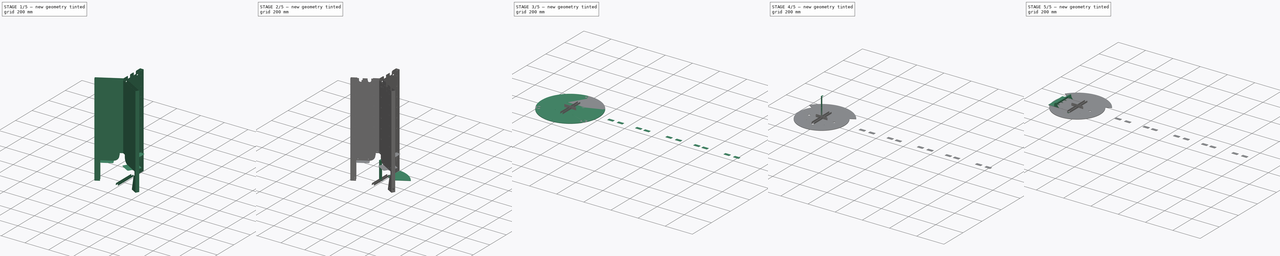
[diagram: build sequence overview — one tinted view per stage of 5, left to right]
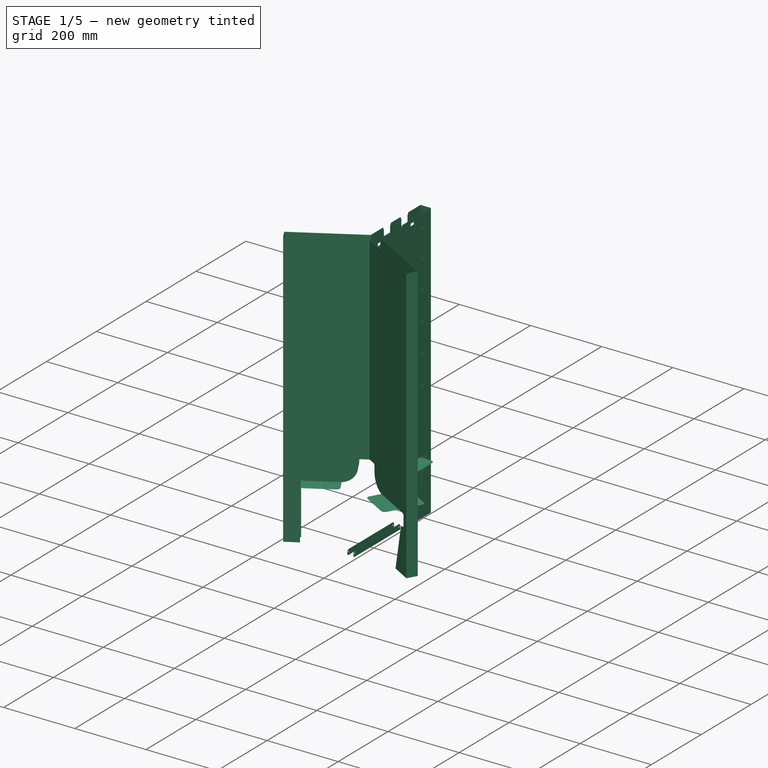
[diagram: stage 1 of 5 — iso view after this stage's code; geometry added in this stage tinted green]
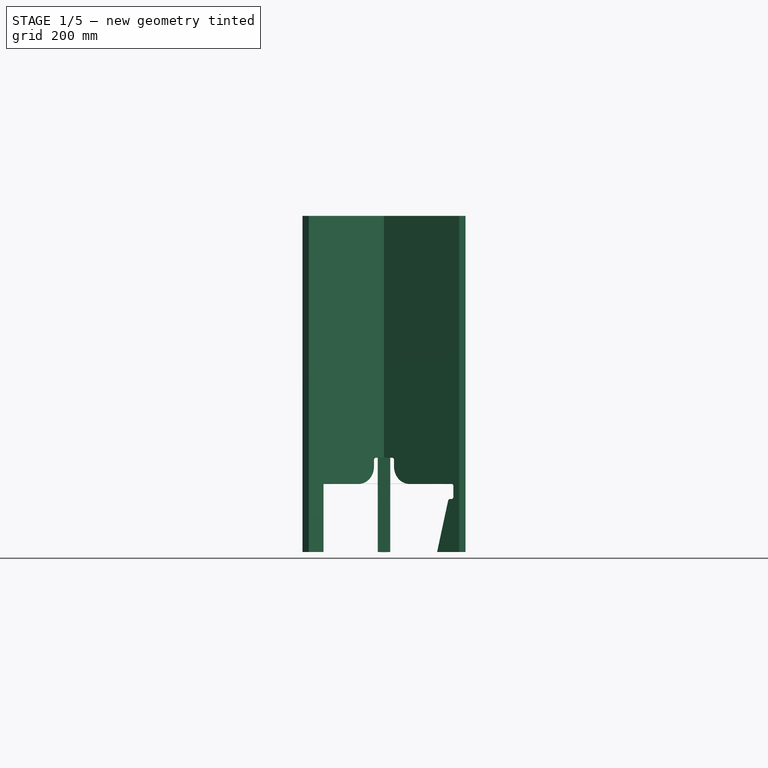
[diagram: stage 1 of 5 — front view after this stage's code; geometry added in this stage tinted green]
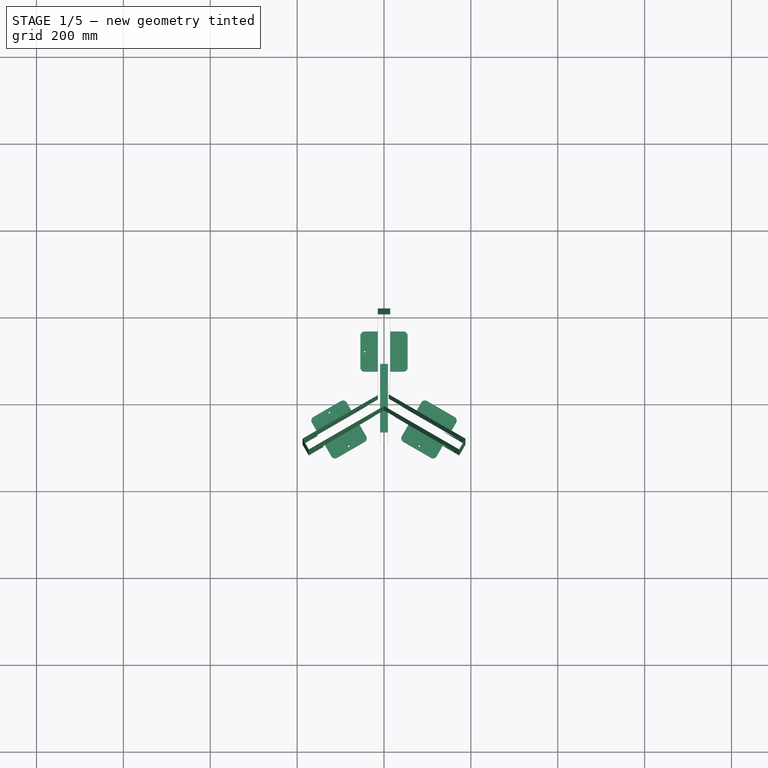
[diagram: stage 1 of 5 — top view after this stage's code; geometry added in this stage tinted green]
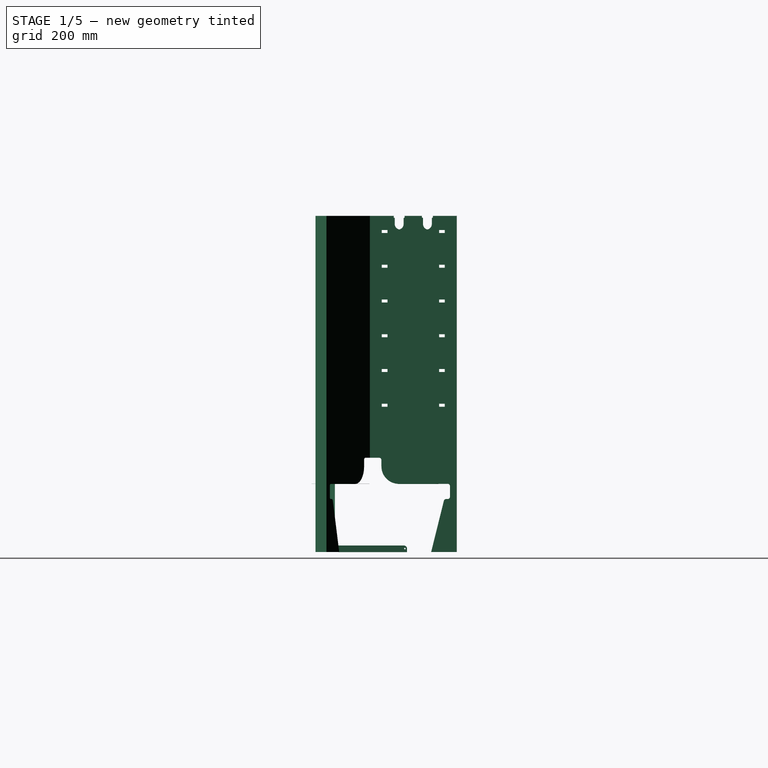
[diagram: stage 1 of 5 — right view after this stage's code; geometry added in this stage tinted green]
FCSTD DOCUMENT  (FreeCAD 0.21R32532 (Git))
Label: composit_stand2_reserve
License: All rights reserved
LicenseURL: http://en.wikipedia.org/wiki/All_rights_reserved
objects: Sketcher::SketchObject×91, PartDesign::Pocket×67, PartDesign::CoordinateSystem×49, PartDesign::Mirrored×28, PartDesign::SubShapeBinder×27, PartDesign::Plane×23, PartDesign::Body×23, PartDesign::FeaturePython×19, PartDesign::PolarPattern×14, PartDesign::Pad×13, PartDesign::MultiTransform×11, Part::FeaturePython×11, App::Link×8, App::DocumentObjectGroup×5, Spreadsheet::Sheet×4, PartDesign::Fillet×2, PartDesign::Hole×2, App::FeaturePython×1, Part::Feature×1, PartDesign::FeatureBase×1, +3 more types
note: 460 computed .brp shape members not serialized (recipe doc carries the construction recipe); baked Part::Feature solids carry a one-line shape summary decoded from their .brp

FEATURE [Spreadsheet::Sheet] Spreadsheet  label="module"
  cells = B2(module_width)==148 mm; B3(module_height)==160 mm; B4(module_fixture_distance_x)==132 mm; C4(module_fixture_distance_y)==80 mm; B5(module_hole_x)==13 mm; B6(module_hole_y)==7 mm
FEATURE [Spreadsheet::Sheet] Spreadsheet001  label="main"
  cells = B2(work_plane_width)==200 mm; D2(rivet_d)==3.4 mm; B3(work_plane_height)==450 mm; C3(work_plane_middle)==basin_height + work_plane_height / 2; D3(planes_fix_holes_distance)==130 mm; B4(end_face_width)==29 mm; C4(inner_width)==end_face_width - thickness * 2; D4(gutter_fix_holes_distance)==51 mm; B5(basin_height)==157 mm; B6(thickness)==3 mm; D6(number_of_modules)='6; E6(modules_array_height)==<<module>>.module_height + (number_of_modules - 1) * <<module>>.module_fixture_distance_y; B7(total_length)==basin_height + distance_basin_cutout_modules_bottom + modules_array_height + distance_gutter_holes_modules_top + distance_gutter_holes_dropper_cutout + <<dropper>>.center_height_offset; D7(distance_basin_cutout_modules_bottom)==21 mm; B8(bend_r)==0.01 mm; D8(distance_gutter_holes_modules_top)==5 mm; D9(distance_gutter_holes_dropper_cutout)==12 mm
FEATURE [Sketcher::SketchObject] Sketch003
  FullyConstrained = true
  MapMode = 5
  Support = -> [XY_Plane001]
  sketch-geometry (12):
    g0: LineSegment StartX=-14.5 StartY=8.37158 StartZ=0 EndX=-14.5 EndY=208.372 EndZ=0
    g1: LineSegment StartX=-14.5 StartY=208.372 StartZ=0 EndX=14.5 EndY=208.372 EndZ=0
    g2: LineSegment StartX=14.5 StartY=208.372 StartZ=0 EndX=14.5 EndY=8.37158 EndZ=0
    g3: LineSegment StartX=14.5 StartY=8.37158 StartZ=0 EndX=187.705 EndY=-91.6284 EndZ=0
    g4: LineSegment StartX=187.705 StartY=-91.6284 StartZ=0 EndX=173.205 EndY=-116.743 EndZ=0
    g5: LineSegment StartX=173.205 StartY=-116.743 StartZ=0 EndX=0 EndY=-16.7432 EndZ=0
    g6: LineSegment StartX=0 StartY=-16.7432 StartZ=0 EndX=-173.205 EndY=-116.743 EndZ=0
    g7: LineSegment StartX=-173.205 StartY=-116.743 StartZ=0 EndX=-187.705 EndY=-91.6284 EndZ=0
    g8: LineSegment StartX=-187.705 StartY=-91.6284 StartZ=0 EndX=-14.5 EndY=8.37158 EndZ=0
    g9: LineSegment StartX=-14.5 StartY=8.37158 StartZ=0 EndX=0 EndY=0 EndZ=0
    g10: LineSegment StartX=0 StartY=0 StartZ=0 EndX=14.5 EndY=8.37158 EndZ=0
    g11: LineSegment StartX=0 StartY=0 StartZ=0 EndX=0 EndY=-16.7432 EndZ=0
  constraints (39):
    c: Vertical(g0)
    c: Coincident(g0,g1)
    c: Horizontal(g1)
    c: Coincident(g1,g2)
    c: Vertical(g2)
    c: Coincident(g2,g3)
    c: Coincident(g3,g4)
    c: Coincident(g4,g5)
    c: PointOnObject(g5,g-2)
    c: Coincident(g5,g6)
    c: Coincident(g6,g7)
    c: Coincident(g8,g7)
    c: Equal(g2,g6)
    c: Equal(g6,g5)
    c: Equal(g5,g3)
    c: Equal(g4,g7)
    c: Equal(g7,g1)
    c: Perpendicular(g4,g5)
    c: Perpendicular(g4,g3)
    c: Perpendicular(g7,g6)
    c: Perpendicular(g8,g7)
    c: Angle(g6,g5) = 2.0944
    c: Angle(g3,g2) = 2.0944
    c: Coincident(g9,g0)
    c: Coincident(g9,g-1)
    c: Coincident(g10,g9)
    c: Coincident(g10,g2)
    c: Coincident(g11,g9)
    c: Coincident(g11,g5)
    c: Equal(g10,g11)
    c: DistanceX(g1,g1) = 29
    c: DistanceY(g2,g2) = 200
    c: DistanceY(g9,g2) = 8.37158  'petal_offset'
    c: DistanceY(g0) = 8.37158  'petal_conn_y'
    c: Coincident(g8,g0)
    c: DistanceX(g2) = 14.5  'petal_conn_x'
    c: Distance(g9,g1) = 208.875  'max_r'
    c: Distance(g10) = 16.7432  'planes_intersec_r'
    c: DistanceY(g9,g1) = 208.372  'total_petal_length'
FEATURE [PartDesign::FeaturePython] BaseBend001  # WARN: FeaturePython — macro-defined, semantics opaque (R4)
  BendSide = 0
  BendSketch = -> Sketch003
  MidPlane = false
  Reverse = false
  length = 774
  radius = 0.01
  thickness = 0.3
FEATURE [PartDesign::CoordinateSystem] Local_CS
  AttacherType = Attacher::AttachEngine3D
  AttachmentOffset = pos=(0,8.37158,0) rot=(0,0,1;0rad)
  MapMode = 5
  Placement = pos=(0,8.37158,0) rot=(0,0,1;0rad)
  Support = -> [XY_Plane001]
FEATURE [PartDesign::Plane] DatumPlane001
  AttachmentOffset = pos=(0,0,-100) rot=(0,0,1;0rad)
  Length = 484.686
  MapMode = 3
  Placement = pos=(0,108.372,-2.22e-14) rot=(1,0,0;1.5708rad)
  ResizeMode = 0
  Support = -> [Local_CS]
  Width = 908.503
FEATURE [Sketcher::SketchObject] Sketch005
  AttachmentOffset = pos=(14.5,8.37158,0) rot=(0,0,1;0rad)
  FullyConstrained = true
  MapMode = 5
  Placement = pos=(14.5,8.37158,0) rot=(0,0,1;0rad)
  Support = -> [XY_Plane001]
  sketch-geometry (4):
    g0: LineSegment StartX=0 StartY=0 StartZ=0 EndX=-3 EndY=0 EndZ=0
    g1: LineSegment StartX=-3 StartY=0 StartZ=0 EndX=-3 EndY=3.1 EndZ=0
    g2: LineSegment StartX=-3 StartY=3.1 StartZ=0 EndX=0 EndY=0.1 EndZ=0
    g3: LineSegment StartX=0 StartY=0.1 StartZ=0 EndX=0 EndY=0 EndZ=0
  constraints (11):
    c: Coincident(g0,g1)
    c: Coincident(g1,g2)
    c: Coincident(g2,g3)
    c: Coincident(g3,g0)
    c: Horizontal(g0)
    c: Vertical(g1)
    c: Vertical(g3)
    c: Coincident(g0,g-1)
    c: DistanceY(g2) = 0.1
    c: Angle(g-1,g2) = 2.35619
    c: DistanceX(g0,g0) = 3
FEATURE [PartDesign::Pocket] Pocket001
  BaseFeature = -> BaseBend001
  Direction = (0,0,-1)
  Length = 5
  Length2 = 5
  Midplane = true
  Profile = -> Sketch005
  ReferenceAxis = -> Sketch005 [N_Axis]
  Type = 1
FEATURE [Spreadsheet::Sheet] Spreadsheet002  label="dropper"
  cells = B2(d)==23.25 mm; B3(fixture_d)=; B4(center_height_offset)==19 mm; B5(distance_between_droppers1)==60 mm; C5(distance_between_droppers2)==70 mm
FEATURE [PartDesign::Mirrored] Mirrored001
  MirrorPlane = -> DatumPlane001
FEATURE [PartDesign::PolarPattern] PolarPattern001
  Angle = 360
  Axis = -> Z_Axis001
  Occurrences = 3
FEATURE [PartDesign::FeaturePython] Bend009  # WARN: FeaturePython — macro-defined, semantics opaque (R4)
  AutoMiter = true
  BaseFeature = -> Pocket001
  BendType = 1
  LengthList = [203.464]
  LengthSpec = 0
  ReliefFactor = 0.7
  UseReliefFactor = false
  angle = 90
  baseObject = -> Pocket001 [Face61]
  bendAList = [90]
  extend1 = 0
  extend2 = 0
  gap1 = 0
  gap2 = 0
  invert = false
  kfactor = 0.5
  length = 203.464
  maxExtendDist = 5
  minGap = 0.1
  minReliefGap = 1
  miterangle1 = 0
  miterangle2 = 0
  offset = 0
  radius = 0.01
  reliefType = 0
  reliefd = 1
  reliefw = 0.8
  sketchflip = false
  sketchinvert = false
  unfold = false
FEATURE [PartDesign::FeaturePython] Bend010  # WARN: FeaturePython — macro-defined, semantics opaque (R4)
  AutoMiter = true
  BaseFeature = -> Bend009
  BendType = 0
  LengthList = [20]
  LengthSpec = 0
  ReliefFactor = 0.7
  UseReliefFactor = false
  angle = 60
  baseObject = -> Bend009 [Face3]
  bendAList = [60]
  extend1 = 0
  extend2 = 0
  gap1 = 0
  gap2 = 0
  invert = true
  kfactor = 0.5
  length = 20
  maxExtendDist = 5
  minGap = 0.1
  minReliefGap = 1
  miterangle1 = 0
  miterangle2 = 0
  offset = 0
  radius = 0.01
  reliefType = 0
  reliefd = 1
  reliefw = 0.8
  sketchflip = false
  sketchinvert = false
  unfold = false
FEATURE [Sketcher::SketchObject] Sketch127
  FullyConstrained = true
  MapMode = 5
  Placement = pos=(0,0,0) rot=(0.57735,0.57735,0.57735;2.0944rad)
  Support = -> [YZ_Plane037]
  sketch-geometry (4):
    g0: LineSegment StartX=71.78 StartY=114.36 StartZ=0 EndX=143.27 EndY=114.36 EndZ=0
    g1: LineSegment StartX=143.27 StartY=114.36 StartZ=0 EndX=143.27 EndY=159.55 EndZ=0
    g2: LineSegment StartX=143.27 StartY=159.55 StartZ=0 EndX=71.78 EndY=159.55 EndZ=0
    g3: LineSegment StartX=71.78 StartY=159.55 StartZ=0 EndX=71.78 EndY=114.36 EndZ=0
  constraints (12):
    c: Coincident(g0,g1)
    c: Coincident(g1,g2)
    c: Coincident(g2,g3)
    c: Coincident(g3,g0)
    c: Horizontal(g0)
    c: Horizontal(g2)
    c: Vertical(g1)
    c: Vertical(g3)
    c: DistanceX(g0) = 71.78  'offset_x'
    c: DistanceY(g0) = 114.36  'offset_y'
    c: DistanceY(g3,g3) = 45.19  'height'
    c: DistanceX(g0,g0) = 71.49  'width'
FEATURE [Sketcher::SketchObject] Sketch128
  FullyConstrained = true
  MapMode = 5
  Placement = pos=(0,0,0) rot=(0.57735,0.57735,0.57735;2.0944rad)
  Support = -> [YZ_Plane001]
  sketch-geometry (4):
    g0: LineSegment StartX=73 StartY=116.5 StartZ=0 EndX=166 EndY=116.5 EndZ=0
    g1: LineSegment StartX=166 StartY=116.5 StartZ=0 EndX=166 EndY=157 EndZ=0
    g2: LineSegment StartX=166 StartY=157 StartZ=0 EndX=73 EndY=157 EndZ=0
    g3: LineSegment StartX=73 StartY=157 StartZ=0 EndX=73 EndY=116.5 EndZ=0
  constraints (12):
    c: Coincident(g0,g1)
    c: Coincident(g1,g2)
    c: Coincident(g2,g3)
    c: Coincident(g3,g0)
    c: Horizontal(g0)
    c: Horizontal(g2)
    c: Vertical(g1)
    c: Vertical(g3)
    c: DistanceX(g0,g0) = 93  'length'
    c: DistanceY(g3,g3) = 40.5  'height'
    c: DistanceX(g0) = 73  'offset_x'
    c: DistanceY(g2) = 157
FEATURE [PartDesign::Pocket] Pocket081
  BaseFeature = -> Bend010
  Direction = (-1,2e-16,-3e-16)
  Length = 5
  Length2 = 5
  Midplane = true
  Profile = -> Sketch128
  ReferenceAxis = -> Sketch128 [N_Axis]
  Type = 1
FEATURE [PartDesign::PolarPattern] PolarPattern016
  Angle = 360
  Axis = -> Z_Axis001
  BaseFeature = -> Pocket081
  Occurrences = 3
  Originals = -> [Pocket081]
FEATURE [PartDesign::FeaturePython] Bend  # WARN: FeaturePython — macro-defined, semantics opaque (R4)
  AutoMiter = true
  BaseFeature = -> PolarPattern016
  BendType = 0
  LengthList = [40]
  LengthSpec = 2
  ReliefFactor = 0.7
  UseReliefFactor = false
  angle = 90
  baseObject = -> PolarPattern016 [Edge222,Edge178,Edge34,Edge78,Edge106,Edge150]
  bendAList = [90]
  extend1 = 0
  extend2 = 0
  gap1 = 0.1
  gap2 = 0.1
  invert = false
  kfactor = 0.5
  length = 40
  maxExtendDist = 5
  minGap = 0.1
  minReliefGap = 1
  miterangle1 = 0
  miterangle2 = 0
  offset = 0
  radius = 0.1
  reliefType = 0
  reliefd = 1
  reliefw = 0.8
  sketchflip = false
  sketchinvert = false
  unfold = false
FEATURE [Sketcher::SketchObject] Sketch129
  AttachmentOffset = pos=(0,0,0) rot=(0,1,0;3.66519rad)
  FullyConstrained = true
  MapMode = 5
  Placement = pos=(0,0,0) rot=(-0.186157,0.694747,0.694747;3.50969rad)
  Support = -> [XZ_Plane001]
  sketch-geometry (9):
    g0: LineSegment StartX=0 StartY=0 StartZ=0 EndX=169.18 EndY=0 EndZ=0
    g1: LineSegment StartX=169.18 StartY=0 StartZ=0 EndX=169.18 EndY=157 EndZ=0
    g2: LineSegment StartX=0 StartY=157 StartZ=0 EndX=0 EndY=0 EndZ=0
    g3: LineSegment StartX=73 StartY=116.5 StartZ=0 EndX=166 EndY=116.5 EndZ=0
    g4: LineSegment StartX=166 StartY=116.5 StartZ=0 EndX=166 EndY=157 EndZ=0
    g5: LineSegment StartX=166 StartY=157 StartZ=0 EndX=73 EndY=157 EndZ=0
    g6: LineSegment StartX=73 StartY=157 StartZ=0 EndX=73 EndY=116.5 EndZ=0
    g7: LineSegment StartX=169.18 StartY=157 StartZ=0 EndX=166 EndY=157 EndZ=0
    g8: LineSegment StartX=73 StartY=157 StartZ=0 EndX=0 EndY=157 EndZ=0
  constraints (25):
    c: Coincident(g0,g1)
    c: Coincident(g1,g7)
    c: Coincident(g8,g2)
    c: Coincident(g2,g0)
    c: Horizontal(g0)
    c: Vertical(g1)
    c: Vertical(g2)
    c: Coincident(g0,g-1)
    c: DistanceY(g8) = 157
    c: Coincident(g3,g4)
    c: Coincident(g4,g5)
    c: Coincident(g5,g6)
    c: Coincident(g6,g3)
    c: Horizontal(g3)
    c: Horizontal(g5)
    c: Vertical(g4)
    c: Vertical(g6)
    c: DistanceX(g3,g3) = 93  'length'
    c: DistanceY(g6,g6) = 40.5  'height'
    c: DistanceX(g3) = 73
    c: DistanceY(g5) = 157
    c: Horizontal(g7)
    c: Coincident(g8,g5)
    c: Coincident(g7,g4)
    c: DistanceX(g7,g7) = 3.18
FEATURE [PartDesign::CoordinateSystem] Local_CS041
  AttacherType = Attacher::AttachEngine3D
  AttachmentOffset = pos=(119.5,157,14.5) rot=(0,0.707107,0.707107;3.14159rad)
  MapMode = 5
  Placement = pos=(14.5,119.5,157) rot=(0,0,1;4.71239rad)
  Support = -> [YZ_Plane001]
FEATURE [Sketcher::SketchObject] Sketch130
  AttachmentOffset = pos=(0,40,0) rot=(0,0,1;0rad)
  FullyConstrained = true
  MapMode = 5
  Placement = pos=(54.5,119.5,157) rot=(0,0,-1;1.5708rad)
  Support = -> [Local_CS041]
  sketch-geometry (6):
    g0: ArcOfCircle CenterX=36.5 CenterY=-10 CenterZ=0 NormalX=0 NormalY=0 NormalZ=1 AngleXU=0 Radius=10 StartAngle=6.28318 EndAngle=7.85398
    g1: ArcOfCircle CenterX=-36.5 CenterY=-10 CenterZ=0 NormalX=0 NormalY=0 NormalZ=1 AngleXU=0 Radius=10 StartAngle=1.5708 EndAngle=3.14159
    g2: LineSegment StartX=-46.5 StartY=-10 StartZ=0 EndX=-46.5 EndY=0 EndZ=0
    g3: LineSegment StartX=-36.5 StartY=0 StartZ=0 EndX=-46.5 EndY=0 EndZ=0
    g4: LineSegment StartX=46.5 StartY=-10 StartZ=0 EndX=46.5 EndY=0 EndZ=0
    g5: LineSegment StartX=36.5 StartY=0 StartZ=0 EndX=46.5 EndY=0 EndZ=0
  constraints (17):
    c: PointOnObject(g0,g-1)
    c: PointOnObject(g1,g-1)
    c: Coincident(g2,g1)
    c: PointOnObject(g2,g-1)
    c: Vertical(g2)
    c: Tangent(g2,g1)
    c: Coincident(g3,g2)
    c: Coincident(g4,g0)
    c: PointOnObject(g4,g-1)
    c: Vertical(g4)
    c: Tangent(g4,g0)
    c: Coincident(g5,g4)
    c: Tangent(g5,g0) = 1.5708
    c: Tangent(g3,g1) = -1.5708
    c: DistanceX(g2,g4) = 93
    c: Symmetric(g1,g0,g-2)
    c: Diameter(g0) = 20
FEATURE [PartDesign::Pocket] Pocket083
  BaseFeature = -> Bend
  Direction = (0,-3e-16,-1)
  Length = 5
  Length2 = 5
  Midplane = true
  Profile = -> Sketch130
  ReferenceAxis = -> Sketch130 [N_Axis]
  Type = 1
FEATURE [PartDesign::Mirrored] Mirrored040
  MirrorPlane = -> YZ_Plane001
FEATURE [PartDesign::PolarPattern] PolarPattern017
  Angle = 360
  Axis = -> Z_Axis001
  Occurrences = 3
FEATURE [PartDesign::MultiTransform] MultiTransform014
  BaseFeature = -> Pocket083
  Originals = -> [Pocket083]
  Transformations = -> [Mirrored040,PolarPattern017]
FEATURE [PartDesign::Pocket] Pocket082
  BaseFeature = -> MultiTransform014
  Direction = (0.5,-0.866025,-1e-16)
  Length = 30
  Length2 = 5
  Midplane = true
  Profile = -> Sketch129
  ReferenceAxis = -> Sketch129 [N_Axis]
  Type = 0
FEATURE [PartDesign::Pocket] Pocket006
  BaseFeature = -> Pocket082
  Direction = (-1,2e-16,-3e-16)
  Length = 30
  Length2 = 160
  Midplane = true
  Profile = -> Sketch009
  ReferenceAxis = -> Sketch009 [N_Axis]
  Type = 0
FEATURE [PartDesign::Mirrored] Mirrored002
  BaseFeature = -> Pocket006
  MirrorPlane = -> DatumPlane014
  Originals = -> [Pocket006]
FEATURE [PartDesign::Pocket] Pocket014
  BaseFeature = -> Mirrored002
  Direction = (-1,2e-16,-3e-16)
  Length = 5
  Length2 = 5
  Midplane = true
  Profile = -> Sketch013
  ReferenceAxis = -> Sketch013 [N_Axis]
  Type = 1
FEATURE [PartDesign::PolarPattern] PolarPattern003
  Angle = 360
  Axis = -> Z_Axis001
  BaseFeature = -> Pocket014
  Occurrences = 3
  Originals = -> [Pocket014]
  Refine = true
FEATURE [PartDesign::Pocket] Pocket007
  BaseFeature = -> PolarPattern003
  Direction = (-1,2e-16,-3e-16)
  Length = 11.5
  Length2 = 5
  Profile = -> Sketch012
  ReferenceAxis = -> Sketch012 [N_Axis]
  Reversed = true
  Type = 0
FEATURE [PartDesign::Body] Body001003005  label="basin_cover"
  Group = -> [Sketch047,Pad012,Pocket086,Pocket089,Mirrored014,Local_CS013,Local_CS016,DatumPlane015,DatumPlane016,Local_CS026,Binder041,Binder042,Pocket084,Pocket085,Binder043,Local_CS043,Local_CS044,Binder046]
  Origin = -> Origin014
  Placement = pos=(0,0,0) rot=(0,0,1;1.0472rad)
  Tip = -> Pocket085
FEATURE [PartDesign::Fillet] Fillet
  Base = -> Pocket007 [Edge434,Edge441]
  BaseFeature = -> Pocket007
  Radius = 4
  SupportTransform = false
  UseAllEdges = false
FEATURE [PartDesign::Pocket] Pocket013
  BaseFeature = -> Fillet
  Direction = (3e-16,1e-16,-1)
  Length = 5
  Length2 = 5
  Midplane = true
  Profile = -> Sketch043
  ReferenceAxis = -> Sketch043 [N_Axis]
  Type = 1
FEATURE [PartDesign::MultiTransform] MultiTransform005
  BaseFeature = -> Pocket013
  Originals = -> [Pocket013]
  Transformations = -> [Mirrored013,PolarPattern002]
FEATURE [PartDesign::Pocket] Pocket066
  BaseFeature = -> MultiTransform005
  Direction = (-1,0,-4e-16)
  Length = 5
  Length2 = 5
  Profile = -> Binder033
  Type = 1
FEATURE [PartDesign::Pocket] Pocket067
  BaseFeature = -> Pocket066
  Direction = (-1,0,-4e-16)
  Length = 5
  Length2 = 5
  Profile = -> Binder032
  Reversed = true
  Type = 1
FEATURE [PartDesign::Pocket] Pocket068
  BaseFeature = -> Pocket067
  Direction = (-1,0,0)
  Length = 5
  Length2 = 5
  Midplane = true
  Profile = -> Binder034
  Type = 1
FEATURE [PartDesign::Body] Body001003005003014  label="basin_cover_back_material_0.30ansi"
  Group = -> [Pad022,Binder021,Binder020,Pocket045,Pocket059,Hole001,Mirrored031,Local_CS027,Local_CS028,DatumPlane023,Local_CS029,Binder037,Local_CS040,Binder038,Binder047,Local_CS045]
  Origin = -> Origin027
  Tip = -> Mirrored031
FEATURE [App::DocumentObjectGroup] Group001  label="Arrays"
  Group = -> [Array,Array001,Array002,Array003]
FEATURE [Sketcher::SketchObject] Sketch134
  FullyConstrained = true
  MapMode = 5
  Placement = pos=(0,0,0) rot=(1,0,0;1.5708rad)
  Support = -> [XZ_Plane044]
  sketch-geometry (5):
    g0: LineSegment StartX=-8.5 StartY=15 StartZ=0 EndX=-8.5 EndY=0 EndZ=0
    g1: LineSegment StartX=-8.5 StartY=0 StartZ=0 EndX=8.5 EndY=0 EndZ=0
    g2: LineSegment StartX=8.5 StartY=0 StartZ=0 EndX=8.5 EndY=15 EndZ=0
    g3: LineSegment StartX=8.5 StartY=15 StartZ=0 EndX=-8.5 EndY=15 EndZ=0
    g4: GeomPoint X=0 Y=7.5 Z=0
  constraints (13):
    c: Coincident(g0,g1)
    c: Coincident(g1,g2)
    c: Coincident(g2,g3)
    c: Coincident(g3,g0)
    c: Horizontal(g1)
    c: Horizontal(g3)
    c: Vertical(g0)
    c: Vertical(g2)
    c: Symmetric(g1,g0,g4)
    c: PointOnObject(g4,g-2)
    c: PointOnObject(g1,g-1)
    c: DistanceX(g1,g1) = 17  'width'
    c: DistanceY(g2) = 15  'height'
FEATURE [Sketcher::SketchObject] Sketch135
  FullyConstrained = true
  MapMode = 5
  Placement = pos=(0,0,0) rot=(1,0,0;1.5708rad)
  Support = -> [XZ_Plane044]
  sketch-geometry (1):
    g0: GeomPoint X=172 Y=45 Z=0
  constraints (3):
    c: DistanceX(g0) = 172
    c: DistanceY(g0) = 45
    c: Distance(g-1,g0) = 177.789  'length'
FEATURE [PartDesign::FeaturePython] BaseBend010  # WARN: FeaturePython — macro-defined, semantics opaque (R4)
  BendSide = 0
  BendSketch = -> Sketch134
  MidPlane = true
  Reverse = false
  length = 187.789
  radius = 0.1
  thickness = 0.3
FEATURE [Sketcher::SketchObject] Sketch136
  AttachmentOffset = pos=(0,8,0) rot=(0,0,1;0rad)
  FullyConstrained = true
  MapMode = 5
  Placement = pos=(-1.8e-15,1.8e-15,8) rot=(0.57735,0.57735,0.57735;2.0944rad)
  Support = -> [YZ_Plane044]
  sketch-geometry (2):
    g0: Circle CenterX=-88.8946 CenterY=0 CenterZ=0 NormalX=0 NormalY=0 NormalZ=1 AngleXU=0 Radius=1.7
    g1: Circle CenterX=88.8946 CenterY=0 CenterZ=0 NormalX=0 NormalY=0 NormalZ=1 AngleXU=0 Radius=1.7
  constraints (5):
    c: PointOnObject(g0,g-1)
    c: Symmetric(g0,g1,g-2)
    c: DistanceX(g0,g1) = 177.789
    c: Equal(g1,g0)
    c: Diameter(g1) = 3.4
FEATURE [Sketcher::SketchObject] Sketch137
  AttachmentOffset = pos=(93.8946,15,0) rot=(0,0,1;0rad)
  FullyConstrained = true
  MapMode = 5
  Placement = pos=(1.75e-14,93.8946,15) rot=(0.57735,0.57735,0.57735;2.0944rad)
  Support = -> [YZ_Plane044]
  sketch-geometry (3):
    g0: ArcOfCircle CenterX=-7 CenterY=-7 CenterZ=0 NormalX=0 NormalY=0 NormalZ=1 AngleXU=0 Radius=7 StartAngle=-3.2e-14 EndAngle=1.5708
    g1: LineSegment StartX=-7 StartY=0 StartZ=0 EndX=0 EndY=0 EndZ=0
    g2: LineSegment StartX=0 StartY=0 StartZ=0 EndX=0 EndY=-7 EndZ=0
  constraints (8):
    c: PointOnObject(g0,g-2)
    c: PointOnObject(g0,g-1)
    c: Coincident(g1,g2)
    c: Vertical(g2)
    c: Tangent(g2,g0) = 1.5708
    c: Tangent(g0,g1) = 1.5708
    c: DistanceY(g2,g2) = 7
    c: Horizontal(g1)
FEATURE [PartDesign::Pocket] Pocket092
  BaseFeature = -> BaseBend010
  Direction = (-1,2e-16,-3e-16)
  Length = 5
  Length2 = 5
  Midplane = true
  Profile = -> Sketch137
  ReferenceAxis = -> Sketch137 [N_Axis]
  Type = 1
FEATURE [PartDesign::Mirrored] Mirrored041
  BaseFeature = -> Pocket092
  MirrorPlane = -> XZ_Plane044
  Originals = -> [Pocket092]
FEATURE [Sketcher::SketchObject] Sketch138
  AttachmentOffset = pos=(0,-63.8946,0) rot=(0,0,1;0rad)
  FullyConstrained = false
  MapMode = 5
  Placement = pos=(0,-63.8946,0) rot=(0,0,1;0rad)
  Support = -> [XY_Plane045]
  sketch-geometry (5):
    g0: LineSegment StartX=-8.25 StartY=-159.942 StartZ=0 EndX=-8.25 EndY=0 EndZ=0
    g1: LineSegment StartX=-8.25 StartY=0 StartZ=0 EndX=8.25 EndY=0 EndZ=0
    g2: LineSegment StartX=8.25 StartY=0 StartZ=0 EndX=8.25 EndY=-159.942 EndZ=0
    g3: LineSegment StartX=8.25 StartY=-159.942 StartZ=0 EndX=-8.25 EndY=-159.942 EndZ=0
    g4: GeomPoint X=0 Y=-79.9711 Z=0
  constraints (12):
    c: Coincident(g0,g1)
    c: Coincident(g1,g2)
    c: Coincident(g2,g3)
    c: Coincident(g3,g0)
    c: Horizontal(g1)
    c: Horizontal(g3)
    c: Vertical(g0)
    c: Vertical(g2)
    c: Symmetric(g1,g0,g4)
    c: PointOnObject(g4,g-2)
    c: PointOnObject(g1,g-1)
    c: DistanceX(g1,g1) = 16.5
FEATURE [PartDesign::Pocket] Pocket093
  BaseFeature = -> Mirrored041
  Direction = (0,0,-1)
  Length = 5
  Length2 = 5
  Profile = -> Sketch138
  ReferenceAxis = -> Sketch138 [N_Axis]
  Type = 1
FEATURE [Sketcher::SketchObject] Sketch139
  AttachmentOffset = pos=(-93.8946,0,0) rot=(0,0,1;0rad)
  FullyConstrained = true
  MapMode = 5
  Placement = pos=(-2.08e-14,-93.8946,2.08e-14) rot=(0.57735,0.57735,0.57735;2.0944rad)
  Support = -> [YZ_Plane044]
  sketch-geometry (4):
    g0: ArcOfCircle CenterX=5 CenterY=5.1 CenterZ=0 NormalX=0 NormalY=0 NormalZ=1 AngleXU=0 Radius=5 StartAngle=3.14159 EndAngle=4.71239
    g1: LineSegment StartX=0 StartY=5.1 StartZ=0 EndX=0 EndY=-0.3 EndZ=0
    g2: LineSegment StartX=0 StartY=-0.3 StartZ=0 EndX=5 EndY=-0.3 EndZ=0
    g3: LineSegment StartX=5 StartY=-0.3 StartZ=0 EndX=5 EndY=0.1 EndZ=0
  constraints (12):
    c: PointOnObject(g0,g-2)
    c: PointOnObject(g1,g-2)
    c: Coincident(g2,g1)
    c: Horizontal(g2)
    c: Coincident(g3,g2)
    c: Coincident(g3,g0)
    c: Vertical(g3)
    c: Perpendicular(g0,g3)
    c: Tangent(g1,g0) = -1.5708
    c: DistanceY(g0) = 0.1
    c: Diameter(g0) = 10
    c: DistanceY(g1) = -0.3
FEATURE [PartDesign::Pocket] Pocket094
  BaseFeature = -> Pocket093
  Direction = (-1,2e-16,-3e-16)
  Length = 5
  Length2 = 5
  Midplane = true
  Profile = -> Sketch139
  ReferenceAxis = -> Sketch139 [N_Axis]
  Type = 1
FEATURE [Sketcher::SketchObject] Sketch140
  FullyConstrained = true
  MapMode = 5
  Placement = pos=(0,0,0) rot=(0.57735,0.57735,0.57735;2.0944rad)
  Support = -> [YZ_Plane044]
  sketch-geometry (4):
    g0: LineSegment StartX=-163.895 StartY=-10 StartZ=0 EndX=-63.8946 EndY=-10 EndZ=0
    g1: LineSegment StartX=-63.8946 StartY=-10 StartZ=0 EndX=-63.8946 EndY=0.11 EndZ=0
    g2: LineSegment StartX=-63.8946 StartY=0.11 StartZ=0 EndX=-163.895 EndY=0.11 EndZ=0
    g3: LineSegment StartX=-163.895 StartY=0.11 StartZ=0 EndX=-163.895 EndY=-10 EndZ=0
  constraints (12):
    c: Coincident(g0,g1)
    c: Coincident(g1,g2)
    c: Coincident(g2,g3)
    c: Coincident(g3,g0)
    c: Horizontal(g0)
    c: Horizontal(g2)
    c: Vertical(g1)
    c: Vertical(g3)
    c: DistanceY(g2) = 0.11
    c: DistanceX(g1) = -63.8946
    c: DistanceY(g0) = -10
    c: DistanceX(g2,g2) = 100
FEATURE [PartDesign::Pocket] Pocket095
  BaseFeature = -> Pocket094
  Direction = (-1,2e-16,-3e-16)
  Length = 5
  Length2 = 5
  Midplane = true
  Profile = -> Sketch140
  ReferenceAxis = -> Sketch140 [N_Axis]
  Type = 1
FEATURE [PartDesign::Pocket] Pocket091
  BaseFeature = -> Pocket095
  Direction = (-1,2e-16,-3e-16)
  Length = 5
  Length2 = 5
  Midplane = true
  Profile = -> Sketch136
  ReferenceAxis = -> Sketch136 [N_Axis]
  Type = 1
FEATURE [PartDesign::Body] gutter_bottom  label="gutter_bottom_material_0.30ansi"
  Group = -> [Sketch134,Sketch135,BaseBend010,Sketch136,Sketch137,Pocket092,Mirrored041,Sketch138,Pocket093,Sketch139,Pocket094,Sketch140,Pocket095,Pocket091]
  Origin = -> Origin044
  Tip = -> Pocket091
FEATURE [App::DocumentObjectGroup] Parts
  Group = -> [Body001003005003015,Body001003,Body001003005,Body001003005003,Body001003005003003,Body001003005003004,Body001003005003011,Body001003005003012,Body001003005003013,Body001003005003014,Part__Feature,Body_2,Body_3,Body_4,Body001,Body_6,Body_7,Body001003005003015002,Body,tech_pillar,tech_mid,gutter_bottom]
FEATURE [PartDesign::CoordinateSystem] Local_CS046
  AttacherType = Attacher::AttachEngine3D
  AttachmentOffset = pos=(0,0,0) rot=(0,0,1;0.523599rad)
  MapMode = 5
  Placement = pos=(0,0,0) rot=(0,0,1;0.523599rad)
  Support = -> [XY_Plane046]
FEATURE [Part::Part2DObjectPython] Line  # Draft 2D object (typed FeaturePython)
  Area = 0
  ChamferSize = 0
  Closed = false
  End = (0,0,0)
  FilletRadius = 0
  Length = 13.1791
  MakeFace = true
  Placement = pos=(-11.602,4.1277,4.69538) rot=(0.806054,-0.011687,0.591727;0.775281rad)
  Points = (2) [(0,0,0),(8.06377,-10.4243,4.44089e-16)]
  Start = (-11.602,4.1277,4.69538)
  Subdivisions = 0
  expr: End = Local_CS046.Placement.Base
FEATURE [PartDesign::Body] Body001003005003015006
  Group = -> [Local_CS046,Line]
  Origin = -> Origin045
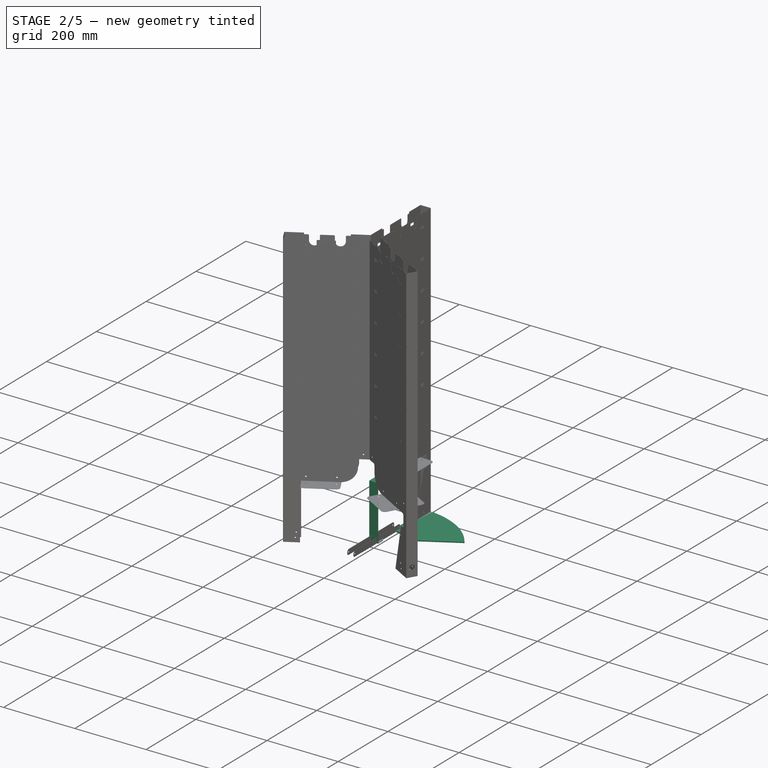
[diagram: stage 2 of 5 — iso view after this stage's code; geometry added in this stage tinted green]
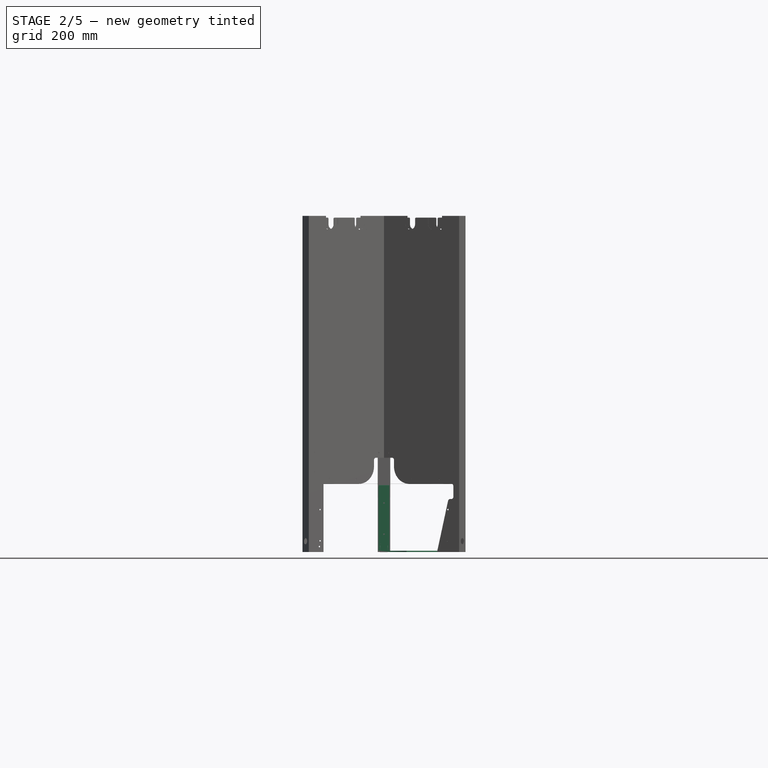
[diagram: stage 2 of 5 — front view after this stage's code; geometry added in this stage tinted green]
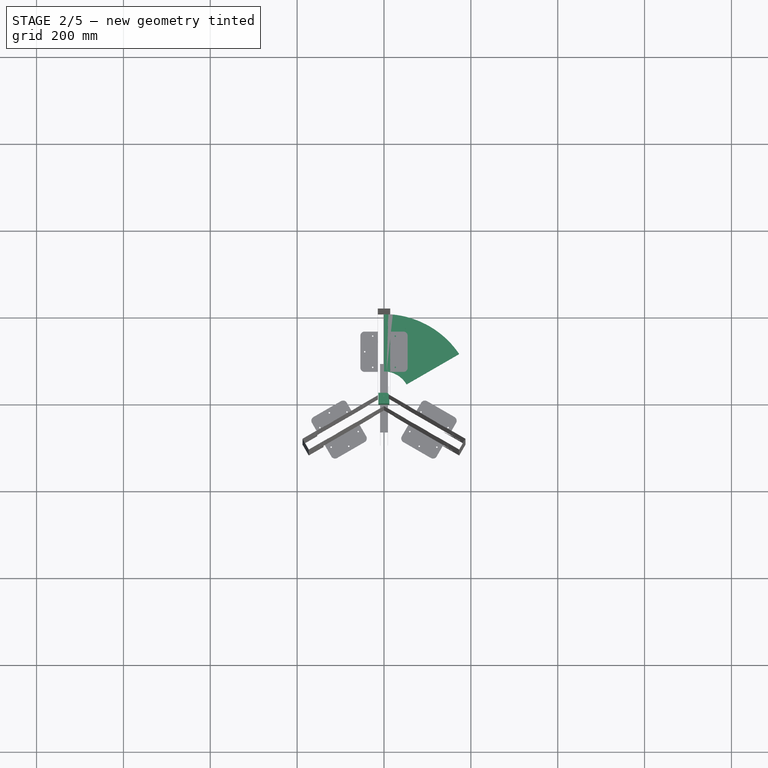
[diagram: stage 2 of 5 — top view after this stage's code; geometry added in this stage tinted green]
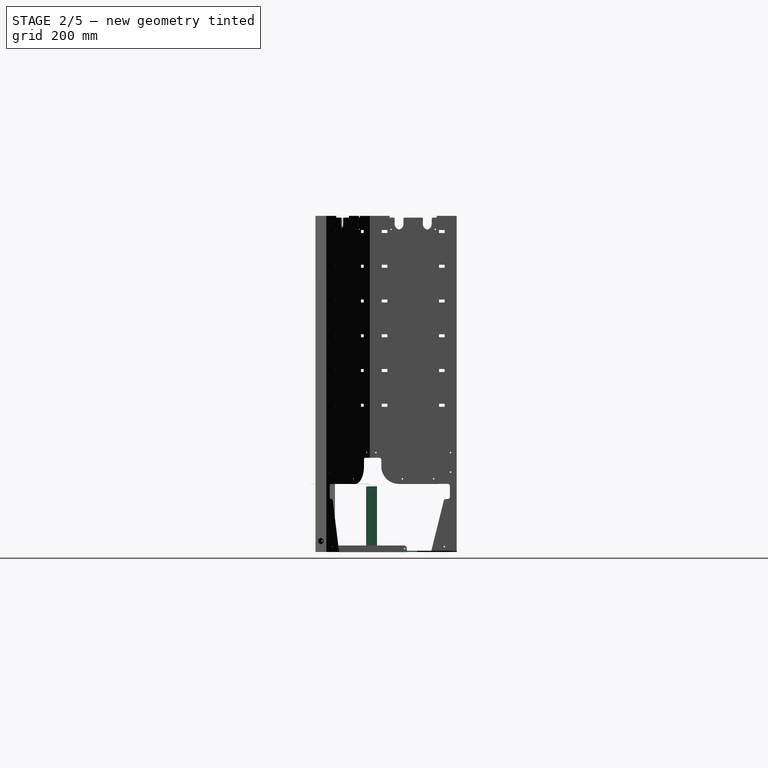
[diagram: stage 2 of 5 — right view after this stage's code; geometry added in this stage tinted green]
FEATURE [PartDesign::Body] Body001003005003013  label="plexiglass_holder_top"
  Group = -> [Sketch082,Pad021,Sketch083,Mirrored029,Pocket041,Sketch084,Pocket042]
  Origin = -> Origin026
  Placement = pos=(0,0,0) rot=(0,0,1;1.0472rad)
  Tip = -> Pocket042
FEATURE [PartDesign::SubShapeBinder] Binder020
  BindCopyOnChange = 0
  BindMode = 0
  ClaimChildren = false
  Context = -> Body001003005003014 [Binder020.]
  Fuse = false
  MakeFace = true
  OffsetFill = false
  OffsetIntersection = false
  OffsetJoinType = 0
  OffsetOpenResult = false
  PartialLoad = false
  Relative = false
  Support = -> [Body001003005003003[Pocket019.Sketch055.]]
  _Version = 2
FEATURE [PartDesign::SubShapeBinder] Binder021
  BindCopyOnChange = 0
  BindMode = 0
  ClaimChildren = false
  Context = -> Body001003005003014 [Binder021.]
  Fuse = false
  MakeFace = true
  OffsetFill = false
  OffsetIntersection = false
  OffsetJoinType = 0
  OffsetOpenResult = false
  PartialLoad = false
  Relative = false
  Support = -> [Body001003005003004[Pocket018.Sketch054.]]
  _Version = 2
FEATURE [PartDesign::CoordinateSystem] Local_CS027
  AttacherType = Attacher::AttachEngine3D
  MapMode = 5
  Support = -> [XY_Plane028]
FEATURE [PartDesign::CoordinateSystem] Local_CS028
  AttacherType = Attacher::AttachEngine3D
  AttachmentOffset = pos=(0,0,0) rot=(0,0,1;0.523599rad)
  MapMode = 5
  Placement = pos=(0,0,0) rot=(0,0,1;0.523599rad)
  Support = -> [XY_Plane028]
FEATURE [PartDesign::Plane] DatumPlane023
  Length = 81.9615
  MapMode = 5
  Placement = pos=(0,0,0) rot=(0,0,1;0.523599rad)
  ResizeMode = 0
  Support = -> [Local_CS028]
  Width = 81.9615
FEATURE [PartDesign::CoordinateSystem] Local_CS029
  AttacherType = Attacher::AttachEngine3D
  AttachmentOffset = pos=(0,16.7432,0) rot=(0,0,1;0.523599rad)
  MapMode = 5
  Placement = pos=(0,16.7432,0) rot=(0,0,1;0.523599rad)
  Support = -> [XY_Plane028]
FEATURE [PartDesign::Pad] Pad022
  Direction = (0,0,1)
  Length = 3
  Length2 = 10
  Profile = -> Sketch047
  ReferenceAxis = -> Sketch047 [N_Axis]
  Type = 0
FEATURE [PartDesign::CoordinateSystem] LCS_0002
  AttacherType = Attacher::AttachEngine3D
  MapMode = 2
  Support = -> [X_Axis032]
FEATURE [Sketcher::SketchObject] Sketch094
  FullyConstrained = true
  MapMode = 5
  Support = -> [XY_Plane033]
  sketch-geometry (3):
    g0: Circle CenterX=-86 CenterY=2e-16 CenterZ=0 NormalX=0 NormalY=0 NormalZ=1 AngleXU=0 Radius=1.7
    g1: Circle CenterX=86 CenterY=0 CenterZ=0 NormalX=0 NormalY=0 NormalZ=1 AngleXU=0 Radius=1.7
    g2: Circle CenterX=86 CenterY=-45 CenterZ=0 NormalX=0 NormalY=0 NormalZ=1 AngleXU=0 Radius=1.7
  constraints (8):
    c: PointOnObject(g1,g-1)
    c: Vertical(g2,g1)
    c: Symmetric(g0,g1,g-2)
    c: Equal(g0,g1)
    c: Equal(g1,g2)
    c: Diameter(g1) = 3.4
    c: DistanceX(g0,g1) = 172
    c: DistanceY(g2,g1) = 45
FEATURE [Sketcher::SketchObject] Sketch095
  FullyConstrained = true
  MapMode = 5
  Support = -> [XY_Plane033]
  sketch-geometry (31):
    g0: LineSegment StartX=96 StartY=-87.0059 StartZ=0 EndX=96 EndY=5 EndZ=0
    g1: LineSegment StartX=91 StartY=10 StartZ=0 EndX=-91 EndY=10 EndZ=0
    g2: LineSegment StartX=-96 StartY=5 StartZ=0 EndX=-96 EndY=-5 EndZ=0
    g3: LineSegment StartX=-91 StartY=-10 StartZ=0 EndX=-77 EndY=-10 EndZ=0
    g4: LineSegment StartX=-72 StartY=-15 StartZ=0 EndX=-72 EndY=-59.848 EndZ=0
    g5: LineSegment StartX=-48.163 StartY=-99.1271 StartZ=0 EndX=88.7532 EndY=-94.5016 EndZ=0
    g6: ArcOfCircle CenterX=91 CenterY=5 CenterZ=0 NormalX=0 NormalY=0 NormalZ=1 AngleXU=0 Radius=5 StartAngle=0 EndAngle=1.5708
    g7: GeomPoint X=96 Y=10 Z=0
    g8: ArcOfCircle CenterX=-91 CenterY=-5 CenterZ=0 NormalX=0 NormalY=0 NormalZ=1 AngleXU=0 Radius=5 StartAngle=3.14159 EndAngle=4.71239
    g9: GeomPoint X=-96 Y=-10 Z=0
    g10: ArcOfCircle CenterX=-91 CenterY=5 CenterZ=0 NormalX=0 NormalY=0 NormalZ=1 AngleXU=0 Radius=5 StartAngle=1.5708 EndAngle=3.14159
    g11: GeomPoint X=-96 Y=10 Z=0
    g12: ArcOfCircle CenterX=-77 CenterY=-15 CenterZ=0 NormalX=0 NormalY=0 NormalZ=1 AngleXU=0 Radius=5 StartAngle=0 EndAngle=1.5708
    g13: GeomPoint X=-72 Y=-10 Z=0
    g14: GeomPoint X=-72 Y=-99.9324 Z=0
    g15: ArcOfCircle CenterX=88.5 CenterY=-87.0059 CenterZ=0 NormalX=0 NormalY=0 NormalZ=1 AngleXU=0 Radius=7.5 StartAngle=4.74616 EndAngle=6.28319
    g16: GeomPoint X=96 Y=-94.2568 Z=0
    g17: LineSegment StartX=-72 StartY=-59.9324 StartZ=0 EndX=96 EndY=-54.2568 EndZ=0
    g18: LineSegment StartX=-91 StartY=5 StartZ=0 EndX=-91 EndY=0 EndZ=0
    g19: LineSegment StartX=-91 StartY=0 StartZ=0 EndX=-91 EndY=-5 EndZ=0
    g20: GeomPoint X=86 Y=0 Z=0
    g21: GeomPoint X=-86 Y=0 Z=0
    g22: GeomPoint X=74 Y=0 Z=0
    g23: GeomPoint X=-74 Y=0 Z=0
    g24: LineSegment StartX=-91 StartY=-5 StartZ=0 EndX=-86 EndY=0 EndZ=0
    g25: GeomPoint X=-74 Y=-60 Z=0
    g26: GeomPoint X=74 Y=-55 Z=0
    g27: LineSegment StartX=-71.9971 StartY=-60.0168 StartZ=0 EndX=-71.4099 EndY=-77.3997 EndZ=0
    g28: ArcOfCircle CenterX=-48.9227 CenterY=-76.64 CenterZ=0 NormalX=0 NormalY=0 NormalZ=1 AngleXU=0 Radius=22.5 StartAngle=3.17536 EndAngle=4.74616
    g29: ArcOfCircle CenterX=-67 CenterY=-59.848 CenterZ=0 NormalX=0 NormalY=0 NormalZ=1 AngleXU=0 Radius=5 StartAngle=3.14159 EndAngle=3.17536
    g30: GeomPoint X=-72 Y=-59.9324 Z=0
  constraints (69):
    c: Vertical(g0)
    c: Horizontal(g1)
    c: Vertical(g2)
    c: Horizontal(g3)
    c: Vertical(g4)
    c: PointOnObject(g7,g1)
    c: PointOnObject(g7,g0)
    c: Tangent(g1,g6) = -1.5708
    c: Tangent(g0,g6) = -1.5708
    c: PointOnObject(g9,g3)
    c: PointOnObject(g9,g2)
    c: Tangent(g3,g8) = -1.5708
    c: Tangent(g2,g8) = -1.5708
    c: PointOnObject(g11,g2)
    c: PointOnObject(g11,g1)
    c: Tangent(g2,g10) = -1.5708
    c: Tangent(g1,g10) = -1.5708
    c: PointOnObject(g13,g3)
    c: PointOnObject(g13,g4)
    c: Tangent(g3,g12) = 1.5708
    c: Tangent(g4,g12) = 1.5708
    c: PointOnObject(g14,g4)
    c: PointOnObject(g14,g5)
    c: PointOnObject(g16,g5)
    c: PointOnObject(g16,g0)
    c: Tangent(g5,g15) = -1.5708
    c: Tangent(g0,g15) = -1.5708
    c: Parallel(g17,g5)
    c: Equal(g12,g8)
    c: Equal(g8,g10)
    c: Equal(g10,g6)
    c: Diameter(g10) = 10
    c: Diameter(g15) = 15
    c: Coincident(g18,g10)
    c: PointOnObject(g18,g-1)
    c: Vertical(g18)
    c: Coincident(g18,g19)
    c: Coincident(g19,g8)
    c: Equal(g19,g18)
    c: PointOnObject(g20,g-1)
    c: PointOnObject(g22,g-1)
    c: Symmetric(g21,g20,g-2)
    c: Symmetric(g23,g22,g-2)
    c: DistanceX(g21,g20) = 172
    c: DistanceX(g23,g22) = 148
    c: DistanceY(g9,g11) = 20
    c: Coincident(g24,g8)
    c: Coincident(g24,g21)
    c: Angle(g24,g-1) = 2.35619
    c: DistanceY(g16,g17) = 40
    c: DistanceX(g22,g0) = 22
    c: Vertical(g22,g26)
    c: Vertical(g25,g23)
    c: DistanceY(g25,g26) = 5
    c: PointOnObject(g26,g17)
    c: PointOnObject(g25,g17)
    c: DistanceY(g26,g22) = 55
    c: Coincident(g30,g17)
    c: Perpendicular(g27,g17)
    c: Tangent(g28,g5) = -1.5708
    c: Tangent(g28,g27) = -1.5708
    c: PointOnObject(g17,g0)
    c: Diameter(g28) = 45
    c: DistanceX(g23,g13) = 2
    c: PointOnObject(g30,g27)
    c: PointOnObject(g30,g4)
    c: Tangent(g27,g29) = -1.5708
    c: Tangent(g4,g29) = -1.5708
    c: Diameter(g29) = 10
FEATURE [PartDesign::Pad] Pad025
  Direction = (0,0,1)
  Length = 0.5
  Length2 = 10
  Profile = -> Sketch095
  ReferenceAxis = -> Sketch095 [N_Axis]
  Type = 0
FEATURE [Sketcher::SketchObject] Sketch096
  AttachmentOffset = pos=(0,0,0.5) rot=(0,0,1;0rad)
  FullyConstrained = false
  MapMode = 5
  Placement = pos=(0,0,0.5) rot=(0,0,1;0rad)
  Support = -> [XY_Plane033]
  sketch-geometry (5):
    g0: GeomPoint X=-74 Y=0 Z=0
    g1: GeomPoint X=74 Y=0 Z=0
    g2: GeomPoint X=74 Y=-58 Z=0
    g3: GeomPoint X=-74 Y=-63 Z=0
    g4: LineSegment StartX=-105.813 StartY=-64.0748 StartZ=0 EndX=129.863 EndY=-56.1127 EndZ=0
  constraints (9):
    c: PointOnObject(g1,g-1)
    c: DistanceY(g3,g2) = 5
    c: DistanceY(g2,g1) = 58
    c: Symmetric(g0,g1,g-1)
    c: DistanceX(g0,g1) = 148
    c: Vertical(g2,g1)
    c: Vertical(g3,g0)
    c: PointOnObject(g2,g4)
    c: PointOnObject(g3,g4)
FEATURE [Sketcher::SketchObject] Sketch097
  FullyConstrained = false
  MapMode = 5
  Support = -> [XY_Plane033]
  sketch-geometry (1):
    g0: Circle CenterX=-66 CenterY=-66.2266 CenterZ=0 NormalX=0 NormalY=0 NormalZ=1 AngleXU=0 Radius=2.5
  constraints (2):
    c: Diameter(g0) = 5
    c: DistanceX(g0) = -66
FEATURE [PartDesign::Pocket] Pocket054
  BaseFeature = -> Pad025
  Direction = (0,0,-1)
  Length = 5
  Length2 = 5
  Midplane = true
  Profile = -> Sketch097
  ReferenceAxis = -> Sketch097 [N_Axis]
  Type = 1
FEATURE [PartDesign::Pocket] Pocket055
  BaseFeature = -> Pocket054
  Direction = (0,0,-1)
  Length = 5
  Length2 = 5
  Midplane = true
  Profile = -> Sketch094
  ReferenceAxis = -> Sketch094 [N_Axis]
  Type = 1
FEATURE [PartDesign::FeaturePython] Fold009  # WARN: FeaturePython — macro-defined, semantics opaque (R4)
  BaseFeature = -> Pocket055
  BendLine = -> Sketch096
  Position = 0
  angle = 105
  baseObject = -> Pocket055 [Face5]
  invert = false
  invertbend = false
  kfactor = 0.5
  radius = 2
  unfold = false
FEATURE [PartDesign::Body] Body  label="gutter001_material_0.50ansi"
  Group = -> [Sketch,Pad,Mirrored005,Local_CS001,Local_CS002,Local_CS003,Local_CS004,DatumPlane003,DatumPlane004,DatumPlane005,DatumPlane006,Sketch037,Pocket008,MultiTransform002,Mirrored006,Mirrored007,Binder,Pocket009,MultiTransform003,Mirrored008,DatumPlane007,Mirrored009,Sketch010,Sketch038,Sketch039,Pocket010,MultiTransform004,Mirrored010,Mirrored011,Fold,Fold002,Local_CS024,Sketch115,Pocket070]
  Origin = -> Origin
  Tip = -> Pocket070
FEATURE [PartDesign::CoordinateSystem] LCS_0006
  AttacherType = Attacher::AttachEngine3D
  MapMode = 2
  Support = -> [X_Axis037]
FEATURE [Sketcher::SketchObject] Sketch116
  FullyConstrained = true
  MapMode = 5
  Placement = pos=(0,0,0) rot=(0.57735,0.57735,0.57735;2.0944rad)
  Support = -> [YZ_Plane037]
  sketch-geometry (4):
    g0: LineSegment StartX=0 StartY=0 StartZ=0 EndX=25 EndY=0 EndZ=0
    g1: LineSegment StartX=25 StartY=0 StartZ=0 EndX=25 EndY=154 EndZ=0
    g2: LineSegment StartX=25 StartY=154 StartZ=0 EndX=0 EndY=154 EndZ=0
    g3: LineSegment StartX=0 StartY=154 StartZ=0 EndX=0 EndY=0 EndZ=0
  constraints (11):
    c: Coincident(g0,g1)
    c: Coincident(g1,g2)
    c: Coincident(g2,g3)
    c: Coincident(g3,g0)
    c: Horizontal(g0)
    c: Horizontal(g2)
    c: Vertical(g1)
    c: Vertical(g3)
    c: Coincident(g0,g-1)
    c: Distance(g3) = 154  'height'
    c: DistanceX(g0) = 25  'length'
FEATURE [PartDesign::FeaturePython] BaseBend008  # WARN: FeaturePython — macro-defined, semantics opaque (R4)
  BendSide = 1
  BendSketch = -> Sketch116
  MidPlane = true
  Reverse = false
  length = 25
  radius = 0.01
  thickness = 0.3
FEATURE [PartDesign::FeaturePython] Bend015  # WARN: FeaturePython — macro-defined, semantics opaque (R4)
  AutoMiter = true
  BaseFeature = -> BaseBend008
  BendType = 0
  LengthList = [25]
  LengthSpec = 1
  ReliefFactor = 0.7
  UseReliefFactor = false
  angle = 90
  baseObject = -> BaseBend008 [Edge26]
  bendAList = [90]
  extend1 = 0
  extend2 = 0
  gap1 = 3
  gap2 = 3
  invert = false
  kfactor = 0.5
  length = 25
  maxExtendDist = 5
  minGap = 0.1
  minReliefGap = 1
  miterangle1 = 0
  miterangle2 = 0
  offset = 0
  radius = 0.01
  reliefType = 0
  reliefd = 0.1
  reliefw = 0.1
  sketchflip = false
  sketchinvert = false
  unfold = false
FEATURE [PartDesign::FeaturePython] Bend016  # WARN: FeaturePython — macro-defined, semantics opaque (R4)
  AutoMiter = true
  BaseFeature = -> Bend015
  BendType = 0
  LengthList = [25]
  LengthSpec = 0
  ReliefFactor = 0.7
  UseReliefFactor = false
  angle = 90
  baseObject = -> Bend015 [Edge3]
  bendAList = [90]
  extend1 = 0
  extend2 = 0
  gap1 = 3
  gap2 = 0
  invert = false
  kfactor = 0.5
  length = 25
  maxExtendDist = 5
  minGap = 0.1
  minReliefGap = 1
  miterangle1 = 0
  miterangle2 = 0
  offset = 0
  radius = 0.01
  reliefType = 0
  reliefd = 0.1
  reliefw = 0.1
  sketchflip = false
  sketchinvert = false
  unfold = false
FEATURE [PartDesign::FeaturePython] Bend017  # WARN: FeaturePython — macro-defined, semantics opaque (R4)
  AutoMiter = true
  BaseFeature = -> Bend016
  BendType = 0
  LengthList = [25]
  LengthSpec = 0
  ReliefFactor = 0.7
  UseReliefFactor = false
  angle = 90
  baseObject = -> Bend016 [Edge24]
  bendAList = [90]
  extend1 = 0
  extend2 = 0
  gap1 = 0
  gap2 = 3
  invert = false
  kfactor = 0.5
  length = 25
  maxExtendDist = 5
  minGap = 0.1
  minReliefGap = 1
  miterangle1 = 0
  miterangle2 = 0
  offset = 0
  radius = 0.01
  reliefType = 0
  reliefd = 0.1
  reliefw = 0.1
  sketchflip = false
  sketchinvert = false
  unfold = false
FEATURE [Sketcher::SketchObject] Sketch117
  FullyConstrained = true
  MapMode = 5
  Support = -> [XY_Plane038]
  sketch-geometry (5):
    g0: Circle CenterX=0 CenterY=6 CenterZ=0 NormalX=0 NormalY=0 NormalZ=1 AngleXU=0 Radius=1.7
    g1: Circle CenterX=0 CenterY=19 CenterZ=0 NormalX=0 NormalY=0 NormalZ=1 AngleXU=0 Radius=1.7
    g2: LineSegment StartX=0 StartY=0 StartZ=0 EndX=0 EndY=6 EndZ=0
    g3: LineSegment StartX=0 StartY=6 StartZ=0 EndX=0 EndY=19 EndZ=0
    g4: LineSegment StartX=0 StartY=19 StartZ=0 EndX=0 EndY=25 EndZ=0
  constraints (13):
    c: PointOnObject(g0,g-2)
    c: PointOnObject(g1,g-2)
    c: Coincident(g2,g-1)
    c: Coincident(g2,g0)
    c: Coincident(g3,g0)
    c: Coincident(g3,g1)
    c: Coincident(g4,g1)
    c: PointOnObject(g4,g-2)
    c: DistanceY(g4) = 25
    c: Equal(g2,g4)
    c: Distance(g2) = 6
    c: Equal(g0,g1)
    c: Diameter(g0) = 3.4
FEATURE [PartDesign::Pocket] Pocket071
  BaseFeature = -> Bend017
  Direction = (0,0,-1)
  Length = 5
  Length2 = 5
  Midplane = true
  Profile = -> Sketch117
  ReferenceAxis = -> Sketch117 [N_Axis]
  Type = 1
FEATURE [Sketcher::SketchObject] Sketch120
  AttachmentOffset = pos=(0,-70,0) rot=(0,0,1;0rad)
  FullyConstrained = true
  MapMode = 5
  Placement = pos=(0,-70,0) rot=(0,0,1;0rad)
  Support = -> [XY_Plane016]
  sketch-geometry (1):
    g0: Circle CenterX=0 CenterY=0 CenterZ=0 NormalX=0 NormalY=0 NormalZ=1 AngleXU=0 Radius=4.25
  constraints (2):
    c: Coincident(g0,g-1)
    c: Diameter(g0) = 8.5
FEATURE [Sketcher::SketchObject] Sketch121
  FullyConstrained = true
  MapMode = 5
  Support = -> [XY_Plane018]
  sketch-geometry (7):
    g0: ArcOfCircle CenterX=0 CenterY=0 CenterZ=0 NormalX=0 NormalY=0 NormalZ=1 AngleXU=0 Radius=196.875 StartAngle=0.763183 EndAngle=1.5708
    g1: LineSegment StartX=142.27 StartY=136.085 StartZ=0 EndX=150.91 EndY=127.052 EndZ=0
    g2: LineSegment StartX=150.91 StartY=127.052 StartZ=0 EndX=159.551 EndY=118.019 EndZ=0
    g3: LineSegment StartX=159.551 StartY=118.019 StartZ=0 EndX=141.485 EndY=100.739 EndZ=0
    g4: LineSegment StartX=0 StartY=0 StartZ=0 EndX=175.512 EndY=101.332 EndZ=0
    g5: LineSegment StartX=141.485 StartY=100.739 StartZ=0 EndX=124.204 EndY=118.805 EndZ=0
    g6: LineSegment StartX=124.204 StartY=118.805 StartZ=0 EndX=142.27 EndY=136.085 EndZ=0
  constraints (21):
    c: Coincident(g0,g-1)
    c: PointOnObject(g0,g-2)
    c: Coincident(g2,g1)
    c: Parallel(g1,g2)
    c: Equal(g2,g1)
    c: Distance(g2,g0) = 25
    c: Tangent(g1,g0) = 1.5708
    c: DistanceY(g0) = 196.875
    c: Coincident(g3,g2)
    c: Distance(g3) = 25
    c: Coincident(g4,g0)
    c: PointOnObject(g4,g2)
    c: Perpendicular(g2,g3)
    c: Angle(g-1,g4) = 0.523599
    c: Distance(g3,g4) = 16.5
    c: Distance(g2,g4) = 22.4325
    c: Coincident(g5,g3)
    c: Perpendicular(g5,g3)
    c: Coincident(g6,g5)
    c: Coincident(g6,g0)
    c: Perpendicular(g5,g6)
FEATURE [Sketcher::SketchObject] Sketch053
  ExternalGeometry = -> [Sketch121]
  FullyConstrained = true
  MapMode = 5
  Support = -> [XY_Plane018]
  sketch-geometry (7):
    g0: LineSegment StartX=1.11e-14 StartY=181.875 StartZ=0 EndX=1.21e-14 EndY=196.875 EndZ=0
    g1: ArcOfCircle CenterX=0 CenterY=0 CenterZ=0 NormalX=0 NormalY=0 NormalZ=1 AngleXU=0 Radius=181.875 StartAngle=0.768652 EndAngle=1.5708
    g2: ArcOfCircle CenterX=0 CenterY=0 CenterZ=0 NormalX=0 NormalY=0 NormalZ=1 AngleXU=0 Radius=196.875 StartAngle=0.768289 EndAngle=1.5708
    g3: LineSegment StartX=132.151 StartY=126.406 StartZ=0 EndX=141.545 EndY=135.392 EndZ=0
    g4: ArcOfCircle CenterX=140.854 CenterY=136.115 CenterZ=0 NormalX=0 NormalY=0 NormalZ=1 AngleXU=0 Radius=1 StartAngle=5.47557 EndAngle=7.05147
    g5: ArcOfCircle CenterX=131.46 CenterY=127.129 CenterZ=0 NormalX=0 NormalY=0 NormalZ=1 AngleXU=0 Radius=1 StartAngle=3.91024 EndAngle=5.47557
    g6: GeomPoint X=131.43 Y=125.717 Z=0
  constraints (18):
    c: PointOnObject(g0,g-2)
    c: PointOnObject(g0,g-2)
    c: DistanceY(g0) = 196.875
    c: Tangent(g3,g4) = -1.5708
    c: Tangent(g2,g4) = -1.5708
    c: Tangent(g3,g5) = -1.5708
    c: Tangent(g1,g5) = 1.5708
    c: Equal(g5,g4)
    c: Diameter(g5) = 2
    c: Perpendicular(g-3,g3)
    c: PointOnObject(g-3,g3)
    c: Coincident(g2,g0)
    c: Coincident(g1,g0)
    c: PointOnObject(g6,g3)
    c: PointOnObject(g6,g1)
    c: Coincident(g1,g2)
    c: DistanceY(g0,g0) = 15
    c: Coincident(g1,g-1)
FEATURE [PartDesign::Pad] Pad015
  Direction = (0,0,1)
  Length = 3
  Length2 = 10
  Profile = -> Sketch053
  ReferenceAxis = -> Sketch053 [N_Axis]
  Type = 0
FEATURE [PartDesign::Body] Body_6  label="plexiglass_holder_bottom_tech"
  Group = -> [LCS_0004,Sketch101,Pad026,Pocket058,Mirrored037,Binder039,Binder040,Pocket078]
  Origin = -> Origin034
  Tip = -> Pocket078
FEATURE [Sketcher::SketchObject] Sketch125
  AttachmentOffset = pos=(0,25,0) rot=(0,0,1;0rad)
  FullyConstrained = true
  MapMode = 5
  Placement = pos=(0,-5.6e-15,25) rot=(1,0,0;1.5708rad)
  Support = -> [XZ_Plane001]
  sketch-geometry (1):
    g0: Circle CenterX=0 CenterY=0 CenterZ=0 NormalX=0 NormalY=0 NormalZ=1 AngleXU=0 Radius=7
  constraints (2):
    c: Coincident(g0,g-1)
    c: Diameter(g0) = 14
FEATURE [Sketcher::SketchObject] Sketch126
  FullyConstrained = true
  MapMode = 5
  Support = -> [XY_Plane038]
  sketch-geometry (3):
    g0: LineSegment StartX=12.5 StartY=25 StartZ=0 EndX=12.5 EndY=17.5 EndZ=0
    g1: LineSegment StartX=12.5 StartY=25 StartZ=0 EndX=5 EndY=25 EndZ=0
    g2: ArcOfCircle CenterX=5 CenterY=17.5 CenterZ=0 NormalX=0 NormalY=0 NormalZ=1 AngleXU=0 Radius=7.5 StartAngle=0 EndAngle=1.5708
  constraints (8):
    c: Vertical(g0)
    c: DistanceX(g0) = 12.5
    c: DistanceY(g0) = 25
    c: Coincident(g1,g0)
    c: Horizontal(g1)
    c: Tangent(g2,g0) = 1.5708
    c: Tangent(g2,g1) = -1.5708
    c: Diameter(g2) = 15
FEATURE [PartDesign::Pocket] Pocket080
  BaseFeature = -> Pocket071
  Direction = (0,0,-1)
  Length = 5
  Length2 = 5
  Midplane = true
  Profile = -> Sketch126
  ReferenceAxis = -> Sketch126 [N_Axis]
  Type = 1
FEATURE [PartDesign::Pocket] Pocket069
  BaseFeature = -> Pocket068
  Direction = (-1,0,-4e-16)
  Length = 5
  Length2 = 5
  Midplane = true
  Profile = -> Binder035
  Type = 1
FEATURE [PartDesign::Pocket] Pocket025
  BaseFeature = -> Pocket069
  Direction = (-1,-4e-16,2e-16)
  Length = 5
  Length2 = 5
  Midplane = true
  Profile = -> Binder027
  Type = 1
FEATURE [PartDesign::Pocket] Pocket072
  BaseFeature = -> Pocket025
  Direction = (-1,2e-16,-3e-16)
  Length = 5
  Length2 = 5
  Midplane = true
  Profile = -> Sketch119
  ReferenceAxis = -> Sketch119 [N_Axis]
  Type = 1
FEATURE [PartDesign::Pocket] Pocket079
  BaseFeature = -> Pocket072
  Direction = (0,1,2e-16)
  Length = 5
  Length2 = 5
  Profile = -> Sketch125
  ReferenceAxis = -> Sketch125 [N_Axis]
  Type = 1
FEATURE [PartDesign::PolarPattern] PolarPattern
  Angle = 360
  Axis = -> Z_Axis001
  BaseFeature = -> Pocket079
  Occurrences = 3
  Originals = -> [Pocket066,Pocket067,Pocket068,Pocket069,Pocket025,Pocket072,Pocket079]
FEATURE [PartDesign::Pocket] Pocket032
  BaseFeature = -> PolarPattern
  Direction = (-1,0,0)
  Length = 5
  Length2 = 5
  Midplane = true
  Profile = -> Sketch070
  ReferenceAxis = -> Sketch070 [N_Axis]
  Type = 1
FEATURE [PartDesign::MultiTransform] MultiTransform001
  BaseFeature = -> Pocket032
  Originals = -> [Pocket032]
  Transformations = -> [Mirrored001,PolarPattern001]
FEATURE [PartDesign::Pocket] Pocket
  BaseFeature = -> MultiTransform001
  Direction = (-1,0,0)
  Length = 5
  Length2 = 5
  Profile = -> Sketch011
  ReferenceAxis = -> Sketch011 [N_Axis]
  Reversed = true
  Type = 1
FEATURE [PartDesign::LinearPattern] LinearPattern001
  BaseFeature = -> Pocket
  Direction = -> Sketch011 [V_Axis]
  Length = 576
  Occurrences = 5
  Originals = -> [Pocket]
FEATURE [PartDesign::Pocket] Pocket073
  BaseFeature = -> LinearPattern001
  Direction = (0,-3e-16,-1)
  Length = 7
  Length2 = 5
  Midplane = true
  Profile = -> Sketch073
  ReferenceAxis = -> Sketch073 [N_Axis]
  Type = 0
FEATURE [PartDesign::PolarPattern] PolarPattern019
  Angle = 360
  Axis = -> Z_Axis001
  Occurrences = 3
FEATURE [PartDesign::MultiTransform] MultiTransform010
  BaseFeature = -> Pocket073
  Originals = -> [Pocket073]
  Transformations = -> [PolarPattern009,Mirrored027,PolarPattern019]
FEATURE [PartDesign::Pocket] Pocket035
  BaseFeature = -> MultiTransform010
  Direction = (0.5,0.866025,-1e-16)
  Length = 5
  Length2 = 5
  Profile = -> Sketch074
  ReferenceAxis = -> Sketch074 [N_Axis]
  Reversed = true
  Type = 0
FEATURE [PartDesign::Pocket] Pocket049
  BaseFeature = -> Pocket035
  Direction = (-1,2e-16,-3e-16)
  Length = 5
  Length2 = 5
  Profile = -> Sketch088
  ReferenceAxis = -> Sketch088 [N_Axis]
  Type = 1
FEATURE [PartDesign::MultiTransform] MultiTransform012
  BaseFeature = -> Pocket049
  Originals = -> [Pocket049]
  Transformations = -> [PolarPattern012,Mirrored033]
FEATURE [PartDesign::Body] Body001003005003  label="basement"
  Group = -> [Sketch048,Pad013,Sketch049,Binder004,DatumPlane017,Sketch050,Local_CS017,Sketch051,Binder005,DatumPlane018,Sketch057,Sketch058,Pocket027,Local_CS021,Local_CS022,DatumPlane019,DatumPlane020,Sketch061,Sketch062,Sketch063,Sketch064,Sketch075,Pocket036,Binder018,Binder023,Binder036,Pocket074,MultiTransform,Mirrored,PolarPattern015,Sketch120,Pocket087,PolarPattern018,Sketch132,Pad030]
  Origin = -> Origin015
  Tip = -> Pad030
FEATURE [Sketcher::SketchObject] Sketch133
  FullyConstrained = true
  MapMode = 5
  Placement = pos=(0,0,0) rot=(1,0,0;1.5708rad)
  Support = -> [XZ_Plane037]
  sketch-geometry (4):
    g0: Circle CenterX=0 CenterY=41 CenterZ=0 NormalX=0 NormalY=0 NormalZ=1 AngleXU=0 Radius=1.7
    g1: Circle CenterX=0 CenterY=113 CenterZ=0 NormalX=0 NormalY=0 NormalZ=1 AngleXU=0 Radius=1.7
    g2: GeomPoint X=0 Y=77 Z=0
    g3: GeomPoint X=0 Y=154 Z=0
  constraints (8):
    c: PointOnObject(g0,g-2)
    c: PointOnObject(g1,g-2)
    c: DistanceY(g3) = 154
    c: Symmetric(g3,g-1,g2)
    c: Symmetric(g0,g1,g2)
    c: DistanceY(g0,g1) = 72
    c: Equal(g0,g1)
    c: Diameter(g0) = 3.4
FEATURE [PartDesign::Pocket] Pocket090
  BaseFeature = -> Pocket080
  Direction = (0,1,2e-16)
  Length = 5
  Length2 = 5
  Midplane = true
  Profile = -> Sketch133
  ReferenceAxis = -> Sketch133 [N_Axis]
  Type = 1
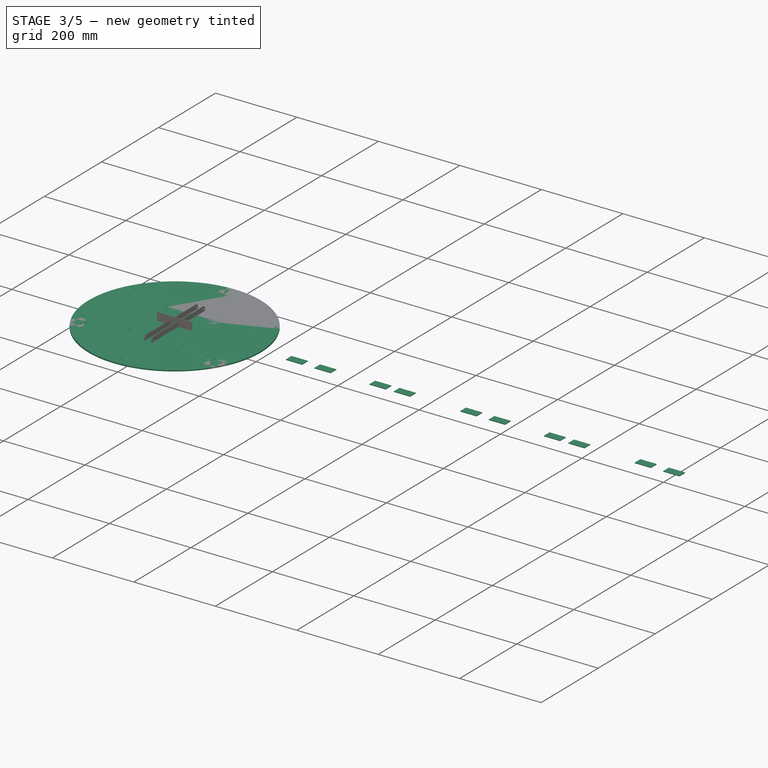
[diagram: stage 3 of 5 — iso view after this stage's code; geometry added in this stage tinted green]
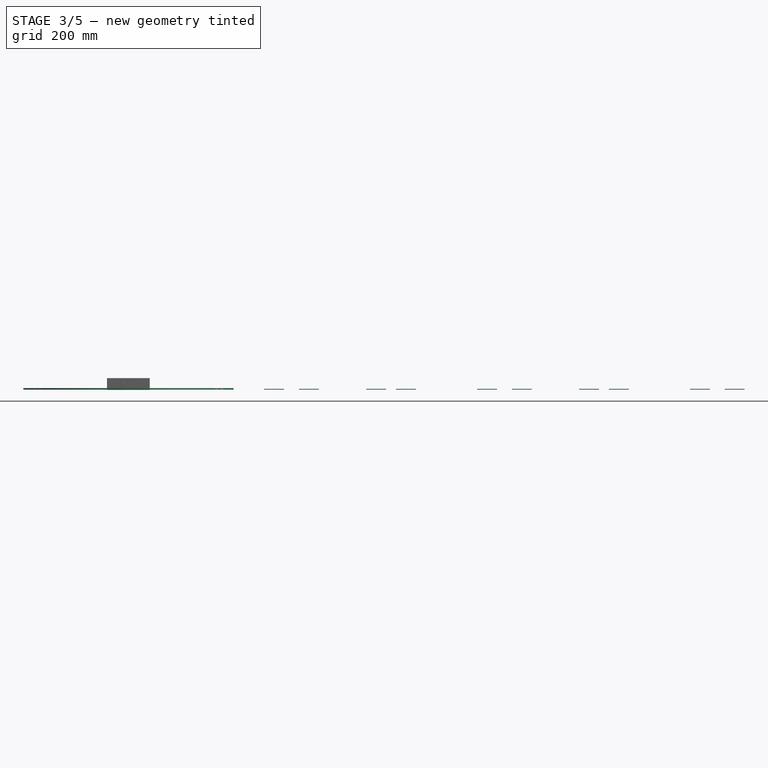
[diagram: stage 3 of 5 — front view after this stage's code; geometry added in this stage tinted green]
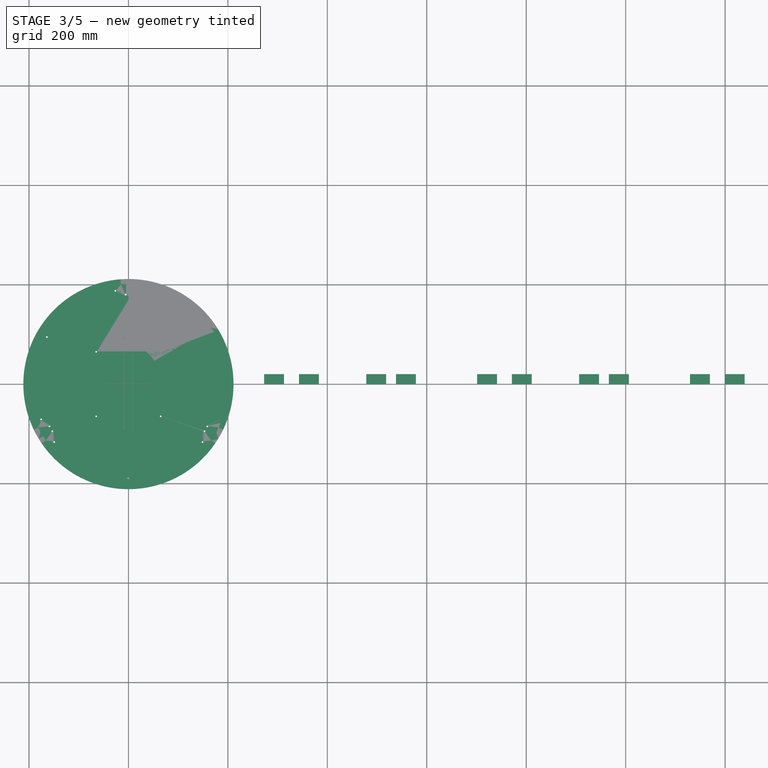
[diagram: stage 3 of 5 — top view after this stage's code; geometry added in this stage tinted green]
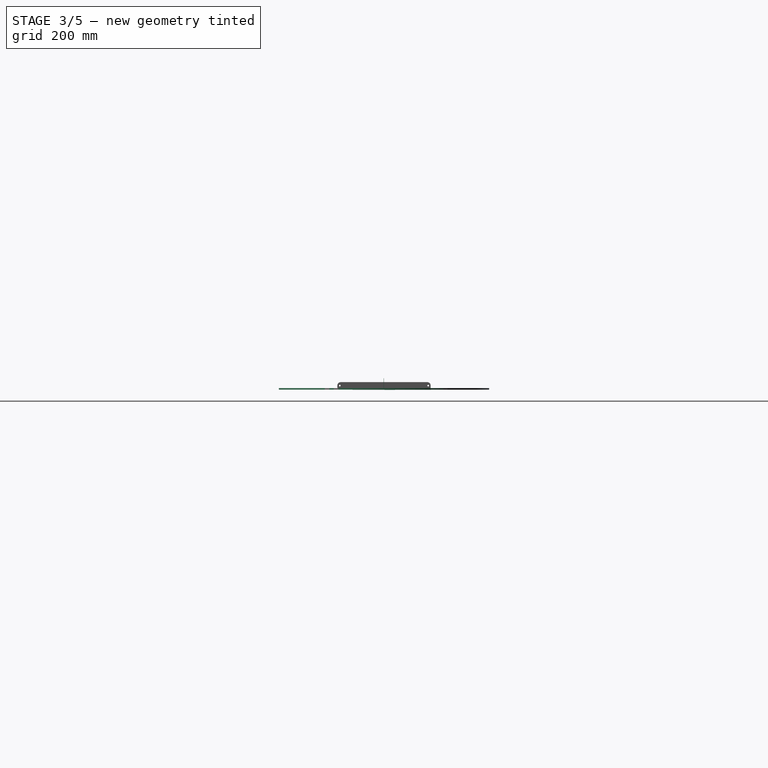
[diagram: stage 3 of 5 — right view after this stage's code; geometry added in this stage tinted green]
FEATURE [PartDesign::CoordinateSystem] Local_CS013
  AttacherType = Attacher::AttachEngine3D
  MapMode = 5
  Support = -> [XY_Plane015]
FEATURE [PartDesign::CoordinateSystem] Local_CS014
  AttacherType = Attacher::AttachEngine3D
  AttachmentOffset = pos=(0,0,157) rot=(0,0,-1;2.0944rad)
  MapMode = 6
  Placement = pos=(-14.5,8.37158,157) rot=(0,0,1;1.0472rad)
  Support = -> [Sketch003,XY_Plane001]
FEATURE [PartDesign::CoordinateSystem] Local_CS015
  AttacherType = Attacher::AttachEngine3D
  AttachmentOffset = pos=(0,0,157) rot=(0,0,1;0rad)
  MapMode = 6
  Placement = pos=(0,-16.7432,157) rot=(0,0,1;3.14159rad)
  Support = -> [Sketch003,XY_Plane001]
FEATURE [App::Link] Body001003005002
  AssemblyType = Part::Link
  AttachedBy = #Local_CS013
  AttachedTo = Body001001#Local_CS025
  AttachmentOffset = pos=(0,0,0) rot=(0,0,1;3.14159rad)
  LinkPlacement = pos=(0,0,157) rot=(0,0,1;3.14159rad)
  LinkedObject = -> Body001003005
  Placement = pos=(0,0,157) rot=(0,0,1;3.14159rad)
  SolverId = Asm4EE
FEATURE [PartDesign::CoordinateSystem] Local_CS016
  AttacherType = Attacher::AttachEngine3D
  AttachmentOffset = pos=(0,0,0) rot=(0,0,1;0.523599rad)
  MapMode = 5
  Placement = pos=(0,0,0) rot=(0,0,1;0.523599rad)
  Support = -> [XY_Plane015]
FEATURE [PartDesign::Plane] DatumPlane015
  Length = 81.9615
  MapMode = 5
  Placement = pos=(0,0,0) rot=(0,0,1;0.523599rad)
  ResizeMode = 0
  Support = -> [Local_CS016]
  Width = 81.9615
FEATURE [PartDesign::Plane] DatumPlane016
  Length = 79.989
  MapMode = 4
  Placement = pos=(86.82,84.1932,0) rot=(0.377964,0.654654,0.654654;2.41886rad)
  ResizeMode = 0
  Width = 61.6877
FEATURE [Sketcher::SketchObject] Sketch048
  FullyConstrained = true
  MapMode = 5
  Support = -> [XY_Plane016]
  sketch-geometry (1):
    g0: Circle CenterX=0 CenterY=0 CenterZ=0 NormalX=0 NormalY=0 NormalZ=1 AngleXU=0 Radius=211.375
  constraints (2):
    c: Coincident(g0,g-1)
    c: Radius(g0) = 211.375
FEATURE [PartDesign::Pad] Pad013
  Direction = (0,0,1)
  Length = 3
  Length2 = 10
  Profile = -> Sketch048
  ReferenceAxis = -> Sketch048 [N_Axis]
  Type = 0
FEATURE [PartDesign::Body] Body001003005003003
  Group = -> [Sketch052,Pad014,Pocket019,Mirrored019,Local_CS018,Sketch055]
  Origin = -> Origin016
  Tip = -> Mirrored019
FEATURE [PartDesign::SubShapeBinder] Binder005
  AttacherType = Attacher::AttachEngine3D
  AttachmentOffset = pos=(0,0,0) rot=(0,0,1;1.0472rad)
  BindCopyOnChange = 0
  BindMode = 0
  ClaimChildren = false
  Context = -> Body001003005003 [Binder005.]
  Fuse = false
  MakeFace = true
  MapMode = 5
  OffsetFill = false
  OffsetIntersection = false
  OffsetJoinType = 0
  OffsetOpenResult = false
  PartialLoad = false
  Placement = pos=(0,0,0) rot=(0,0,1;1.0472rad)
  Relative = false
  _Version = 2
FEATURE [PartDesign::Plane] DatumPlane018
  Length = 79.989
  MapMode = 4
  Placement = pos=(0,0,0) rot=(0.186157,0.694747,0.694747;2.77349rad)
  ResizeMode = 0
  Support = -> [Binder005]
  Width = 61.6877
FEATURE [Sketcher::SketchObject] Sketch057
  AttachmentOffset = pos=(195.697,-11.5,0) rot=(0,0,1;0rad)
  FullyConstrained = true
  MapMode = 5
  Placement = pos=(4.6e-14,195.697,-11.5) rot=(0.57735,0.57735,0.57735;2.0944rad)
  Support = -> [YZ_Plane015]
  sketch-geometry (1):
    g0: Circle CenterX=0 CenterY=0 CenterZ=0 NormalX=0 NormalY=0 NormalZ=1 AngleXU=0 Radius=1.7
  constraints (2):
    c: Coincident(g0,g-1)
    c: Diameter(g0) = 3.4
FEATURE [Sketcher::SketchObject] Sketch058
  AttachmentOffset = pos=(179.522,-11.5,0) rot=(0,0,1;0rad)
  FullyConstrained = true
  MapMode = 5
  Placement = pos=(4.24e-14,179.522,-11.5) rot=(0.57735,0.57735,0.57735;2.0944rad)
  Support = -> [YZ_Plane015]
  sketch-geometry (1):
    g0: Circle CenterX=0 CenterY=0 CenterZ=0 NormalX=0 NormalY=0 NormalZ=1 AngleXU=0 Radius=1.7
  constraints (2):
    c: Coincident(g0,g-1)
    c: Diameter(g0) = 3.4
FEATURE [PartDesign::Pocket] Pocket027
  BaseFeature = -> Pad013
  Direction = (-1,2e-16,-3e-16)
  Length = 5
  Length2 = 5
  Midplane = true
  Profile = -> Sketch058
  ReferenceAxis = -> Sketch058 [N_Axis]
  Type = 1
FEATURE [Sketcher::SketchObject] Sketch059
  AttachmentOffset = pos=(195.697,11.5,0) rot=(0,0,1;0rad)
  FullyConstrained = true
  MapMode = 5
  Placement = pos=(4.09e-14,195.697,11.5) rot=(0.57735,0.57735,0.57735;2.0944rad)
  Support = -> [YZ_Plane001]
  sketch-geometry (1):
    g0: Circle CenterX=0 CenterY=0 CenterZ=0 NormalX=0 NormalY=0 NormalZ=1 AngleXU=0 Radius=1.7
  constraints (2):
    c: Coincident(g0,g-1)
    c: Diameter(g0) = 3.4
FEATURE [Sketcher::SketchObject] Sketch060
  AttachmentOffset = pos=(179.522,11.5,0) rot=(0,0,1;0rad)
  FullyConstrained = true
  MapMode = 5
  Placement = pos=(3.73e-14,179.522,11.5) rot=(0.57735,0.57735,0.57735;2.0944rad)
  Support = -> [YZ_Plane001]
  sketch-geometry (1):
    g0: Circle CenterX=0 CenterY=0 CenterZ=0 NormalX=0 NormalY=0 NormalZ=1 AngleXU=0 Radius=1.7
  constraints (2):
    c: Coincident(g0,g-1)
    c: Diameter(g0) = 3.4
FEATURE [PartDesign::CoordinateSystem] Local_CS021
  AttacherType = Attacher::AttachEngine3D
  AttachmentOffset = pos=(0,0,0) rot=(0,0,1;2.0944rad)
  MapMode = 5
  Placement = pos=(0,0,0) rot=(0,0,1;2.0944rad)
  Support = -> [XY_Plane016]
FEATURE [PartDesign::CoordinateSystem] Local_CS022
  AttacherType = Attacher::AttachEngine3D
  AttachmentOffset = pos=(0,0,0) rot=(0,0,-1;2.0944rad)
  MapMode = 5
  Placement = pos=(0,0,0) rot=(0,0,-1;2.0944rad)
  Support = -> [XY_Plane016]
FEATURE [PartDesign::Plane] DatumPlane019
  Length = 81.9615
  MapMode = 5
  Placement = pos=(0,0,0) rot=(0,0,1;2.0944rad)
  ResizeMode = 0
  Support = -> [Local_CS021]
  Width = 81.9615
FEATURE [PartDesign::Plane] DatumPlane020
  Length = 81.9615
  MapMode = 5
  Placement = pos=(0,0,0) rot=(0,0,-1;2.0944rad)
  ResizeMode = 0
  Support = -> [Local_CS022]
  Width = 81.9615
FEATURE [Sketcher::SketchObject] Sketch061
  AttachmentOffset = pos=(0,195.697,0) rot=(0,0,1;0rad)
  FullyConstrained = true
  MapMode = 5
  Placement = pos=(-169.478,-97.8483,0) rot=(0,0,1;2.0944rad)
  Support = -> [DatumPlane019]
  sketch-geometry (17):
    g0: LineSegment StartX=-11.5 StartY=-8.0875 StartZ=0 EndX=-11.5 EndY=8.0875 EndZ=0
    g1: ArcOfCircle CenterX=-11.5 CenterY=8.0875 CenterZ=0 NormalX=0 NormalY=0 NormalZ=1 AngleXU=0 Radius=1.5875 StartAngle=1.5708 EndAngle=4.71239
    g2: LineSegment StartX=-11.5 StartY=6.5 StartZ=0 EndX=8.325 EndY=6.5 EndZ=0
    g3: LineSegment StartX=8.325 StartY=6.5 StartZ=0 EndX=8.325 EndY=0 EndZ=0
    g4: LineSegment StartX=8.325 StartY=0 StartZ=0 EndX=11.5 EndY=0 EndZ=0
    g5: LineSegment StartX=11.5 StartY=0 StartZ=0 EndX=11.5 EndY=6.5 EndZ=0
    g6: LineSegment StartX=-11.5 StartY=9.675 StartZ=0 EndX=8.325 EndY=9.675 EndZ=0
    g7: ArcOfCircle CenterX=8.325 CenterY=6.5 CenterZ=0 NormalX=0 NormalY=0 NormalZ=1 AngleXU=0 Radius=3.175 StartAngle=0 EndAngle=1.5708
    g8: GeomPoint X=8.325 Y=-6.5 Z=0
    g9: ArcOfCircle CenterX=-11.5 CenterY=11.5875 CenterZ=0 NormalX=0 NormalY=0 NormalZ=1 AngleXU=0 Radius=1.5875 StartAngle=1.5708 EndAngle=4.71239
    g10: LineSegment StartX=-11.5 StartY=10 StartZ=0 EndX=8.325 EndY=10 EndZ=0
    g11: LineSegment StartX=8.325 StartY=10 StartZ=0 EndX=8.325 EndY=0 EndZ=0
    g12: LineSegment StartX=8.325 StartY=0 StartZ=0 EndX=11.5 EndY=0 EndZ=0
    g13: LineSegment StartX=11.5 StartY=0 StartZ=0 EndX=11.5 EndY=10 EndZ=0
    g14: LineSegment StartX=-11.5 StartY=13.175 StartZ=0 EndX=8.325 EndY=13.175 EndZ=0
    g15: ArcOfCircle CenterX=8.325 CenterY=10 CenterZ=0 NormalX=0 NormalY=0 NormalZ=1 AngleXU=0 Radius=3.175 StartAngle=1.5915e-12 EndAngle=1.5708
    g16: GeomPoint X=8.325 Y=-10 Z=0
  constraints (40):
    c: Horizontal(g2)
    c: PointOnObject(g3,g-1)
    c: Vertical(g3)
    c: Coincident(g4,g3)
    c: PointOnObject(g4,g-1)
    c: Coincident(g5,g4)
    c: Vertical(g5)
    c: Horizontal(g6)
    c: Tangent(g7,g5) = -1.5708
    c: Tangent(g7,g6) = 1.5708
    c: DistanceX(g4) = 11.5
    c: Tangent(g2,g1) = -1.5708
    c: Tangent(g6,g1) = 1.5708
    c: Diameter(g1) = 3.175
    c: DistanceX(g1) = -11.5
    c: Coincident(g7,g3)
    c: Coincident(g3,g2)
    c: Symmetric(g8,g2,g3)
    c: DistanceY(g8,g2) = 13  'cut_width'
    c: Horizontal(g10)
    c: PointOnObject(g11,g-1)
    c: Vertical(g11)
    c: Coincident(g12,g11)
    c: PointOnObject(g12,g-1)
    c: Coincident(g13,g12)
    c: Vertical(g13)
    c: Horizontal(g14)
    c: Tangent(g15,g13) = -1.5708
    c: Tangent(g15,g14) = 1.5708
    c: DistanceX(g12) = 11.5
    c: Tangent(g10,g9) = -1.5708
    c: Tangent(g14,g9) = 1.5708
    c: Diameter(g9) = 3.175
    c: DistanceX(g9) = -11.5
    c: Coincident(g15,g11)
    c: Coincident(g11,g10)
    c: Symmetric(g16,g10,g11)
    c: DistanceY(g16,g10) = 20  'cut_width'
    c: Coincident(g0,g1)
    c: Symmetric(g0,g0,g-1)
FEATURE [Sketcher::SketchObject] Sketch062
  AttachmentOffset = pos=(0,195.697,0) rot=(0,0,1;0rad)
  FullyConstrained = true
  MapMode = 5
  Placement = pos=(169.478,-97.8483,0) rot=(0,0,-1;2.0944rad)
  Support = -> [DatumPlane020]
  sketch-geometry (17):
    g0: LineSegment StartX=-11.5 StartY=-8.0875 StartZ=0 EndX=-11.5 EndY=8.0875 EndZ=0
    g1: ArcOfCircle CenterX=-11.5 CenterY=8.0875 CenterZ=0 NormalX=0 NormalY=0 NormalZ=1 AngleXU=0 Radius=1.5875 StartAngle=1.5708 EndAngle=4.71239
    g2: LineSegment StartX=-11.5 StartY=6.5 StartZ=0 EndX=8.325 EndY=6.5 EndZ=0
    g3: LineSegment StartX=8.325 StartY=6.5 StartZ=0 EndX=8.325 EndY=0 EndZ=0
    g4: LineSegment StartX=8.325 StartY=0 StartZ=0 EndX=11.5 EndY=0 EndZ=0
    g5: LineSegment StartX=11.5 StartY=0 StartZ=0 EndX=11.5 EndY=6.5 EndZ=0
    g6: LineSegment StartX=-11.5 StartY=9.675 StartZ=0 EndX=8.325 EndY=9.675 EndZ=0
    g7: ArcOfCircle CenterX=8.325 CenterY=6.5 CenterZ=0 NormalX=0 NormalY=0 NormalZ=1 AngleXU=0 Radius=3.175 StartAngle=0 EndAngle=1.5708
    g8: GeomPoint X=8.325 Y=-6.5 Z=0
    g9: ArcOfCircle CenterX=-11.5 CenterY=11.5875 CenterZ=0 NormalX=0 NormalY=0 NormalZ=1 AngleXU=0 Radius=1.5875 StartAngle=1.5708 EndAngle=4.71239
    g10: LineSegment StartX=-11.5 StartY=10 StartZ=0 EndX=8.325 EndY=10 EndZ=0
    g11: LineSegment StartX=8.325 StartY=10 StartZ=0 EndX=8.325 EndY=0 EndZ=0
    g12: LineSegment StartX=8.325 StartY=0 StartZ=0 EndX=11.5 EndY=0 EndZ=0
    g13: LineSegment StartX=11.5 StartY=0 StartZ=0 EndX=11.5 EndY=10 EndZ=0
    g14: LineSegment StartX=-11.5 StartY=13.175 StartZ=0 EndX=8.325 EndY=13.175 EndZ=0
    g15: ArcOfCircle CenterX=8.325 CenterY=10 CenterZ=0 NormalX=0 NormalY=0 NormalZ=1 AngleXU=0 Radius=3.175 StartAngle=1.5915e-12 EndAngle=1.5708
    g16: GeomPoint X=8.325 Y=-10 Z=0
  constraints (40):
    c: Horizontal(g2)
    c: PointOnObject(g3,g-1)
    c: Vertical(g3)
    c: Coincident(g4,g3)
    c: PointOnObject(g4,g-1)
    c: Coincident(g5,g4)
    c: Vertical(g5)
    c: Horizontal(g6)
    c: Tangent(g7,g5) = -1.5708
    c: Tangent(g7,g6) = 1.5708
    c: DistanceX(g4) = 11.5
    c: Tangent(g2,g1) = -1.5708
    c: Tangent(g6,g1) = 1.5708
    c: Diameter(g1) = 3.175
    c: DistanceX(g1) = -11.5
    c: Coincident(g7,g3)
    c: Coincident(g3,g2)
    c: Symmetric(g8,g2,g3)
    c: DistanceY(g8,g2) = 13  'cut_width'
    c: Horizontal(g10)
    c: PointOnObject(g11,g-1)
    c: Vertical(g11)
    c: Coincident(g12,g11)
    c: PointOnObject(g12,g-1)
    c: Coincident(g13,g12)
    c: Vertical(g13)
    c: Horizontal(g14)
    c: Tangent(g15,g13) = -1.5708
    c: Tangent(g15,g14) = 1.5708
    c: DistanceX(g12) = 11.5
    c: Tangent(g10,g9) = -1.5708
    c: Tangent(g14,g9) = 1.5708
    c: Diameter(g9) = 3.175
    c: DistanceX(g9) = -11.5
    c: Coincident(g15,g11)
    c: Coincident(g11,g10)
    c: Symmetric(g16,g10,g11)
    c: DistanceY(g16,g10) = 20  'cut_width'
    c: Coincident(g0,g1)
    c: Symmetric(g0,g0,g-1)
FEATURE [Sketcher::SketchObject] Sketch063
  AttachmentOffset = pos=(0,179.522,0) rot=(0,0,1;0rad)
  FullyConstrained = true
  MapMode = 5
  Placement = pos=(-155.47,-89.7608,0) rot=(0,0,1;2.0944rad)
  Support = -> [DatumPlane019]
  sketch-geometry (9):
    g0: ArcOfCircle CenterX=-11.5 CenterY=8.0875 CenterZ=0 NormalX=0 NormalY=0 NormalZ=1 AngleXU=0 Radius=1.5875 StartAngle=1.5708 EndAngle=4.71239
    g1: LineSegment StartX=-11.5 StartY=6.5 StartZ=0 EndX=8.325 EndY=6.5 EndZ=0
    g2: LineSegment StartX=8.325 StartY=6.5 StartZ=0 EndX=8.325 EndY=0 EndZ=0
    g3: LineSegment StartX=8.325 StartY=0 StartZ=0 EndX=11.5 EndY=0 EndZ=0
    g4: LineSegment StartX=11.5 StartY=0 StartZ=0 EndX=11.5 EndY=6.5 EndZ=0
    g5: LineSegment StartX=-11.5 StartY=9.675 StartZ=0 EndX=8.325 EndY=9.675 EndZ=0
    g6: ArcOfCircle CenterX=8.325 CenterY=6.5 CenterZ=0 NormalX=0 NormalY=0 NormalZ=1 AngleXU=0 Radius=3.175 StartAngle=0 EndAngle=1.5708
    g7: GeomPoint X=8.325 Y=-6.5 Z=0
    g8: LineSegment StartX=11.5 StartY=8.0875 StartZ=0 EndX=11.5 EndY=-8.0875 EndZ=0
  constraints (22):
    c: Horizontal(g1)
    c: PointOnObject(g2,g-1)
    c: Vertical(g2)
    c: Coincident(g3,g2)
    c: PointOnObject(g3,g-1)
    c: Coincident(g4,g3)
    c: Vertical(g4)
    c: Horizontal(g5)
    c: Tangent(g6,g4) = -1.5708
    c: Tangent(g6,g5) = 1.5708
    c: DistanceX(g3) = 11.5
    c: Tangent(g1,g0) = -1.5708
    c: Tangent(g5,g0) = 1.5708
    c: Diameter(g0) = 3.175
    c: DistanceX(g0) = -11.5
    c: Coincident(g6,g2)
    c: Coincident(g2,g1)
    c: Symmetric(g7,g1,g2)
    c: DistanceY(g7,g1) = 13  'cut_width'
    c: Vertical(g8)
    c: Symmetric(g0,g8,g-1)
    c: Horizontal(g8,g0)
FEATURE [Sketcher::SketchObject] Sketch064
  AttachmentOffset = pos=(0,179.522,0) rot=(0,0,1;0rad)
  FullyConstrained = true
  MapMode = 5
  Placement = pos=(155.47,-89.7608,0) rot=(0,0,-1;2.0944rad)
  Support = -> [DatumPlane020]
  sketch-geometry (9):
    g0: ArcOfCircle CenterX=-11.5 CenterY=8.0875 CenterZ=0 NormalX=0 NormalY=0 NormalZ=1 AngleXU=0 Radius=1.5875 StartAngle=1.5708 EndAngle=4.71239
    g1: LineSegment StartX=-11.5 StartY=6.5 StartZ=0 EndX=8.325 EndY=6.5 EndZ=0
    g2: LineSegment StartX=8.325 StartY=6.5 StartZ=0 EndX=8.325 EndY=0 EndZ=0
    g3: LineSegment StartX=8.325 StartY=0 StartZ=0 EndX=11.5 EndY=0 EndZ=0
    g4: LineSegment StartX=11.5 StartY=0 StartZ=0 EndX=11.5 EndY=6.5 EndZ=0
    g5: LineSegment StartX=-11.5 StartY=9.675 StartZ=0 EndX=8.325 EndY=9.675 EndZ=0
    g6: ArcOfCircle CenterX=8.325 CenterY=6.5 CenterZ=0 NormalX=0 NormalY=0 NormalZ=1 AngleXU=0 Radius=3.175 StartAngle=0 EndAngle=1.5708
    g7: GeomPoint X=8.325 Y=-6.5 Z=0
    g8: LineSegment StartX=11.5 StartY=8.0875 StartZ=0 EndX=11.5 EndY=-8.0875 EndZ=0
  constraints (22):
    c: Horizontal(g1)
    c: PointOnObject(g2,g-1)
    c: Vertical(g2)
    c: Coincident(g3,g2)
    c: PointOnObject(g3,g-1)
    c: Coincident(g4,g3)
    c: Vertical(g4)
    c: Horizontal(g5)
    c: Tangent(g6,g4) = -1.5708
    c: Tangent(g6,g5) = 1.5708
    c: DistanceX(g3) = 11.5
    c: Tangent(g1,g0) = -1.5708
    c: Tangent(g5,g0) = 1.5708
    c: Diameter(g0) = 3.175
    c: DistanceX(g0) = -11.5
    c: Coincident(g6,g2)
    c: Coincident(g2,g1)
    c: Symmetric(g7,g1,g2)
    c: DistanceY(g7,g1) = 13  'cut_width'
    c: Vertical(g8)
    c: Symmetric(g0,g8,g-1)
    c: Horizontal(g8,g0)
FEATURE [PartDesign::CoordinateSystem] Local_CS023
  AttacherType = Attacher::AttachEngine3D
  AttachmentOffset = pos=(0,0,157) rot=(0,0,1;0rad)
  MapMode = 5
  Placement = pos=(0,108.372,157) rot=(0,0,1;0rad)
  Support = -> [Local_CS011]
FEATURE [Sketcher::SketchObject] Sketch070
  AttachmentOffset = pos=(0,774,0) rot=(0,0,1;0rad)
  FullyConstrained = true
  MapMode = 5
  Placement = pos=(0,108.372,774) rot=(0.57735,0.57735,0.57735;2.0944rad)
  Support = -> [DatumPlane]
  sketch-geometry (4):
    g0: LineSegment StartX=54.2 StartY=-4 StartZ=0 EndX=0 EndY=-4 EndZ=0
    g1: LineSegment StartX=0 StartY=-4 StartZ=0 EndX=0 EndY=0 EndZ=0
    g2: LineSegment StartX=0 StartY=0 StartZ=0 EndX=54.2 EndY=0 EndZ=0
    g3: LineSegment StartX=54.2 StartY=0 StartZ=0 EndX=54.2 EndY=-4 EndZ=0
  constraints (11):
    c: Coincident(g0,g1)
    c: Coincident(g1,g2)
    c: Coincident(g2,g3)
    c: Coincident(g3,g0)
    c: Horizontal(g0)
    c: Horizontal(g2)
    c: Vertical(g1)
    c: Vertical(g3)
    c: DistanceX(g2) = 54.2
    c: Coincident(g1,g-1)
    c: DistanceY(g3,g3) = 4
FEATURE [PartDesign::Plane] DatumPlane021
  AttachmentOffset = pos=(0,0,0) rot=(0,-1,0;1.0472rad)
  Length = 617.811
  MapMode = 5
  Placement = pos=(0,0,0) rot=(0.935113,0.250563,0.250563;1.63783rad)
  ResizeMode = 0
  Support = -> [YZ_Plane001]
  Width = 924.443
FEATURE [PartDesign::Plane] DatumPlane022
  AttachmentOffset = pos=(0,0,14.5) rot=(0,0,1;0rad)
  Length = 438.356
  MapMode = 4
  Placement = pos=(14.5,108.372,157) rot=(0.57735,0.57735,0.57735;2.0944rad)
  ResizeMode = 0
  Support = -> [Local_CS023]
  Width = 902.457
FEATURE [PartDesign::Mirrored] Mirrored027
  MirrorPlane = -> YZ_Plane001
FEATURE [PartDesign::CoordinateSystem] Local_CS024
  AttacherType = Attacher::AttachEngine3D
  AttachmentOffset = pos=(0,60,-10.3215) rot=(-1,0,0;0.066568rad)
  MapMode = 5
  Placement = pos=(0,60,-10.3215) rot=(-1,0,0;0.066568rad)
  Support = -> [XY_Plane]
FEATURE [App::Link] gutter001  label="gutter002"
  AssemblyType = Part::Link
  AttachedBy = #Local_CS024
  AttachedTo = Body001001#Local_CS037
  AttachmentOffset = pos=(0,1,0) rot=(-1,0,0;3.14159rad)
  LinkPlacement = pos=(0,169.925,736.693) rot=(-1,0,0;3.07502rad)
  LinkedObject = -> Body
  Placement = pos=(0,169.925,736.693) rot=(-1,0,0;3.07502rad)
  SolverId = Asm4EE
FEATURE [Sketcher::SketchObject] Sketch074
  FullyConstrained = true
  MapMode = 5
  Placement = pos=(187.705,-91.6284,-3.2e-15) rot=(0.935113,-0.250563,-0.250563;1.63783rad)
  Support = -> [DatumPlane009]
  sketch-geometry (3):
    g0: LineSegment StartX=-200 StartY=774 StartZ=0 EndX=-203.464 EndY=771 EndZ=0
    g1: LineSegment StartX=-200 StartY=774 StartZ=0 EndX=-203.464 EndY=774 EndZ=0
    g2: LineSegment StartX=-203.464 StartY=774 StartZ=0 EndX=-203.464 EndY=771 EndZ=0
  constraints (9):
    c: Coincident(g1,g0)
    c: Horizontal(g1)
    c: Coincident(g2,g1)
    c: Coincident(g2,g0)
    c: Vertical(g2)
    c: DistanceY(g1) = 774
    c: DistanceY(g2,g2) = 3
    c: DistanceX(g1,g1) = 3.4641
    c: DistanceX(g0) = -200
FEATURE [Sketcher::SketchObject] Sketch075
  AttachmentOffset = pos=(0,0,0) rot=(0,0,1;3.14159rad)
  FullyConstrained = true
  MapMode = 5
  Placement = pos=(0,0,0) rot=(0,0,1;3.14159rad)
  Support = -> [XY_Plane016]
  sketch-geometry (6):
    g0: Circle CenterX=64.8152 CenterY=64.8152 CenterZ=0 NormalX=0 NormalY=0 NormalZ=1 AngleXU=0 Radius=1.7
    g1: Circle CenterX=64.8152 CenterY=-64.8152 CenterZ=0 NormalX=0 NormalY=0 NormalZ=1 AngleXU=0 Radius=1.7
    g2: Circle CenterX=-64.8152 CenterY=-64.8152 CenterZ=0 NormalX=0 NormalY=0 NormalZ=1 AngleXU=0 Radius=1.7
    g3: Circle CenterX=-64.8152 CenterY=64.8152 CenterZ=0 NormalX=0 NormalY=0 NormalZ=1 AngleXU=0 Radius=1.7
    g4: LineSegment StartX=-64.8152 StartY=64.8152 StartZ=0 EndX=64.8152 EndY=64.8152 EndZ=0
    g5: LineSegment StartX=64.8152 StartY=64.8152 StartZ=0 EndX=64.8152 EndY=-64.8152 EndZ=0
  constraints (13):
    c: Symmetric(g3,g0,g-2)
    c: Symmetric(g0,g1,g-1)
    c: Symmetric(g0,g2,g-1)
    c: Equal(g0,g3)
    c: Equal(g0,g2)
    c: Equal(g0,g1)
    c: Diameter(g0) = 3.4
    c: Coincident(g4,g3)
    c: Coincident(g4,g0)
    c: Coincident(g5,g0)
    c: Coincident(g5,g1)
    c: Equal(g5,g4)
    c: Distance(g2,g0) = 183.325
FEATURE [PartDesign::Pocket] Pocket036
  BaseFeature = -> Pocket027
  Direction = (0,0,-1)
  Length = 5
  Length2 = 5
  Midplane = true
  Profile = -> Sketch075
  ReferenceAxis = -> Sketch075 [N_Axis]
  Type = 1
FEATURE [PartDesign::Body] Body001003005003012
  Group = -> [Sketch078,Sketch079,BaseBend,Sketch080,Pocket039,Sketch081,Pocket040,Mirrored028]
  Origin = -> Origin025
  Tip = -> Mirrored028
FEATURE [PartDesign::SubShapeBinder] Binder018
  BindCopyOnChange = 0
  BindMode = 0
  ClaimChildren = true
  Context = -> Body001003005003 [Binder018.]
  Fuse = false
  MakeFace = true
  OffsetFill = false
  OffsetIntersection = false
  OffsetJoinType = 0
  OffsetOpenResult = false
  PartialLoad = false
  Relative = false
  Support = -> [Body001003005003012[Pocket039.Sketch080.]]
  _Version = 2
FEATURE [PartDesign::CoordinateSystem] Local_CS025
  AttacherType = Attacher::AttachEngine3D
  AttachmentOffset = pos=(0,0,157) rot=(0,0,1;0rad)
  MapMode = 5
  Placement = pos=(0,0,157) rot=(0,0,1;0rad)
  Support = -> [XY_Plane001]
FEATURE [PartDesign::CoordinateSystem] Local_CS026
  AttacherType = Attacher::AttachEngine3D
  AttachmentOffset = pos=(0,16.7432,0) rot=(0,0,1;0.523599rad)
  MapMode = 5
  Placement = pos=(0,16.7432,0) rot=(0,0,1;0.523599rad)
  Support = -> [XY_Plane015]
FEATURE [Sketcher::SketchObject] Sketch082
  FullyConstrained = false
  MapMode = 5
  Support = -> [XY_Plane027]
  sketch-geometry (19):
    g0: ArcOfCircle CenterX=0 CenterY=0 CenterZ=0 NormalX=0 NormalY=0 NormalZ=1 AngleXU=0 Radius=196.875 StartAngle=0.650114 EndAngle=1.5708
    g1: LineSegment StartX=1.21e-14 StartY=196.875 StartZ=0 EndX=1.11e-14 EndY=181.875 EndZ=0
    g2: ArcOfCircle CenterX=0 CenterY=0 CenterZ=0 NormalX=0 NormalY=0 NormalZ=1 AngleXU=0 Radius=181.875 StartAngle=0.650114 EndAngle=1.5708
    g3: ArcOfCircle CenterX=150.746 CenterY=114.625 CenterZ=0 NormalX=0 NormalY=0 NormalZ=1 AngleXU=0 Radius=7.5 StartAngle=3.79171 EndAngle=6.9333
    g4: LineSegment StartX=0 StartY=0 StartZ=0 EndX=164.625 EndY=95.0465 EndZ=0
    g5: GeomPoint X=155.166 Y=108.566 Z=0
    g6: LineSegment StartX=164.625 StartY=95.0465 StartZ=0 EndX=155.166 EndY=108.566 EndZ=0
    g7: ArcOfCircle CenterX=0 CenterY=0 CenterZ=0 NormalX=0 NormalY=0 NormalZ=1 AngleXU=0 Radius=189.375 StartAngle=0.610508 EndAngle=1.5708
    g8: ArcOfCircle CenterX=0 CenterY=0 CenterZ=0 NormalX=0 NormalY=0 NormalZ=1 AngleXU=0 Radius=189.375 StartAngle=0.645052 EndAngle=1.5708
    g9: ArcOfCircle CenterX=0 CenterY=0 CenterZ=0 NormalX=0 NormalY=0 NormalZ=1 AngleXU=0 Radius=196.875 StartAngle=0.612741 EndAngle=0.650114
    g10: LineSegment StartX=155.166 StartY=108.566 StartZ=0 EndX=160.741 EndY=111.784 EndZ=0
    g11: ArcOfCircle CenterX=160.241 CenterY=112.65 CenterZ=0 NormalX=0 NormalY=0 NormalZ=1 AngleXU=0 Radius=1 StartAngle=5.23599 EndAngle=6.89593
    g12: ArcOfCircle CenterX=0 CenterY=0 CenterZ=0 NormalX=0 NormalY=0 NormalZ=1 AngleXU=0 Radius=181.875 StartAngle=0.619097 EndAngle=0.650114
    g13: LineSegment StartX=155.166 StartY=108.566 StartZ=0 EndX=149.434 EndY=105.257 EndZ=0
    g14: ArcOfCircle CenterX=148.934 CenterY=106.123 CenterZ=0 NormalX=0 NormalY=0 NormalZ=1 AngleXU=0 Radius=1 StartAngle=3.76069 EndAngle=5.23599
    g15: ArcOfCircle CenterX=0 CenterY=0 CenterZ=0 NormalX=0 NormalY=0 NormalZ=1 AngleXU=0 Radius=196.875 StartAngle=0.597316 EndAngle=1.5708
    g16: LineSegment StartX=162.786 StartY=110.728 StartZ=0 EndX=0 EndY=0 EndZ=0
    g17: LineSegment StartX=162.786 StartY=110.728 StartZ=0 EndX=0 EndY=110.728 EndZ=0
    g18: LineSegment StartX=0 StartY=0 StartZ=0 EndX=162.786 EndY=110.728 EndZ=0
  constraints (52):
    c: Coincident(g0,g-1)
    c: PointOnObject(g0,g-2)
    c: DistanceY(g0) = 196.875
    c: Coincident(g1,g0)
    c: PointOnObject(g1,g-2)
    c: Coincident(g2,g0)
    c: Coincident(g2,g1)
    c: Tangent(g3,g0) = -1.5708
    c: Tangent(g3,g2) = 1.5708
    c: DistanceY(g1,g1) = 15
    c: Coincident(g4,g0)
    c: Angle(g-1,g4) = 0.523599
    c: PointOnObject(g5,g3)
    c: Coincident(g6,g4)
    c: Coincident(g6,g5)
    c: Coincident(g7,g0)
    c: Coincident(g7,g5)
    c: PointOnObject(g7,g1)
    c: PointOnObject(g3,g7)
    c: Tangent(g6,g7)
    c: Distance(g6) = 16.5
    c: Coincident(g8,g0)
    c: PointOnObject(g8,g-2)
    c: DistanceY(g8,g0) = 7.5
    c: Coincident(g9,g0)
    c: Coincident(g9,g0)
    c: Coincident(g10,g5)
    c: Parallel(g10,g4)
    c: Tangent(g9,g11) = -1.5708
    c: Tangent(g10,g11) = -1.5708
    c: Diameter(g11) = 2
    c: Coincident(g12,g0)
    c: Coincident(g12,g2)
    c: Coincident(g13,g10)
    c: Parallel(g13,g10)
    c: Tangent(g12,g14) = 1.5708
    c: Tangent(g13,g14) = 1.5708
    c: Equal(g14,g11)
    c: Coincident(g15,g0)
    c: PointOnObject(g15,g-2)
    c: Equal(g15,g9)
    c: Distance(g15,g4) = 14.5
    c: Coincident(g16,g15)
    c: Coincident(g16,g0)
    c: Angle(g16,g-2) = 0.97348
    c: Coincident(g17,g15)
    c: PointOnObject(g17,g-2)
    c: Horizontal(g17)
    c: DistanceX(g17,g17) = 162.786
    c: Coincident(g18,g0)
    c: Coincident(g18,g15)
    c: Angle(g16,g-2) = 0.97348
FEATURE [PartDesign::Pad] Pad021
  Direction = (0,0,1)
  Length = 3
  Length2 = 10
  Profile = -> Sketch082
  ReferenceAxis = -> Sketch082 [N_Axis]
  Type = 0
FEATURE [Sketcher::SketchObject] Sketch083
  FullyConstrained = true
  MapMode = 5
  Support = -> [XY_Plane027]
  sketch-geometry (11):
    g0: ArcOfCircle CenterX=0 CenterY=0 CenterZ=0 NormalX=0 NormalY=0 NormalZ=1 AngleXU=0 Radius=196.875 StartAngle=0.650114 EndAngle=1.5708
    g1: LineSegment StartX=1.21e-14 StartY=196.875 StartZ=0 EndX=1.11e-14 EndY=181.875 EndZ=0
    g2: ArcOfCircle CenterX=0 CenterY=0 CenterZ=0 NormalX=0 NormalY=0 NormalZ=1 AngleXU=0 Radius=181.875 StartAngle=0.650114 EndAngle=1.5708
    g3: ArcOfCircle CenterX=150.746 CenterY=114.625 CenterZ=0 NormalX=0 NormalY=0 NormalZ=1 AngleXU=0 Radius=7.5 StartAngle=3.79171 EndAngle=6.9333
    g4: LineSegment StartX=0 StartY=0 StartZ=0 EndX=164.625 EndY=95.0465 EndZ=0
    g5: GeomPoint X=155.166 Y=108.566 Z=0
    g6: LineSegment StartX=164.625 StartY=95.0465 StartZ=0 EndX=155.166 EndY=108.566 EndZ=0
    g7: ArcOfCircle CenterX=0 CenterY=0 CenterZ=0 NormalX=0 NormalY=0 NormalZ=1 AngleXU=0 Radius=189.375 StartAngle=0.610508 EndAngle=1.5708
    g8: ArcOfCircle CenterX=0 CenterY=0 CenterZ=0 NormalX=0 NormalY=0 NormalZ=1 AngleXU=0 Radius=189.375 StartAngle=0.663319 EndAngle=1.5708
    g9: Circle CenterX=149.219 CenterY=116.605 CenterZ=0 NormalX=0 NormalY=0 NormalZ=1 AngleXU=0 Radius=1.7
    g10: Circle CenterX=-149.219 CenterY=116.605 CenterZ=0 NormalX=0 NormalY=0 NormalZ=1 AngleXU=0 Radius=1.7
  constraints (29):
    c: Coincident(g0,g-1)
    c: PointOnObject(g0,g-2)
    c: DistanceY(g0) = 196.875
    c: Coincident(g1,g0)
    c: PointOnObject(g1,g-2)
    c: Coincident(g2,g0)
    c: Coincident(g2,g1)
    c: Tangent(g3,g0) = -1.5708
    c: Tangent(g3,g2) = 1.5708
    c: DistanceY(g1,g1) = 15
    c: Coincident(g4,g0)
    c: Angle(g-1,g4) = 0.523599
    c: PointOnObject(g5,g3)
    c: Coincident(g6,g4)
    c: Coincident(g6,g5)
    c: Coincident(g7,g0)
    c: Coincident(g7,g5)
    c: PointOnObject(g7,g1)
    c: PointOnObject(g3,g7)
    c: Tangent(g6,g7)
    c: Distance(g6) = 16.5
    c: Coincident(g8,g0)
    c: PointOnObject(g8,g-2)
    c: DistanceY(g8,g0) = 7.5
    c: Coincident(g9,g8)
    c: Diameter(g9) = 3.4
    c: Symmetric(g10,g9,g-2)
    c: Equal(g10,g9)
    c: Distance(g5,g9) = 10
FEATURE [PartDesign::Mirrored] Mirrored029
  BaseFeature = -> Pad021
  MirrorPlane = -> Sketch082 [V_Axis]
  Originals = -> [Pad021]
  Refine = true
FEATURE [PartDesign::Pocket] Pocket041
  BaseFeature = -> Mirrored029
  Direction = (0,0,-1)
  Length = 5
  Length2 = 5
  Midplane = true
  Profile = -> Sketch083
  ReferenceAxis = -> Sketch083 [N_Axis]
  Type = 1
FEATURE [Sketcher::SketchObject] Sketch084
  FullyConstrained = true
  MapMode = 5
  Support = -> [XY_Plane027]
  sketch-geometry (15):
    g0: ArcOfCircle CenterX=0 CenterY=0 CenterZ=0 NormalX=0 NormalY=0 NormalZ=1 AngleXU=0 Radius=196.875 StartAngle=0.650114 EndAngle=1.5708
    g1: LineSegment StartX=1.21e-14 StartY=196.875 StartZ=0 EndX=1.11e-14 EndY=181.875 EndZ=0
    g2: ArcOfCircle CenterX=0 CenterY=0 CenterZ=0 NormalX=0 NormalY=0 NormalZ=1 AngleXU=0 Radius=181.875 StartAngle=0.650114 EndAngle=1.5708
    g3: ArcOfCircle CenterX=150.746 CenterY=114.625 CenterZ=0 NormalX=0 NormalY=0 NormalZ=1 AngleXU=0 Radius=7.5 StartAngle=3.79171 EndAngle=6.9333
    g4: LineSegment StartX=0 StartY=0 StartZ=0 EndX=164.625 EndY=95.0465 EndZ=0
    g5: GeomPoint X=155.166 Y=108.566 Z=0
    g6: LineSegment StartX=164.625 StartY=95.0465 StartZ=0 EndX=155.166 EndY=108.566 EndZ=0
    g7: ArcOfCircle CenterX=0 CenterY=0 CenterZ=0 NormalX=0 NormalY=0 NormalZ=1 AngleXU=0 Radius=189.375 StartAngle=0.610508 EndAngle=1.5708
    g8: ArcOfCircle CenterX=0 CenterY=0 CenterZ=0 NormalX=0 NormalY=0 NormalZ=1 AngleXU=0 Radius=196.875 StartAngle=0.612741 EndAngle=0.650114
    g9: LineSegment StartX=155.166 StartY=108.566 StartZ=0 EndX=160.741 EndY=111.784 EndZ=0
    g10: ArcOfCircle CenterX=160.241 CenterY=112.65 CenterZ=0 NormalX=0 NormalY=0 NormalZ=1 AngleXU=0 Radius=1 StartAngle=5.23599 EndAngle=6.89593
    g11: ArcOfCircle CenterX=0 CenterY=0 CenterZ=0 NormalX=0 NormalY=0 NormalZ=1 AngleXU=0 Radius=181.875 StartAngle=0.619097 EndAngle=0.650114
    g12: LineSegment StartX=155.166 StartY=108.566 StartZ=0 EndX=149.434 EndY=105.257 EndZ=0
    g13: ArcOfCircle CenterX=148.934 CenterY=106.123 CenterZ=0 NormalX=0 NormalY=0 NormalZ=1 AngleXU=0 Radius=1 StartAngle=3.76069 EndAngle=5.23599
    g14: Circle CenterX=1.16e-14 CenterY=189.375 CenterZ=0 NormalX=0 NormalY=0 NormalZ=1 AngleXU=0 Radius=1.7
  constraints (37):
    c: Coincident(g0,g-1)
    c: PointOnObject(g0,g-2)
    c: DistanceY(g0) = 196.875
    c: Coincident(g1,g0)
    c: PointOnObject(g1,g-2)
    c: Coincident(g2,g0)
    c: Coincident(g2,g1)
    c: Tangent(g3,g0) = -1.5708
    c: Tangent(g3,g2) = 1.5708
    c: DistanceY(g1,g1) = 15
    c: Coincident(g4,g0)
    c: Angle(g-1,g4) = 0.523599
    c: PointOnObject(g5,g3)
    c: Coincident(g6,g4)
    c: Coincident(g6,g5)
    c: Coincident(g7,g0)
    c: Coincident(g7,g5)
    c: PointOnObject(g7,g1)
    c: PointOnObject(g3,g7)
    c: Tangent(g6,g7)
    c: Distance(g6) = 16.5
    c: Coincident(g8,g0)
    c: Coincident(g8,g0)
    c: Coincident(g9,g5)
    c: Parallel(g9,g4)
    c: Tangent(g8,g10) = -1.5708
    c: Tangent(g9,g10) = -1.5708
    c: Diameter(g10) = 2
    c: Coincident(g11,g0)
    c: Coincident(g11,g2)
    c: Coincident(g12,g9)
    c: Parallel(g12,g9)
    c: Tangent(g11,g13) = 1.5708
    c: Tangent(g12,g13) = 1.5708
    c: Equal(g13,g10)
    c: Coincident(g14,g7)
    c: Diameter(g14) = 3.4
FEATURE [PartDesign::Pocket] Pocket042
  BaseFeature = -> Pocket041
  Direction = (0,0,-1)
  Length = 5
  Length2 = 5
  Midplane = true
  Profile = -> Sketch084
  ReferenceAxis = -> Sketch084 [N_Axis]
  Type = 1
FEATURE [PartDesign::Pocket] Pocket045
  BaseFeature = -> Pad022
  Direction = (0,0,-1)
  Length = 5
  Length2 = 5
  Midplane = true
  Profile = -> Binder021
  Type = 1
FEATURE [PartDesign::CoordinateSystem] Local_CS009
  AttacherType = Attacher::AttachEngine3D
  MapMode = 45
  Placement = pos=(0,0,0) rot=(0,0.707107,0.707107;3.14159rad)
  Support = -> [BaseFeature]
FEATURE [PartDesign::Body] Body001003  label="module001"
  BaseFeature = -> Part__Feature
  Group = -> [BaseFeature,Local_CS009]
  Origin = -> Origin013
  Tip = -> BaseFeature
FEATURE [Sketcher::SketchObject] Sketch085
  FullyConstrained = true
  MapMode = 5
  Placement = pos=(0,0,0) rot=(0.57735,0.57735,0.57735;2.0944rad)
  Support = -> [YZ_Plane028]
  sketch-geometry (2):
    g0: LineSegment StartX=0 StartY=23 StartZ=0 EndX=0 EndY=0 EndZ=0
    g1: LineSegment StartX=0 StartY=0 StartZ=0 EndX=23 EndY=0 EndZ=0
  constraints (6):
    c: PointOnObject(g0,g-2)
    c: Coincident(g0,g-1)
    c: Coincident(g1,g0)
    c: PointOnObject(g1,g-1)
    c: Equal(g1,g0)
    c: DistanceX(g1,g1) = 23  'length'
FEATURE [PartDesign::FeaturePython] BaseBend002  # WARN: FeaturePython — macro-defined, semantics opaque (R4)
  BendSide = 0
  BendSketch = -> Sketch085
  MidPlane = true
  Reverse = false
  length = 86
  radius = 2
  thickness = 0.5
FEATURE [Part::FeaturePython] Linear_Body001003001  # Draft array (typed FeaturePython)
  ArrayType = Linear Array
  Axis = -> Z_Axis012 [X]
  Count = 6
  Index = 1
  LinearStep = -80
  Placement = pos=(14.5,0,0) rot=(0,0,1;0rad)
  Placer = pos=(0,0,-80) rot=(0,0,1;0rad)
  Scaler = 1
  ShowElement = false
  SourceObject = -> Body001003001
FEATURE [PartDesign::SubShapeBinder] Binder027
  BindCopyOnChange = 0
  BindMode = 0
  ClaimChildren = false
  Context = -> Model [Body001001.Binder027.Edge3]
  Fuse = false
  MakeFace = true
  OffsetFill = false
  OffsetIntersection = false
  OffsetJoinType = 0
  OffsetOpenResult = false
  PartialLoad = false
  Placement = pos=(0,108.372,229) rot=(0.57735,0.57735,0.57735;2.0944rad)
  Relative = true
  Support = -> [Body_4[Pocket055.Sketch094.]]
  _Version = 2
FEATURE [App::Link] Body_007
  AssemblyType = Part::Link
  AttachedBy = #LCS_0002
  AttachedTo = Body001001#Local_CS032
  AttachmentOffset = pos=(0,0,15.5) rot=(0,0,1;0rad)
  LinkPlacement = pos=(15.5,108.372,229) rot=(0.57735,0.57735,0.57735;2.0944rad)
  LinkedObject = -> Body_4
  Placement = pos=(15.5,108.372,229) rot=(0.57735,0.57735,0.57735;2.0944rad)
  SolverId = Asm4EE
FEATURE [PartDesign::SubShapeBinder] Binder031
  BindCopyOnChange = 0
  BindMode = 0
  ClaimChildren = false
  Context = -> Body_3 [Binder031.]
  Fuse = false
  MakeFace = true
  OffsetFill = false
  OffsetIntersection = false
  OffsetJoinType = 0
  OffsetOpenResult = false
  PartialLoad = false
  Relative = true
  _Version = 2
FEATURE [PartDesign::Pocket] Pocket060
  BaseFeature = -> Pocket053
  Direction = (0,0,-1)
  Length = 5
  Length2 = 5
  Midplane = true
  Profile = -> Binder031
  Type = 1
FEATURE [PartDesign::Body] Body_3  label="top_small_material_0.50ansi"
  Group = -> [LCS_0001,Sketch093,BaseBend004,Binder024,Pocket052,Mirrored036,Binder025,Pocket053,Pocket060,Binder031]
  Origin = -> Origin030
  Tip = -> Pocket060
FEATURE [PartDesign::CoordinateSystem] LCS_0005
  AttacherType = Attacher::AttachEngine3D
  MapMode = 2
  Support = -> [X_Axis035]
FEATURE [Sketcher::SketchObject] Sketch104
  FullyConstrained = false
  MapMode = 5
  Placement = pos=(0,0,0) rot=(0.57735,0.57735,0.57735;2.0944rad)
  Support = -> [YZ_Plane035]
  sketch-geometry (3):
    g0: LineSegment StartX=10.9 StartY=0 StartZ=0 EndX=0 EndY=0 EndZ=0
    g1: LineSegment StartX=0 StartY=0 StartZ=0 EndX=0 EndY=17.2 EndZ=0
    g2: GeomPoint X=12.5 Y=0 Z=0
  constraints (7):
    c: PointOnObject(g0,g-1)
    c: Coincident(g0,g-1)
    c: Coincident(g0,g1)
    c: PointOnObject(g1,g-2)
    c: PointOnObject(g2,g-1)
    c: DistanceY(g1) = 17.2
    c: DistanceX(g0,g0) = 10.9
FEATURE [PartDesign::FeaturePython] BaseBend006  # WARN: FeaturePython — macro-defined, semantics opaque (R4)
  BendSide = 0
  BendSketch = -> Sketch104
  MidPlane = true
  Reverse = false
  length = 9.4
  radius = 2
  thickness = 0.5
FEATURE [Sketcher::SketchObject] Sketch105
  AttachmentOffset = pos=(0,5.9,0) rot=(0,0,1;0rad)
  FullyConstrained = true
  MapMode = 5
  Placement = pos=(0,5.9,0) rot=(0,0,1;0rad)
  Support = -> [XY_Plane036]
  sketch-geometry (1):
    g0: Circle CenterX=0 CenterY=0 CenterZ=0 NormalX=0 NormalY=0 NormalZ=1 AngleXU=0 Radius=1.7
  constraints (2):
    c: Coincident(g0,g-1)
    c: Diameter(g0) = 3.4
FEATURE [PartDesign::Plane] DatumPlane024
  AttachmentOffset = pos=(0,0,0) rot=(1,0,0;0.785398rad)
  Length = 61.8921
  MapMode = 5
  Placement = pos=(0,0,0) rot=(1,0,0;0.785398rad)
  ResizeMode = 0
  Support = -> [XY_Plane036]
  Width = 82.6027
FEATURE [PartDesign::Fillet] Fillet002
  Base = -> BaseBend006 [Edge25,Edge8]
  BaseFeature = -> BaseBend006
  Radius = 2
  SupportTransform = false
  UseAllEdges = false
FEATURE [PartDesign::Mirrored] Mirrored038
  BaseFeature = -> Fillet002
  MirrorPlane = -> YZ_Plane035
  Originals = -> [Fillet002]
FEATURE [PartDesign::Pocket] Pocket061
  BaseFeature = -> Mirrored038
  Direction = (0,0,-1)
  Length = 5
  Length2 = 5
  Midplane = true
  Profile = -> Sketch105
  ReferenceAxis = -> Sketch105 [N_Axis]
  Type = 1
FEATURE [Sketcher::SketchObject] Sketch106
  AttachmentOffset = pos=(0,12.5,0) rot=(0,0,1;0rad)
  FullyConstrained = true
  MapMode = 5
  Placement = pos=(0,-2.8e-15,12.5) rot=(1,0,0;1.5708rad)
  Support = -> [XZ_Plane035]
  sketch-geometry (1):
    g0: Circle CenterX=0 CenterY=0 CenterZ=0 NormalX=0 NormalY=0 NormalZ=1 AngleXU=0 Radius=1.7
  constraints (2):
    c: Coincident(g0,g-1)
    c: Diameter(g0) = 3.4
FEATURE [PartDesign::Pocket] Pocket062
  BaseFeature = -> Pocket061
  Direction = (0,1,2e-16)
  Length = 5
  Length2 = 5
  Midplane = true
  Profile = -> Sketch106
  ReferenceAxis = -> Sketch106 [N_Axis]
  Type = 1
FEATURE [Sketcher::SketchObject] Sketch118
  FullyConstrained = true
  MapMode = 5
  Placement = pos=(0,0,0) rot=(0.57735,0.57735,0.57735;2.0944rad)
  Support = -> [YZ_Plane037]
  sketch-geometry (4):
    g0: LineSegment StartX=60 StartY=130 StartZ=0 EndX=160 EndY=130 EndZ=0
    g1: LineSegment StartX=160 StartY=130 StartZ=0 EndX=160 EndY=180 EndZ=0
    g2: LineSegment StartX=160 StartY=180 StartZ=0 EndX=60 EndY=180 EndZ=0
    g3: LineSegment StartX=60 StartY=180 StartZ=0 EndX=60 EndY=130 EndZ=0
  constraints (12):
    c: Coincident(g0,g1)
    c: Coincident(g1,g2)
    c: Coincident(g2,g3)
    c: Coincident(g3,g0)
    c: Horizontal(g0)
    c: Horizontal(g2)
    c: Vertical(g1)
    c: Vertical(g3)
    c: DistanceY(g3,g3) = 50  'height'
    c: DistanceX(g0,g0) = 100  'length'
    c: DistanceX(g0) = 60
    c: DistanceY(g0) = 130
FEATURE [Sketcher::SketchObject] Sketch119
  AttachmentOffset = pos=(180,12.5,0) rot=(0,0,1;0rad)
  FullyConstrained = true
  MapMode = 5
  Placement = pos=(3.72e-14,180,12.5) rot=(0.57735,0.57735,0.57735;2.0944rad)
  Support = -> [YZ_Plane001]
  sketch-geometry (1):
    g0: Circle CenterX=0 CenterY=0 CenterZ=0 NormalX=0 NormalY=0 NormalZ=1 AngleXU=0 Radius=1.7
  constraints (2):
    c: Coincident(g0,g-1)
    c: Diameter(g0) = 3.4
FEATURE [PartDesign::CoordinateSystem] Local_CS039
  AttacherType = Attacher::AttachEngine3D
  AttachmentOffset = pos=(119.5,154,11.5) rot=(0,0.707107,0.707107;3.14159rad)
  MapMode = 5
  Placement = pos=(11.5,119.5,154) rot=(0,0,1;4.71239rad)
  Support = -> [YZ_Plane001]
FEATURE [Sketcher::SketchObject] Sketch073
  FullyConstrained = true
  MapMode = 5
  Placement = pos=(11.5,119.5,154) rot=(0,0,-1;1.5708rad)
  Support = -> [Local_CS039]
  sketch-geometry (2):
    g0: Circle CenterX=36 CenterY=14.5 CenterZ=0 NormalX=0 NormalY=0 NormalZ=1 AngleXU=0 Radius=1.7
    g1: Circle CenterX=-36 CenterY=14.5 CenterZ=0 NormalX=0 NormalY=0 NormalZ=1 AngleXU=0 Radius=1.7
  constraints (5):
    c: Diameter(g0) = 3.4
    c: DistanceY(g0) = 14.5
    c: Equal(g0,g1)
    c: Symmetric(g1,g0,g-2)
    c: DistanceX(g1,g0) = 72
FEATURE [PartDesign::PolarPattern] PolarPattern009
  Angle = 90
  Axis = -> Sketch073 [H_Axis]
  Occurrences = 2
FEATURE [PartDesign::SubShapeBinder] Binder036
  BindCopyOnChange = 0
  BindMode = 0
  ClaimChildren = false
  Context = -> Body001003005003 [Binder036.]
  Fuse = false
  MakeFace = true
  OffsetFill = false
  OffsetIntersection = false
  OffsetJoinType = 0
  OffsetOpenResult = false
  PartialLoad = false
  Placement = pos=(11.5,180,0) rot=(0,0,1;1.5708rad)
  Relative = true
  Support = -> [Body_7[Pocket061.Sketch105.]]
  _Version = 2
FEATURE [PartDesign::Pocket] Pocket074
  BaseFeature = -> Pocket036
  Direction = (0,0,-1)
  Length = 5
  Length2 = 5
  Midplane = true
  Profile = -> Binder036
  Type = 1
FEATURE [PartDesign::Mirrored] Mirrored
  MirrorPlane = -> YZ_Plane015
FEATURE [PartDesign::PolarPattern] PolarPattern015
  Angle = 360
  Axis = -> Z_Axis015
  Occurrences = 3
FEATURE [PartDesign::MultiTransform] MultiTransform
  BaseFeature = -> Pocket074
  Originals = -> [Pocket074]
  Transformations = -> [Mirrored,PolarPattern015]
FEATURE [PartDesign::Mirrored] Mirrored020
  BaseFeature = -> Pad015
  MirrorPlane = -> Sketch053 [V_Axis]
  Originals = -> [Pad015]
  Refine = true
FEATURE [Sketcher::SketchObject] Sketch054
  ExternalGeometry = -> [Sketch053]
  FullyConstrained = true
  MapMode = 5
  Support = -> [XY_Plane018]
  sketch-geometry (6):
    g0: ArcOfCircle CenterX=0 CenterY=0 CenterZ=0 NormalX=0 NormalY=0 NormalZ=1 AngleXU=0 Radius=189.373 StartAngle=0.763183 EndAngle=1.5708
    g1: Circle CenterX=129.748 CenterY=137.941 CenterZ=0 NormalX=0 NormalY=0 NormalZ=1 AngleXU=0 Radius=1.7
    g2: Circle CenterX=1.16e-14 CenterY=189.373 CenterZ=0 NormalX=0 NormalY=0 NormalZ=1 AngleXU=0 Radius=1.7
    g3: Circle CenterX=-129.748 CenterY=137.941 CenterZ=0 NormalX=0 NormalY=0 NormalZ=1 AngleXU=0 Radius=1.7
    g4: LineSegment StartX=132.151 StartY=126.406 StartZ=0 EndX=136.848 EndY=130.899 EndZ=0
    g5: LineSegment StartX=136.848 StartY=130.899 StartZ=0 EndX=141.545 EndY=135.392 EndZ=0
  constraints (15):
    c: PointOnObject(g1,g0)
    c: Diameter(g1) = 3.4
    c: Coincident(g2,g0)
    c: Equal(g2,g1)
    c: Equal(g3,g1)
    c: Symmetric(g1,g3,g-2)
    c: Coincident(g5,g4)
    c: Equal(g4,g5)
    c: Parallel(g4,g5)
    c: Coincident(g0,g4)
    c: Coincident(g0,g-1)
    c: Distance(g1,g0) = 10
    c: PointOnObject(g2,g-2)
    c: Coincident(g4,g-3)
    c: Coincident(g5,g-3)
FEATURE [PartDesign::Pocket] Pocket018
  BaseFeature = -> Mirrored020
  Direction = (0,0,-1)
  Length = 5
  Length2 = 5
  Midplane = true
  Profile = -> Sketch054
  ReferenceAxis = -> Sketch054 [N_Axis]
  Type = 1
FEATURE [PartDesign::Body] Body001003005003004  label="plexiglass_holder_tech_top"
  Group = -> [Sketch053,Pad015,Mirrored020,Pocket018,Local_CS019,Sketch054,Sketch121]
  Origin = -> Origin017
  Placement = pos=(0,0,0) rot=(0,0,1;1.0472rad)
  Tip = -> Pocket018
FEATURE [PartDesign::SubShapeBinder] Binder037
  BindCopyOnChange = 0
  BindMode = 0
  ClaimChildren = false
  Context = -> Body001003005003014 [Binder037.]
  Fuse = false
  MakeFace = true
  OffsetFill = false
  OffsetIntersection = false
  OffsetJoinType = 0
  OffsetOpenResult = false
  PartialLoad = false
  Relative = false
  Support = -> [Body001003005003004[Sketch121.Edge2]]
  _Version = 2
FEATURE [PartDesign::CoordinateSystem] Local_CS040
  AttacherType = Attacher::AttachEngine3D
  AttachmentOffset = pos=(0,0,0) rot=(-0.57735,-0.57735,-0.57735;2.0944rad)
  MapMode = 7
  Placement = pos=(150.91,127.052,0) rot=(0,0,1;2.33398rad)
  Support = -> [Binder037]
FEATURE [PartDesign::SubShapeBinder] Binder038
  BindCopyOnChange = 0
  BindMode = 0
  ClaimChildren = false
  Context = -> Body001003005003014 [Binder038.]
  Fuse = false
  MakeFace = true
  OffsetFill = false
  OffsetIntersection = false
  OffsetJoinType = 0
  OffsetOpenResult = false
  PartialLoad = false
  Placement = pos=(150.91,127.052,0) rot=(0,0,1;2.33398rad)
  Relative = true
  Support = -> [tech_pillar[Pocket071.Sketch117.]]
  _Version = 2
FEATURE [PartDesign::Pocket] Pocket059
  BaseFeature = -> Pocket045
  Direction = (0,0,-1)
  Length = 5
  Length2 = 5
  Midplane = true
  Profile = -> Binder038
  Type = 1
FEATURE [PartDesign::Pocket] Pocket087
  BaseFeature = -> MultiTransform
  Direction = (0,0,-1)
  Length = 5
  Length2 = 5
  Midplane = true
  Profile = -> Binder023
  Type = 1
FEATURE [PartDesign::PolarPattern] PolarPattern018
  Angle = 120
  Axis = -> Z_Axis015
  BaseFeature = -> Pocket087
  Occurrences = 2
  Originals = -> [Pocket087]
FEATURE [PartDesign::Body] Body001  label="Body001_material_0.30ansi"
  Group = -> [Local_CS,Local_CS011,Sketch003,BaseBend001,Local_CS012,DatumPlane011,DatumPlane012,Local_CS035,Local_CS036,Local_CS037,Local_CS038,Sketch112,Sketch113,Pocket001,Bend009,Bend010,Sketch128,Pocket081,Local_CS039,PolarPattern016,Bend,Sketch129,Local_CS041,Sketch130,Pocket083,MultiTransform014,Mirrored040,PolarPattern017,Local_CS042,Pocket082,Pocket006,Mirrored002,Pocket014,PolarPattern003,Pocket007,+64 more]
  Origin = -> Origin001
  Tip = -> MultiTransform012
FEATURE [Part::FeaturePython] Circular_Body001003005003015001  # Draft array (typed FeaturePython)
  AngleStep = 120
  ArrayType = Circular Array
  Axis = -> Z_Axis012 [X]
  Count = 3
  Index = 1
  PlacementList = 3 placements: arithmetic series from (-159.383,-109.34,61.7) step (0,0,0) to (-159.383,-109.34,61.7)
  Placer = pos=(0,0,0) rot=(0,0,1;2.0944rad)
  ScaleList = (3) [(1,1,1),(1,1,1),(1,1,1)]
  Scaler = 1
  ShowElement = false
  SourceObject = -> Body001003005003015001
FEATURE [App::Part] Model
  AssemblyType = Part::Link
  Group = -> [LCS_Origin,Constraints,Variables,Configurations,Body001001,Body001003001,Body001003005002,Body001003005003002,gutter001,Body001003005003004001,Body001003005003015001,Circular_Body001003005002,Linear_Body001003001,Body_007,Circular_Body001003005003015001]
  Origin = -> Origin012
  Type = Assembly
FEATURE [Sketcher::SketchObject] Sketch131
  FullyConstrained = true
  MapMode = 5
  Support = -> [XY_Plane042]
  sketch-geometry (5):
    g0: LineSegment StartX=-20 StartY=20 StartZ=0 EndX=-20 EndY=0 EndZ=0
    g1: LineSegment StartX=-20 StartY=0 StartZ=0 EndX=20 EndY=0 EndZ=0
    g2: LineSegment StartX=20 StartY=0 StartZ=0 EndX=20 EndY=20 EndZ=0
    g3: LineSegment StartX=20 StartY=20 StartZ=0 EndX=-20 EndY=20 EndZ=0
    g4: GeomPoint X=0 Y=10 Z=0
  constraints (13):
    c: Coincident(g0,g1)
    c: Coincident(g1,g2)
    c: Coincident(g2,g3)
    c: Coincident(g3,g0)
    c: Horizontal(g1)
    c: Horizontal(g3)
    c: Vertical(g0)
    c: Vertical(g2)
    c: Symmetric(g1,g0,g4)
    c: PointOnObject(g4,g-2)
    c: PointOnObject(g1,g-1)
    c: DistanceX(g1,g1) = 40
    c: DistanceY(g2) = 20
FEATURE [PartDesign::Pad] Pad029
  Direction = (0,0,1)
  Length = 1.5
  Length2 = 10
  Profile = -> Sketch131
  ReferenceAxis = -> Sketch131 [N_Axis]
  Type = 0
FEATURE [PartDesign::Body] Body001003005003015005
  Group = -> [Sketch131,Pad029]
  Origin = -> Origin041
  Tip = -> Pad029
FEATURE [Part::FeaturePython] Array004  # Draft array (typed FeaturePython)
  AlwaysSyncPlacement = false
  Angle = 360
  ArrayType = 0
  Axis = (0,0,1)
  Base = -> Body001003005003015005
  Center = (0,0,0)
  Count = 2
  ExpandArray = false
  Fuse = false
  IntervalAxis = (0,0,0)
  IntervalX = (70,0,0)
  IntervalY = (0,100,0)
  IntervalZ = (0,0,100)
  NumberCircles = 3
  NumberPolar = 5
  NumberX = 2
  NumberY = 1
  NumberZ = 1
  Placement = pos=(293,0,0) rot=(0,0,1;0rad)
  PlacementList = 2 placements: [(0,0,0),(70,0,0)]
  RadialDistance = 50
  ScaleList = (2) [(1,1,1),(1,1,1)]
  Symmetry = 1
  TangentialDistance = 25
FEATURE [Part::FeaturePython] Array005  # Draft array (typed FeaturePython)
  AlwaysSyncPlacement = false
  Angle = 360
  ArrayType = 0
  Axis = (0,0,1)
  Base = -> Body001003005003015005
  Center = (0,0,0)
  Count = 2
  ExpandArray = false
  Fuse = false
  IntervalAxis = (0,0,0)
  IntervalX = (60,0,0)
  IntervalY = (0,100,0)
  IntervalZ = (0,0,100)
  NumberCircles = 3
  NumberPolar = 5
  NumberX = 2
  NumberY = 1
  NumberZ = 1
  Placement = pos=(70,0,0) rot=(0,0,1;0rad)
  PlacementList = 2 placements: [(0,0,0),(60,0,0)]
  RadialDistance = 50
  ScaleList = (2) [(1,1,1),(1,1,1)]
  Symmetry = 1
  TangentialDistance = 25
FEATURE [Part::FeaturePython] Array006  # Draft array (typed FeaturePython)
  AlwaysSyncPlacement = false
  Angle = 360
  ArrayType = 0
  Axis = (0,0,1)
  Base = -> Array004
  Center = (0,0,0)
  Count = 3
  ExpandArray = false
  Fuse = false
  IntervalAxis = (0,0,0)
  IntervalX = (428.17,0,0)
  IntervalY = (0,100,0)
  IntervalZ = (0,0,100)
  NumberCircles = 3
  NumberPolar = 5
  NumberX = 3
  NumberY = 1
  NumberZ = 1
  PlacementList = 3 placements: arithmetic series from (293,0,0) step (428.17,0,0) to (1149.34,0,0)
  RadialDistance = 50
  ScaleList = (3) [(1,1,1),(1,1,1),(1,1,1)]
  Symmetry = 1
  TangentialDistance = 25
FEATURE [Part::FeaturePython] Array007  # Draft array (typed FeaturePython)
  AlwaysSyncPlacement = false
  Angle = 360
  ArrayType = 0
  Axis = (0,0,1)
  Base = -> Array005
  Center = (0,0,0)
  Count = 3
  ExpandArray = false
  Fuse = false
  IntervalAxis = (0,0,0)
  IntervalX = (428.17,0,0)
  IntervalY = (0,100,0)
  IntervalZ = (0,0,100)
  NumberCircles = 3
  NumberPolar = 5
  NumberX = 3
  NumberY = 1
  NumberZ = 1
  PlacementList = 3 placements: arithmetic series from (70,0,0) step (428.17,0,0) to (926.34,0,0)
  RadialDistance = 50
  ScaleList = (3) [(1,1,1),(1,1,1),(1,1,1)]
  Symmetry = 1
  TangentialDistance = 25
FEATURE [Sketcher::SketchObject] Sketch132
  FullyConstrained = true
  MapMode = 5
  Support = -> [XY_Plane016]
  sketch-geometry (3):
    g0: Circle CenterX=0 CenterY=0 CenterZ=0 NormalX=0 NormalY=0 NormalZ=1 AngleXU=0 Radius=211.375
    g1: Circle CenterX=0 CenterY=0 CenterZ=0 NormalX=0 NormalY=0 NormalZ=1 AngleXU=0 Radius=201.375
    g2: LineSegment StartX=201.375 StartY=0 StartZ=0 EndX=211.375 EndY=0 EndZ=0
  constraints (8):
    c: Coincident(g0,g-1)
    c: Radius(g0) = 211.375
    c: Coincident(g1,g0)
    c: PointOnObject(g2,g1)
    c: PointOnObject(g2,g0)
    c: Horizontal(g2)
    c: PointOnObject(g0,g2)
    c: DistanceX(g2,g2) = 10
FEATURE [PartDesign::Pad] Pad030
  BaseFeature = -> PolarPattern018
  Direction = (0,0,1)
  Length = 3
  Length2 = 10
  Profile = -> Sketch132
  ReferenceAxis = -> Sketch132 [N_Axis]
  Type = 0
FEATURE [PartDesign::Body] tech_pillar  label="tech_pillar_material_0.50ansi"
  Group = -> [LCS_0006,Sketch116,BaseBend008,Bend015,Bend016,Bend017,Sketch117,Pocket071,Sketch118,Sketch126,Pocket080,Sketch127,Sketch133,Pocket090]
  Origin = -> Origin037
  Tip = -> Pocket090
FEATURE [PartDesign::SubShapeBinder] Binder047
  BindCopyOnChange = 0
  BindMode = 0
  ClaimChildren = false
  Context = -> Body001003005003014 [Binder047.]
  Fuse = false
  MakeFace = true
  OffsetFill = false
  OffsetIntersection = false
  OffsetJoinType = 0
  OffsetOpenResult = false
  PartialLoad = false
  Placement = pos=(104.99,73.8951,1.5) rot=(0,0,1;0.523599rad)
  Relative = false
  Support = -> [Body001[Sketch073.]]
  _Version = 2
FEATURE [PartDesign::CoordinateSystem] Local_CS045
  AttacherType = Attacher::AttachEngine3D
  AttachmentOffset = pos=(119.5,-3,1.5) rot=(0,0,1;0rad)
  MapMode = 5
  Placement = pos=(104.99,73.8951,1.5) rot=(0,0,1;0.523599rad)
  Support = -> [Local_CS029]
FEATURE [PartDesign::Hole] Hole001
  BaseFeature = -> Pocket059
  CustomThreadClearance = 0
  Depth = 25
  DepthType = 0
  Diameter = 6.5
  DrillForDepth = false
  DrillPoint = 1
  DrillPointAngle = 118
  HoleCutCountersinkAngle = 90
  HoleCutCustomValues = false
  HoleCutDepth = 0
  HoleCutDiameter = 6.1
  HoleCutType = 0
  ModelThread = false
  Profile = -> Binder047
  Reversed = true
  Tapered = false
  TaperedAngle = 90
  ThreadClass = 0
  ThreadDepth = 25
  ThreadDepthType = 0
  ThreadDirection = 0
  ThreadFit = 0
  ThreadSize = 0
  ThreadType = 0
  Threaded = false
  UseCustomThreadClearance = false
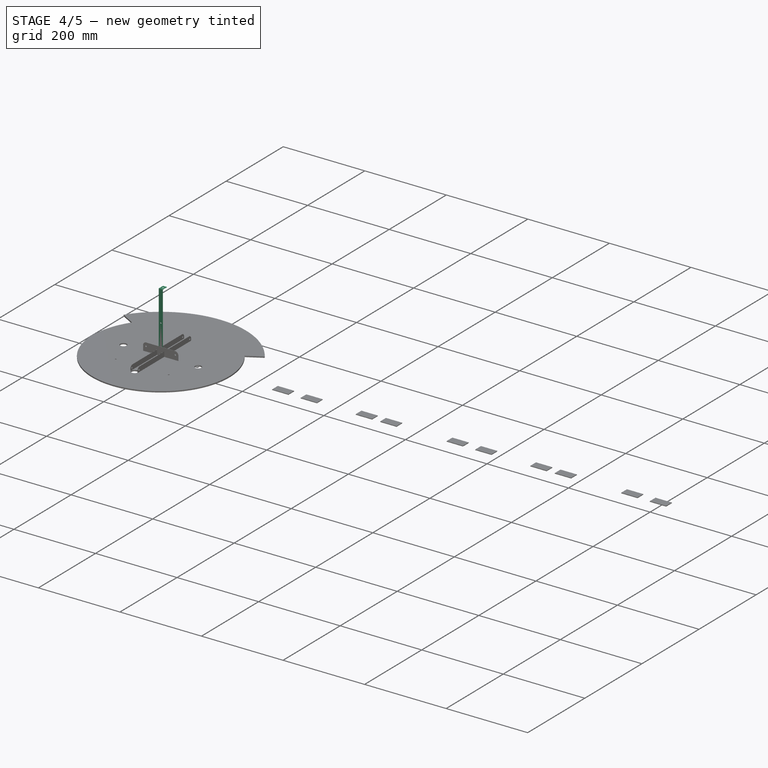
[diagram: stage 4 of 5 — iso view after this stage's code; geometry added in this stage tinted green]
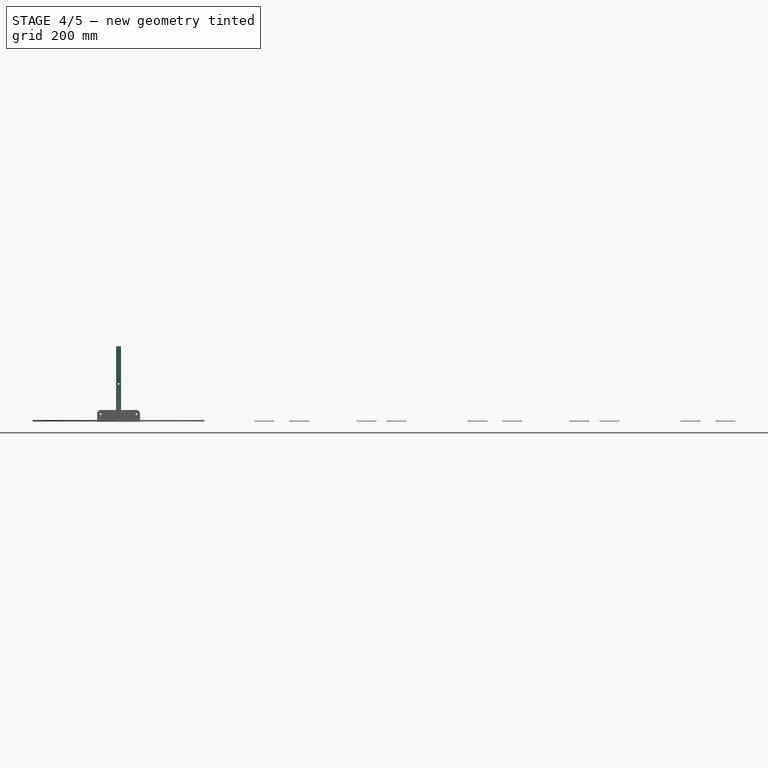
[diagram: stage 4 of 5 — front view after this stage's code; geometry added in this stage tinted green]
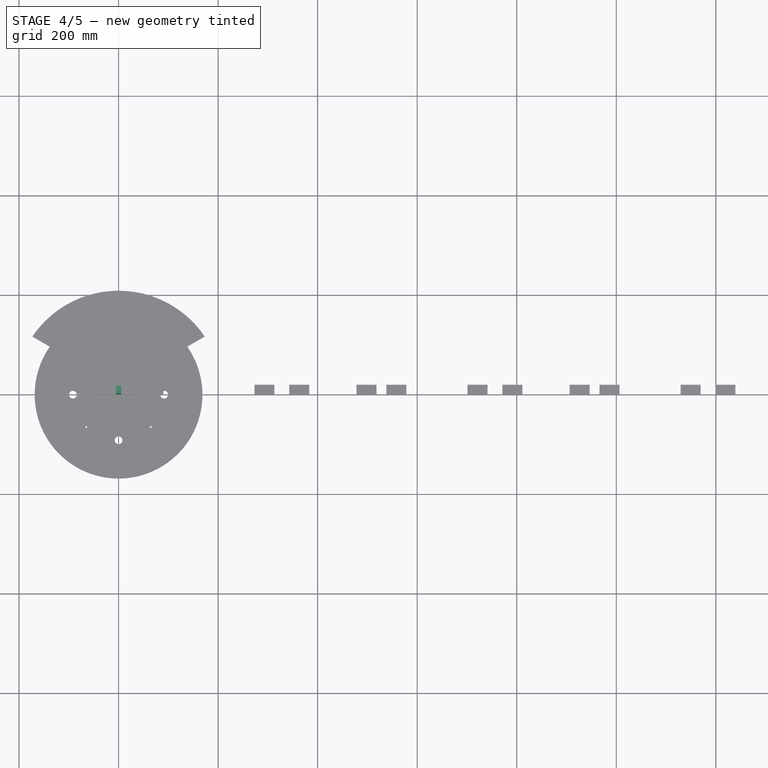
[diagram: stage 4 of 5 — top view after this stage's code; geometry added in this stage tinted green]
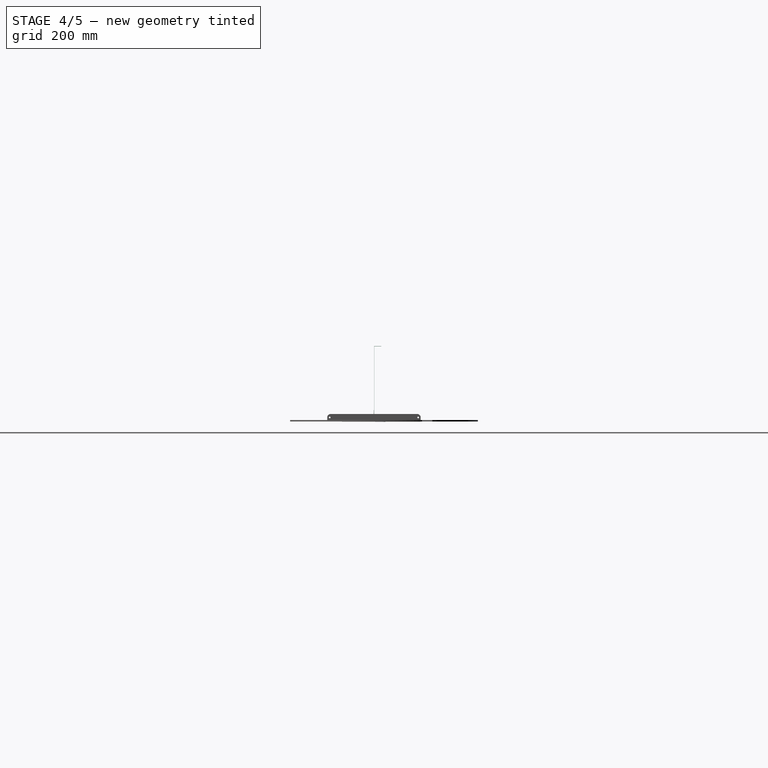
[diagram: stage 4 of 5 — right view after this stage's code; geometry added in this stage tinted green]
FEATURE [PartDesign::CoordinateSystem] LCS_Origin
  AttacherType = Attacher::AttachEngine3D
  MapMode = 2
  Support = -> [X_Axis012]
FEATURE [App::DocumentObjectGroup] Constraints
FEATURE [App::FeaturePython] Variables  # WARN: FeaturePython — macro-defined, semantics opaque (R4)
  Type = App::PropertyContainer
FEATURE [App::DocumentObjectGroup] Configurations
FEATURE [PartDesign::CoordinateSystem] Local_CS008
  AttacherType = Attacher::AttachEngine3D
  MapMode = 5
  Support = -> [XY_Plane001]
FEATURE [App::Link] Body001001
  AssemblyType = Part::Link
  AttachedBy = #Local_CS008
  AttachedTo = Parent Assembly#LCS_Origin
  LinkedObject = -> Body001
  SolverId = Asm4EE
FEATURE [App::Link] Body001003001
  AssemblyType = Part::Link
  AttachedBy = #Local_CS009
  AttachedTo = Body001001#Local_CS038
  AttachmentOffset = pos=(0,0,0) rot=(0.58,0.58,-0.58;2.0944rad)
  LinkPlacement = pos=(0,108.372,738) rot=(-0.707107,0,-0.707107;3.14159rad)
  LinkedObject = -> Body001003
  Placement = pos=(0,108.372,738) rot=(-0.707107,0,-0.707107;3.14159rad)
  SolverId = Asm4EE
FEATURE [PartDesign::Plane] DatumPlane009
  AttachmentOffset = pos=(0,0,-29) rot=(0,0,1;0rad)
  Length = 617.811
  MapMode = 14
  Placement = pos=(187.705,-91.6284,-3.2e-15) rot=(0.935113,-0.250563,-0.250563;1.63783rad)
  ResizeMode = 0
  Support = -> [Sketch003]
  Width = 924.443
FEATURE [PartDesign::PolarPattern] PolarPattern002
  Angle = 240
  Axis = -> Z_Axis001
  Occurrences = 2
  Reversed = true
FEATURE [PartDesign::CoordinateSystem] Local_CS011
  AttacherType = Attacher::AttachEngine3D
  AttachmentOffset = pos=(0,100,0) rot=(0,0,1;0rad)
  MapMode = 5
  Placement = pos=(0,108.372,0) rot=(0,0,1;0rad)
  Support = -> [Local_CS]
FEATURE [PartDesign::Plane] DatumPlane
  Length = 438.356
  MapMode = 4
  Placement = pos=(0,108.372,0) rot=(0.57735,0.57735,0.57735;2.0944rad)
  ResizeMode = 0
  Support = -> [Local_CS011]
  Width = 902.457
FEATURE [Sketcher::SketchObject] Sketch011
  AttachmentOffset = pos=(-88,277,0) rot=(0,0,1;0rad)
  FullyConstrained = true
  MapMode = 5
  Placement = pos=(0,20.3716,277) rot=(0.57735,0.57735,0.57735;2.0944rad)
  Support = -> [DatumPlane]
  sketch-geometry (1):
    g0: Circle CenterX=0 CenterY=0 CenterZ=0 NormalX=0 NormalY=0 NormalZ=1 AngleXU=0 Radius=1.7
  constraints (2):
    c: Coincident(g0,g-1)
    c: Diameter(g0) = 3.4
FEATURE [PartDesign::Plane] DatumPlane011
  AttachmentOffset = pos=(0,0,0) rot=(0,0,1;0.523599rad)
  Length = 589.355
  MapMode = 5
  Placement = pos=(0,0,0) rot=(0,0,1;0.523599rad)
  ResizeMode = 0
  Support = -> [XY_Plane001]
  Width = 574.61
FEATURE [PartDesign::Plane] DatumPlane013
  AttachmentOffset = pos=(0,0,0) rot=(0,-1,0;0.523599rad)
  Length = 617.811
  MapMode = 5
  Placement = pos=(0,0,0) rot=(0.935113,-0.250563,-0.250563;1.63783rad)
  ResizeMode = 0
  Support = -> [XZ_Plane001]
  Width = 924.443
FEATURE [PartDesign::Mirrored] Mirrored013
  MirrorPlane = -> DatumPlane013
FEATURE [PartDesign::Plane] DatumPlane014
  AttachmentOffset = pos=(0,0,0) rot=(0.447214,0.774597,-0.447214;1.82348rad)
  Length = 924.443
  MapMode = 5
  Placement = pos=(0,0,0) rot=(0.447214,0.774597,-0.447214;1.82348rad)
  ResizeMode = 0
  Support = -> [XY_Plane001]
  Width = 617.811
FEATURE [Sketcher::SketchObject] Sketch047
  FullyConstrained = true
  MapMode = 5
  Support = -> [XY_Plane015]
  sketch-geometry (8):
    g0: ArcOfCircle CenterX=0 CenterY=16.7432 CenterZ=0 NormalX=0 NormalY=0 NormalZ=1 AngleXU=0 Radius=60 StartAngle=0.539993 EndAngle=1.5708
    g1: ArcOfCircle CenterX=52.3205 CenterY=48.1051 CenterZ=0 NormalX=0 NormalY=0 NormalZ=1 AngleXU=0 Radius=1 StartAngle=3.68159 EndAngle=5.23599
    g2: LineSegment StartX=52.8205 StartY=47.2391 StartZ=0 EndX=172.274 EndY=116.206 EndZ=0
    g3: ArcOfCircle CenterX=171.774 CenterY=117.072 CenterZ=0 NormalX=0 NormalY=0 NormalZ=1 AngleXU=0 Radius=1 StartAngle=5.23599 EndAngle=6.88142
    g4: ArcOfCircle CenterX=0 CenterY=0 CenterZ=0 NormalX=0 NormalY=0 NormalZ=1 AngleXU=0 Radius=208.875 StartAngle=0.598232 EndAngle=1.5708
    g5: LineSegment StartX=3.7e-15 StartY=76.7432 StartZ=0 EndX=1.28e-14 EndY=208.875 EndZ=0
    g6: LineSegment StartX=52.8205 StartY=47.2391 StartZ=0 EndX=0 EndY=16.7432 EndZ=0
    g7: GeomPoint X=173.205 Y=116.743 Z=0
  constraints (22):
    c: PointOnObject(g0,g-2)
    c: PointOnObject(g4,g-2)
    c: Diameter(g1) = 2
    c: Diameter(g3) = 2
    c: Tangent(g1,g0) = 1.5708
    c: Tangent(g3,g2) = -1.5708
    c: Angle(g2,g-1) = 2.61799
    c: Coincident(g5,g0)
    c: Coincident(g5,g4)
    c: Tangent(g1,g2) = -1.5708
    c: Coincident(g6,g1)
    c: Tangent(g6,g2)
    c: Coincident(g6,g0)
    c: Diameter(g0) = 120
    c: PointOnObject(g7,g4)
    c: PointOnObject(g7,g2)
    c: DistanceY(g4) = 208.875
    c: Distance(g4,g0) = 16.7432  'major_r_offset'
    c: Coincident(g4,g-1)
    c: PointOnObject(g0,g-2)
    c: Distance(g0,g7) = 200
    c: Tangent(g3,g4) = -1.5708
FEATURE [PartDesign::Pad] Pad012
  Direction = (0,0,1)
  Length = 3
  Length2 = 10
  Profile = -> Sketch047
  ReferenceAxis = -> Sketch047 [N_Axis]
  Type = 0
FEATURE [Sketcher::SketchObject] Sketch049
  AttachmentOffset = pos=(0,195.697,0) rot=(0,0,1;0rad)
  FullyConstrained = true
  MapMode = 5
  Placement = pos=(0,195.697,0) rot=(0,0,1;0rad)
  Support = -> [XY_Plane016]
  sketch-geometry (9):
    g0: ArcOfCircle CenterX=-11.5 CenterY=8.0875 CenterZ=0 NormalX=0 NormalY=0 NormalZ=1 AngleXU=0 Radius=1.5875 StartAngle=1.5708 EndAngle=4.71239
    g1: LineSegment StartX=-11.5 StartY=6.5 StartZ=0 EndX=8.325 EndY=6.5 EndZ=0
    g2: LineSegment StartX=8.325 StartY=6.5 StartZ=0 EndX=8.325 EndY=0 EndZ=0
    g3: LineSegment StartX=8.325 StartY=0 StartZ=0 EndX=11.5 EndY=0 EndZ=0
    g4: LineSegment StartX=11.5 StartY=0 StartZ=0 EndX=11.5 EndY=6.5 EndZ=0
    g5: LineSegment StartX=-11.5 StartY=9.675 StartZ=0 EndX=8.325 EndY=9.675 EndZ=0
    g6: ArcOfCircle CenterX=8.325 CenterY=6.5 CenterZ=0 NormalX=0 NormalY=0 NormalZ=1 AngleXU=0 Radius=3.175 StartAngle=6e-16 EndAngle=1.5708
    g7: GeomPoint X=8.325 Y=-6.5 Z=0
    g8: GeomPoint X=8.325 Y=-9.675 Z=0
  constraints (21):
    c: Horizontal(g1)
    c: PointOnObject(g2,g-1)
    c: Vertical(g2)
    c: Coincident(g3,g2)
    c: PointOnObject(g3,g-1)
    c: Coincident(g4,g3)
    c: Vertical(g4)
    c: Horizontal(g5)
    c: Tangent(g6,g4) = -1.5708
    c: Tangent(g6,g5) = 1.5708
    c: DistanceX(g3) = 11.5
    c: Tangent(g1,g0) = -1.5708
    c: Tangent(g5,g0) = 1.5708
    c: Diameter(g0) = 3.175
    c: DistanceX(g0) = -11.5
    c: Coincident(g6,g2)
    c: Coincident(g2,g1)
    c: Symmetric(g7,g1,g2)
    c: DistanceY(g7,g1) = 13  'cut_width'
    c: Symmetric(g8,g5,g2)
    c: DistanceY(g8,g5) = 19.35  'total_width'
FEATURE [Sketcher::SketchObject] Sketch050
  AttachmentOffset = pos=(0,195.697,0) rot=(0,0,1;0rad)
  FullyConstrained = true
  MapMode = 5
  Placement = pos=(0,195.697,0) rot=(0,0,1;0rad)
  Support = -> [XY_Plane016]
  sketch-geometry (17):
    g0: LineSegment StartX=-11.5 StartY=-8.0875 StartZ=0 EndX=-11.5 EndY=8.0875 EndZ=0
    g1: ArcOfCircle CenterX=-11.5 CenterY=8.0875 CenterZ=0 NormalX=0 NormalY=0 NormalZ=1 AngleXU=0 Radius=1.5875 StartAngle=1.5708 EndAngle=4.71239
    g2: LineSegment StartX=-11.5 StartY=6.5 StartZ=0 EndX=8.325 EndY=6.5 EndZ=0
    g3: LineSegment StartX=8.325 StartY=6.5 StartZ=0 EndX=8.325 EndY=0 EndZ=0
    g4: LineSegment StartX=8.325 StartY=0 StartZ=0 EndX=11.5 EndY=0 EndZ=0
    g5: LineSegment StartX=11.5 StartY=0 StartZ=0 EndX=11.5 EndY=6.5 EndZ=0
    g6: LineSegment StartX=-11.5 StartY=9.675 StartZ=0 EndX=8.325 EndY=9.675 EndZ=0
    g7: ArcOfCircle CenterX=8.325 CenterY=6.5 CenterZ=0 NormalX=0 NormalY=0 NormalZ=1 AngleXU=0 Radius=3.175 StartAngle=1.83e-14 EndAngle=1.5708
    g8: GeomPoint X=8.325 Y=-6.5 Z=0
    g9: ArcOfCircle CenterX=-11.5 CenterY=11.5875 CenterZ=0 NormalX=0 NormalY=0 NormalZ=1 AngleXU=0 Radius=1.5875 StartAngle=1.5708 EndAngle=4.71239
    g10: LineSegment StartX=-11.5 StartY=10 StartZ=0 EndX=8.325 EndY=10 EndZ=0
    g11: LineSegment StartX=8.325 StartY=10 StartZ=0 EndX=8.325 EndY=0 EndZ=0
    g12: LineSegment StartX=8.325 StartY=0 StartZ=0 EndX=11.5 EndY=0 EndZ=0
    g13: LineSegment StartX=11.5 StartY=0 StartZ=0 EndX=11.5 EndY=10 EndZ=0
    g14: LineSegment StartX=-11.5 StartY=13.175 StartZ=0 EndX=8.325 EndY=13.175 EndZ=0
    g15: ArcOfCircle CenterX=8.325 CenterY=10 CenterZ=0 NormalX=0 NormalY=0 NormalZ=1 AngleXU=0 Radius=3.175 StartAngle=1.5915e-12 EndAngle=1.5708
    g16: GeomPoint X=8.325 Y=-10 Z=0
  constraints (40):
    c: Horizontal(g2)
    c: PointOnObject(g3,g-1)
    c: Vertical(g3)
    c: Coincident(g4,g3)
    c: PointOnObject(g4,g-1)
    c: Coincident(g5,g4)
    c: Vertical(g5)
    c: Horizontal(g6)
    c: Tangent(g7,g5) = -1.5708
    c: Tangent(g7,g6) = 1.5708
    c: DistanceX(g4) = 11.5
    c: Tangent(g2,g1) = -1.5708
    c: Tangent(g6,g1) = 1.5708
    c: Diameter(g1) = 3.175
    c: DistanceX(g1) = -11.5
    c: Coincident(g7,g3)
    c: Coincident(g3,g2)
    c: Symmetric(g8,g2,g3)
    c: DistanceY(g8,g2) = 13  'cut_width'
    c: Horizontal(g10)
    c: PointOnObject(g11,g-1)
    c: Vertical(g11)
    c: Coincident(g12,g11)
    c: PointOnObject(g12,g-1)
    c: Coincident(g13,g12)
    c: Vertical(g13)
    c: Horizontal(g14)
    c: Tangent(g15,g13) = -1.5708
    c: Tangent(g15,g14) = 1.5708
    c: DistanceX(g12) = 11.5
    c: Tangent(g10,g9) = -1.5708
    c: Tangent(g14,g9) = 1.5708
    c: Diameter(g9) = 3.175
    c: DistanceX(g9) = -11.5
    c: Coincident(g15,g11)
    c: Coincident(g11,g10)
    c: Symmetric(g16,g10,g11)
    c: DistanceY(g16,g10) = 20  'cut_width'
    c: Coincident(g0,g1)
    c: Symmetric(g0,g0,g-1)
FEATURE [PartDesign::CoordinateSystem] Local_CS017
  AttacherType = Attacher::AttachEngine3D
  AttachmentOffset = pos=(0,0,3) rot=(0,0,1;0rad)
  MapMode = 5
  Placement = pos=(0,0,3) rot=(0,0,1;0rad)
  Support = -> [XY_Plane016]
FEATURE [App::Link] Body001003005003002
  AssemblyType = Part::Link
  AttachedBy = #Local_CS017
  AttachedTo = Parent Assembly#LCS_Origin
  AttachmentOffset = pos=(0,0,-3) rot=(0,1,0;3.14159rad)
  LinkPlacement = pos=(-4e-16,0,0) rot=(0,1,0;3.14159rad)
  LinkedObject = -> Body001003005003
  Placement = pos=(-4e-16,0,0) rot=(0,1,0;3.14159rad)
  SolverId = Asm4EE
FEATURE [PartDesign::SubShapeBinder] Binder004
  AttacherType = Attacher::AttachEngine3D
  AttachmentOffset = pos=(0,195.697,0) rot=(0,0,1;3.14159rad)
  BindCopyOnChange = 0
  BindMode = 0
  ClaimChildren = false
  Context = -> Model [Body001003005003002.Binder004.]
  Fuse = false
  MakeFace = true
  MapMode = 5
  OffsetFill = false
  OffsetIntersection = false
  OffsetJoinType = 0
  OffsetOpenResult = false
  PartialLoad = false
  Placement = pos=(0,179.522,0) rot=(0,0,1;3.14159rad)
  Relative = false
  _Version = 2
FEATURE [PartDesign::Plane] DatumPlane017
  Length = 60
  MapMode = 3
  Placement = pos=(0,179.522,0) rot=(0,0.707107,0.707107;3.14159rad)
  ResizeMode = 0
  Support = -> [Binder004]
  Width = 60
FEATURE [Sketcher::SketchObject] Sketch051
  AttachmentOffset = pos=(0,179.522,0) rot=(0,0,1;0rad)
  FullyConstrained = true
  MapMode = 5
  Placement = pos=(0,179.522,0) rot=(0,0,1;0rad)
  Support = -> [XY_Plane016]
  sketch-geometry (9):
    g0: ArcOfCircle CenterX=-11.5 CenterY=8.0875 CenterZ=0 NormalX=0 NormalY=0 NormalZ=1 AngleXU=0 Radius=1.5875 StartAngle=1.5708 EndAngle=4.71239
    g1: LineSegment StartX=-11.5 StartY=6.5 StartZ=0 EndX=8.325 EndY=6.5 EndZ=0
    g2: LineSegment StartX=8.325 StartY=6.5 StartZ=0 EndX=8.325 EndY=0 EndZ=0
    g3: LineSegment StartX=8.325 StartY=0 StartZ=0 EndX=11.5 EndY=0 EndZ=0
    g4: LineSegment StartX=11.5 StartY=0 StartZ=0 EndX=11.5 EndY=6.5 EndZ=0
    g5: LineSegment StartX=-11.5 StartY=9.675 StartZ=0 EndX=8.325 EndY=9.675 EndZ=0
    g6: ArcOfCircle CenterX=8.325 CenterY=6.5 CenterZ=0 NormalX=0 NormalY=0 NormalZ=1 AngleXU=0 Radius=3.175 StartAngle=0 EndAngle=1.5708
    g7: GeomPoint X=8.325 Y=-6.5 Z=0
    g8: LineSegment StartX=11.5 StartY=8.0875 StartZ=0 EndX=11.5 EndY=-8.0875 EndZ=0
  constraints (22):
    c: Horizontal(g1)
    c: PointOnObject(g2,g-1)
    c: Vertical(g2)
    c: Coincident(g3,g2)
    c: PointOnObject(g3,g-1)
    c: Coincident(g4,g3)
    c: Vertical(g4)
    c: Horizontal(g5)
    c: Tangent(g6,g4) = -1.5708
    c: Tangent(g6,g5) = 1.5708
    c: DistanceX(g3) = 11.5
    c: Tangent(g1,g0) = -1.5708
    c: Tangent(g5,g0) = 1.5708
    c: Diameter(g0) = 3.175
    c: DistanceX(g0) = -11.5
    c: Coincident(g6,g2)
    c: Coincident(g2,g1)
    c: Symmetric(g7,g1,g2)
    c: DistanceY(g7,g1) = 13  'cut_width'
    c: Vertical(g8)
    c: Symmetric(g0,g8,g-1)
    c: Horizontal(g8,g0)
FEATURE [Sketcher::SketchObject] Sketch052
  FullyConstrained = true
  MapMode = 5
  Support = -> [XY_Plane017]
  sketch-geometry (6):
    g0: ArcOfCircle CenterX=0 CenterY=0 CenterZ=0 NormalX=0 NormalY=0 NormalZ=1 AngleXU=0 Radius=198.875 StartAngle=0.69333 EndAngle=1.5708
    g1: ArcOfCircle CenterX=0 CenterY=0 CenterZ=0 NormalX=0 NormalY=0 NormalZ=1 AngleXU=0 Radius=208.875 StartAngle=0.69333 EndAngle=1.5708
    g2: ArcOfCircle CenterX=156.805 CenterY=130.297 CenterZ=0 NormalX=0 NormalY=0 NormalZ=1 AngleXU=0 Radius=5 StartAngle=3.83492 EndAngle=6.97652
    g3: LineSegment StartX=1.22e-14 StartY=198.875 StartZ=0 EndX=1.28e-14 EndY=208.875 EndZ=0
    g4: ArcOfCircle CenterX=0 CenterY=0 CenterZ=0 NormalX=0 NormalY=0 NormalZ=1 AngleXU=0 Radius=203.875 StartAngle=0.668805 EndAngle=1.5708
    g5: LineSegment StartX=0 StartY=0 StartZ=0 EndX=176.561 EndY=101.938 EndZ=0
  constraints (18):
    c: Coincident(g0,g-1)
    c: PointOnObject(g0,g-2)
    c: Coincident(g1,g0)
    c: PointOnObject(g1,g-2)
    c: Coincident(g3,g1)
    c: DistanceY(g1) = 208.875  'r'
    c: DistanceY(g0,g1) = 10  'width'
    c: Tangent(g2,g0) = 1.5708
    c: Tangent(g2,g1) = -1.5708
    c: Coincident(g4,g0)
    c: PointOnObject(g4,g2)
    c: Coincident(g5,g0)
    c: Angle(g-1,g5) = 0.523599
    c: Distance(g4,g5) = 29.5
    c: Coincident(g3,g0)
    c: PointOnObject(g2,g4)
    c: PointOnObject(g4,g-2)
    c: PointOnObject(g5,g4)
FEATURE [PartDesign::Pad] Pad014
  Direction = (0,0,1)
  Length = 3
  Length2 = 10
  Profile = -> Sketch052
  ReferenceAxis = -> Sketch052 [N_Axis]
  Type = 0
FEATURE [PartDesign::CoordinateSystem] Local_CS018
  AttacherType = Attacher::AttachEngine3D
  MapMode = 5
  Support = -> [XY_Plane017]
FEATURE [PartDesign::CoordinateSystem] Local_CS019
  AttacherType = Attacher::AttachEngine3D
  MapMode = 5
  Support = -> [XY_Plane018]
FEATURE [Sketcher::SketchObject] Sketch055
  FullyConstrained = true
  MapMode = 5
  Support = -> [XY_Plane017]
  sketch-geometry (9):
    g0: ArcOfCircle CenterX=0 CenterY=0 CenterZ=0 NormalX=0 NormalY=0 NormalZ=1 AngleXU=0 Radius=198.875 StartAngle=0.69333 EndAngle=1.5708
    g1: ArcOfCircle CenterX=0 CenterY=0 CenterZ=0 NormalX=0 NormalY=0 NormalZ=1 AngleXU=0 Radius=208.875 StartAngle=0.69333 EndAngle=1.5708
    g2: ArcOfCircle CenterX=156.805 CenterY=130.297 CenterZ=0 NormalX=0 NormalY=0 NormalZ=1 AngleXU=0 Radius=5 StartAngle=3.83492 EndAngle=6.97652
    g3: LineSegment StartX=1.22e-14 StartY=198.875 StartZ=0 EndX=1.28e-14 EndY=208.875 EndZ=0
    g4: ArcOfCircle CenterX=0 CenterY=0 CenterZ=0 NormalX=0 NormalY=0 NormalZ=1 AngleXU=0 Radius=203.875 StartAngle=0.668805 EndAngle=1.5708
    g5: LineSegment StartX=0 StartY=0 StartZ=0 EndX=176.561 EndY=101.938 EndZ=0
    g6: LineSegment StartX=1.22e-14 StartY=202.175 StartZ=0 EndX=1.3e-14 EndY=205.575 EndZ=0
    g7: ArcOfCircle CenterX=1.25e-14 CenterY=203.875 CenterZ=0 NormalX=0 NormalY=0 NormalZ=1 AngleXU=0 Radius=1.7 StartAngle=4.71239 EndAngle=7.85398
    g8: Circle CenterX=143.11 CenterY=145.206 CenterZ=0 NormalX=0 NormalY=0 NormalZ=1 AngleXU=0 Radius=1.7
  constraints (27):
    c: Coincident(g0,g-1)
    c: PointOnObject(g0,g-2)
    c: Coincident(g1,g0)
    c: PointOnObject(g1,g-2)
    c: Coincident(g3,g1)
    c: DistanceY(g1) = 208.875  'r'
    c: DistanceY(g0,g1) = 10  'width'
    c: Tangent(g2,g0) = 1.5708
    c: Tangent(g2,g1) = -1.5708
    c: Coincident(g4,g0)
    c: PointOnObject(g4,g2)
    c: Coincident(g5,g0)
    c: Angle(g-1,g5) = 0.523599
    c: Distance(g4,g5) = 29.5
    c: Coincident(g3,g0)
    c: PointOnObject(g2,g4)
    c: PointOnObject(g4,g-2)
    c: PointOnObject(g5,g4)
    c: PointOnObject(g6,g3)
    c: PointOnObject(g6,g3)
    c: Coincident(g7,g4)
    c: Coincident(g7,g6)
    c: Coincident(g7,g6)
    c: PointOnObject(g8,g4)
    c: Equal(g8,g7)
    c: Diameter(g7) = 3.4
    c: DistanceX(g8) = 143.11
FEATURE [PartDesign::Pocket] Pocket019
  BaseFeature = -> Pad014
  Direction = (0,0,-1)
  Length = 5
  Length2 = 5
  Midplane = true
  Profile = -> Sketch055
  ReferenceAxis = -> Sketch055 [N_Axis]
  Type = 1
FEATURE [PartDesign::Mirrored] Mirrored019
  BaseFeature = -> Pocket019
  MirrorPlane = -> Sketch052 [V_Axis]
  Originals = -> [Pad014,Pocket019]
FEATURE [Sketcher::SketchObject] Sketch076
  FullyConstrained = true
  MapMode = 5
  Support = -> [XY_Plane025]
  sketch-geometry (1):
    g0: Circle CenterX=0 CenterY=0 CenterZ=0 NormalX=0 NormalY=0 NormalZ=1 AngleXU=0 Radius=168.5
  constraints (2):
    c: Coincident(g0,g-1)
    c: Diameter(g0) = 337
FEATURE [PartDesign::Pad] Pad020
  Direction = (0,0,1)
  Length = 3
  Length2 = 10
  Profile = -> Sketch076
  ReferenceAxis = -> Sketch076 [N_Axis]
  Type = 0
FEATURE [Sketcher::SketchObject] Sketch078
  FullyConstrained = true
  MapMode = 5
  Placement = pos=(0,0,0) rot=(1,0,0;1.5708rad)
  Support = -> [XZ_Plane025]
FEATURE [Sketcher::SketchObject] Sketch079
  FullyConstrained = true
  MapMode = 5
  Placement = pos=(0,0,0) rot=(0.57735,0.57735,0.57735;2.0944rad)
  Support = -> [YZ_Plane025]
  sketch-geometry (3):
    g0: LineSegment StartX=15 StartY=0 StartZ=0 EndX=0 EndY=0 EndZ=0
    g1: LineSegment StartX=0 StartY=0 StartZ=0 EndX=0 EndY=157 EndZ=0
    g2: LineSegment StartX=0 StartY=157 StartZ=0 EndX=15 EndY=157 EndZ=0
  constraints (9):
    c: PointOnObject(g0,g-1)
    c: Coincident(g0,g-1)
    c: Coincident(g1,g0)
    c: PointOnObject(g1,g-2)
    c: Coincident(g2,g1)
    c: Horizontal(g2)
    c: DistanceX(g0,g0) = 15
    c: Vertical(g0,g2)
    c: DistanceY(g1) = 157
FEATURE [PartDesign::FeaturePython] BaseBend  # WARN: FeaturePython — macro-defined, semantics opaque (R4)
  BendSide = 0
  BendSketch = -> Sketch079
  MidPlane = true
  Reverse = false
  length = 15
  radius = 2
  thickness = 1
FEATURE [Sketcher::SketchObject] Sketch080
  AttachmentOffset = pos=(0,7.5,0) rot=(0,0,1;0rad)
  FullyConstrained = true
  MapMode = 5
  Placement = pos=(0,7.5,0) rot=(0,0,1;0rad)
  Support = -> [XY_Plane026]
  sketch-geometry (1):
    g0: Circle CenterX=0 CenterY=0 CenterZ=0 NormalX=0 NormalY=0 NormalZ=1 AngleXU=0 Radius=1.65
  constraints (3):
    c: PointOnObject(g0,g-2)
    c: Diameter(g0) = 3.3
    c: DistanceY(g0) = 0
FEATURE [PartDesign::Pocket] Pocket039
  BaseFeature = -> BaseBend
  Direction = (0,0,-1)
  Length = 5
  Length2 = 5
  Profile = -> Sketch080
  ReferenceAxis = -> Sketch080 [N_Axis]
  Reversed = true
  Type = 1
FEATURE [Sketcher::SketchObject] Sketch081
  FullyConstrained = true
  MapMode = 5
  Support = -> [XY_Plane026]
  sketch-geometry (3):
    g0: ArcOfCircle CenterX=4.5 CenterY=12 CenterZ=0 NormalX=0 NormalY=0 NormalZ=1 AngleXU=0 Radius=3 StartAngle=1e-16 EndAngle=1.57079
    g1: LineSegment StartX=4.50001 StartY=15 StartZ=0 EndX=7.5 EndY=15 EndZ=0
    g2: LineSegment StartX=7.5 StartY=12 StartZ=0 EndX=7.5 EndY=15 EndZ=0
  constraints (9):
    c: Diameter(g0) = 6
    c: Coincident(g1,g0)
    c: Tangent(g1,g0)
    c: Coincident(g2,g1)
    c: Vertical(g2)
    c: Horizontal(g1)
    c: DistanceX(g1) = 7.5
    c: DistanceY(g1) = 15
    c: Tangent(g2,g0) = -1.5708
FEATURE [PartDesign::Pocket] Pocket040
  BaseFeature = -> Pocket039
  Direction = (0,0,-1)
  Length = 5
  Length2 = 5
  Midplane = true
  Profile = -> Sketch081
  ReferenceAxis = -> Sketch081 [N_Axis]
  Type = 1
FEATURE [PartDesign::Mirrored] Mirrored028
  BaseFeature = -> Pocket040
  MirrorPlane = -> Sketch081 [V_Axis]
  Originals = -> [Pocket040]
FEATURE [Sketcher::SketchObject] Sketch086
  AttachmentOffset = pos=(43,23,0) rot=(0,0,1;0rad)
  FullyConstrained = true
  MapMode = 5
  Placement = pos=(43,23,0) rot=(0,0,1;0rad)
  Support = -> [XY_Plane029]
  sketch-geometry (3):
    g0: ArcOfCircle CenterX=-7.5 CenterY=-7.5 CenterZ=0 NormalX=0 NormalY=0 NormalZ=1 AngleXU=0 Radius=7.5 StartAngle=0 EndAngle=1.5708
    g1: LineSegment StartX=0 StartY=-7.5 StartZ=0 EndX=0 EndY=0 EndZ=0
    g2: LineSegment StartX=0 StartY=0 StartZ=0 EndX=-7.50003 EndY=-6.21876e-11 EndZ=0
  constraints (8):
    c: PointOnObject(g0,g-2)
    c: PointOnObject(g0,g-1)
    c: Coincident(g1,g-1)
    c: Coincident(g2,g1)
    c: Coincident(g2,g0)
    c: Tangent(g2,g0)
    c: Tangent(g1,g0) = -1.5708
    c: Diameter(g0) = 15
FEATURE [PartDesign::Pocket] Pocket047
  BaseFeature = -> BaseBend002
  Direction = (0,0,-1)
  Length = 5
  Length2 = 5
  Midplane = true
  Profile = -> Sketch086
  ReferenceAxis = -> Sketch086 [N_Axis]
  Type = 1
FEATURE [PartDesign::Mirrored] Mirrored032
  MirrorPlane = -> YZ_Plane028
FEATURE [PartDesign::PolarPattern] PolarPattern010
  Angle = 90
  Axis = -> X_Axis028
  Occurrences = 2
FEATURE [PartDesign::MultiTransform] MultiTransform011
  BaseFeature = -> Pocket047
  Originals = -> [Pocket047]
  Transformations = -> [Mirrored032,PolarPattern010]
FEATURE [Sketcher::SketchObject] Sketch087
  AttachmentOffset = pos=(0,14.5,0) rot=(0,0,1;0rad)
  FullyConstrained = true
  MapMode = 5
  Placement = pos=(0,14.5,0) rot=(0,0,1;0rad)
  Support = -> [XY_Plane029]
  sketch-geometry (2):
    g0: Circle CenterX=36 CenterY=0 CenterZ=0 NormalX=0 NormalY=0 NormalZ=1 AngleXU=0 Radius=1.7
    g1: Circle CenterX=-36 CenterY=0 CenterZ=0 NormalX=0 NormalY=0 NormalZ=1 AngleXU=0 Radius=1.7
  constraints (5):
    c: PointOnObject(g0,g-1)
    c: Symmetric(g1,g0,g-1)
    c: Equal(g0,g1)
    c: Diameter(g0) = 3.4
    c: DistanceX(g1,g0) = 72
FEATURE [PartDesign::Pocket] Pocket048
  BaseFeature = -> MultiTransform011
  Direction = (0,0,-1)
  Length = 5
  Length2 = 5
  Midplane = true
  Profile = -> Sketch087
  ReferenceAxis = -> Sketch087 [N_Axis]
  Type = 1
FEATURE [PartDesign::PolarPattern] PolarPattern011
  Angle = 90
  Axis = -> X_Axis028
  BaseFeature = -> Pocket048
  Occurrences = 2
  Originals = -> [Pocket048]
FEATURE [PartDesign::Body] Body_4  label="vodostok_s_material_0.30ansi"
  Group = -> [LCS_0002,Sketch094,Sketch095,Pad025,Sketch096,Sketch097,Pocket054,Pocket055,Fold009]
  Origin = -> Origin032
  Tip = -> Fold009
FEATURE [PartDesign::CoordinateSystem] Local_CS032
  AttacherType = Attacher::AttachEngine3D
  AttachmentOffset = pos=(0,0,72) rot=(0.58,0.58,0.58;2.0944rad)
  MapMode = 5
  Placement = pos=(0,108.372,229) rot=(0.57735,0.57735,0.57735;2.0944rad)
  Support = -> [Local_CS023]
FEATURE [PartDesign::CoordinateSystem] LCS_0004
  AttacherType = Attacher::AttachEngine3D
  MapMode = 2
  Support = -> [X_Axis034]
FEATURE [Sketcher::SketchObject] Sketch101
  FullyConstrained = false
  MapMode = 5
  Support = -> [XY_Plane035]
  sketch-geometry (12):
    g0: LineSegment StartX=1.06e-14 StartY=173.684 StartZ=0 EndX=1.21e-14 EndY=196.875 EndZ=0
    g1: LineSegment StartX=0 StartY=0 StartZ=0 EndX=170.499 EndY=98.4377 EndZ=0
    g2: ArcOfCircle CenterX=0 CenterY=0 CenterZ=0 NormalX=0 NormalY=0 NormalZ=1 AngleXU=0 Radius=173.684 StartAngle=0.625357 EndAngle=1.5708
    g3: ArcOfCircle CenterX=0 CenterY=0 CenterZ=0 NormalX=0 NormalY=0 NormalZ=1 AngleXU=0 Radius=196.875 StartAngle=0.763183 EndAngle=1.5708
    g4: LineSegment StartX=142.27 StartY=136.085 StartZ=0 EndX=150.91 EndY=127.052 EndZ=0
    g5: LineSegment StartX=150.91 StartY=127.052 StartZ=0 EndX=159.551 EndY=118.019 EndZ=0
    g6: LineSegment StartX=146.574 StartY=122.905 StartZ=0 EndX=150.91 EndY=127.052 EndZ=0
    g7: LineSegment StartX=150.91 StartY=127.052 StartZ=0 EndX=158.859 EndY=118.742 EndZ=0
    g8: ArcOfCircle CenterX=158.137 CenterY=118.051 CenterZ=0 NormalX=0 NormalY=0 NormalZ=1 AngleXU=0 Radius=1 StartAngle=5.47557 EndAngle=7.04637
    g9: LineSegment StartX=158.828 StartY=117.328 StartZ=0 EndX=142.317 EndY=101.535 EndZ=0
    g10: ArcOfCircle CenterX=141.626 CenterY=102.258 CenterZ=0 NormalX=0 NormalY=0 NormalZ=1 AngleXU=0 Radius=1 StartAngle=3.76695 EndAngle=5.47557
    g11: GeomPoint X=141.485 Y=100.739 Z=0
  constraints (31):
    c: PointOnObject(g0,g-2)
    c: PointOnObject(g0,g-2)
    c: Coincident(g2,g0)
    c: Coincident(g3,g0)
    c: Angle(g-1,g1) = 0.523599
    c: DistanceY(g0) = 196.875  'r'
    c: Coincident(g2,g-1)
    c: Coincident(g2,g1)
    c: Coincident(g5,g4)
    c: Parallel(g4,g5)
    c: Equal(g4,g5)
    c: Tangent(g4,g3) = 1.5708
    c: Coincident(g6,g4)
    c: Perpendicular(g6,g4)
    c: Distance(g5,g3) = 25
    c: Coincident(g3,g2)
    c: Coincident(g7,g4)
    c: PointOnObject(g7,g5)
    c: PointOnObject(g5,g9)
    c: Tangent(g9,g8) = 1.5708
    c: Perpendicular(g5,g9)
    c: Tangent(g10,g9) = 1.5708
    c: Tangent(g10,g2) = 1.5708
    c: Equal(g10,g8)
    c: Diameter(g10) = 2
    c: Tangent(g8,g7) = 1.5708
    c: PointOnObject(g11,g9)
    c: PointOnObject(g11,g2)
    c: Distance(g11,g5) = 25
    c: DistanceY(g0,g0) = 23.1913
    c: Distance(g6) = 6
FEATURE [PartDesign::Pad] Pad026
  Direction = (0,0,1)
  Length = 3
  Length2 = 10
  Profile = -> Sketch101
  ReferenceAxis = -> Sketch101 [N_Axis]
  Type = 0
FEATURE [PartDesign::CoordinateSystem] LCS_0007
  AttacherType = Attacher::AttachEngine3D
  MapMode = 2
  Support = -> [X_Axis038]
FEATURE [Sketcher::SketchObject] Sketch122
  FullyConstrained = true
  MapMode = 5
  Placement = pos=(0,0,0) rot=(0.57735,0.57735,0.57735;2.0944rad)
  Support = -> [YZ_Plane038]
  sketch-geometry (4):
    g0: LineSegment StartX=0 StartY=0 StartZ=0 EndX=15 EndY=0 EndZ=0
    g1: LineSegment StartX=15 StartY=0 StartZ=0 EndX=15 EndY=151 EndZ=0
    g2: LineSegment StartX=15 StartY=151 StartZ=0 EndX=0 EndY=151 EndZ=0
    g3: LineSegment StartX=0 StartY=151 StartZ=0 EndX=0 EndY=0 EndZ=0
  constraints (11):
    c: Coincident(g0,g1)
    c: Coincident(g1,g2)
    c: Coincident(g2,g3)
    c: Coincident(g3,g0)
    c: Horizontal(g0)
    c: Horizontal(g2)
    c: Vertical(g1)
    c: Vertical(g3)
    c: Coincident(g0,g-1)
    c: DistanceY(g2) = 151  'height'
    c: DistanceX(g0,g0) = 15  'length'
FEATURE [PartDesign::FeaturePython] BaseBend009  # WARN: FeaturePython — macro-defined, semantics opaque (R4)
  BendSide = 1
  BendSketch = -> Sketch122
  MidPlane = true
  Reverse = false
  length = 10
  radius = 0.1
  thickness = 0.3
FEATURE [Sketcher::SketchObject] Sketch123
  FullyConstrained = true
  MapMode = 5
  Support = -> [XY_Plane039]
  sketch-geometry (3):
    g0: Circle CenterX=0 CenterY=7.5 CenterZ=0 NormalX=0 NormalY=0 NormalZ=1 AngleXU=0 Radius=1.7
    g1: LineSegment StartX=0 StartY=0 StartZ=0 EndX=0 EndY=7.5 EndZ=0
    g2: LineSegment StartX=0 StartY=7.5 StartZ=0 EndX=0 EndY=15 EndZ=0
  constraints (8):
    c: PointOnObject(g0,g-2)
    c: Diameter(g0) = 3.4
    c: Coincident(g1,g-1)
    c: Coincident(g1,g0)
    c: Coincident(g2,g0)
    c: PointOnObject(g2,g-2)
    c: Equal(g2,g1)
    c: DistanceY(g2) = 15
FEATURE [PartDesign::Pocket] Pocket076
  BaseFeature = -> BaseBend009
  Direction = (0,0,-1)
  Length = 5
  Length2 = 5
  Midplane = true
  Profile = -> Sketch123
  ReferenceAxis = -> Sketch123 [N_Axis]
  Type = 1
FEATURE [Sketcher::SketchObject] Sketch124
  FullyConstrained = true
  MapMode = 5
  Placement = pos=(0,0,0) rot=(1,0,0;1.5708rad)
  Support = -> [XZ_Plane038]
  sketch-geometry (2):
    g0: Circle CenterX=0 CenterY=75.5 CenterZ=0 NormalX=0 NormalY=0 NormalZ=1 AngleXU=0 Radius=1.7
    g1: GeomPoint X=0 Y=151 Z=0
  constraints (4):
    c: PointOnObject(g0,g-2)
    c: DistanceY(g1) = 151
    c: Symmetric(g1,g-1,g0)
    c: Diameter(g0) = 3.4
FEATURE [PartDesign::Pocket] Pocket077
  BaseFeature = -> Pocket076
  Direction = (0,1,2e-16)
  Length = 5
  Length2 = 5
  Midplane = true
  Profile = -> Sketch124
  ReferenceAxis = -> Sketch124 [N_Axis]
  Type = 1
FEATURE [PartDesign::Body] tech_mid  label="tech_mid_material_0.50ansi"
  Group = -> [LCS_0007,Sketch122,BaseBend009,Sketch123,Pocket076,Sketch124,Pocket077]
  Origin = -> Origin038
  Tip = -> Pocket077
FEATURE [PartDesign::SubShapeBinder] Binder039
  BindCopyOnChange = 0
  BindMode = 0
  ClaimChildren = false
  Context = -> Body_6 [Binder039.]
  Fuse = false
  MakeFace = true
  OffsetFill = false
  OffsetIntersection = false
  OffsetJoinType = 0
  OffsetOpenResult = false
  PartialLoad = false
  Relative = true
  Support = -> [Body001003005003014[Binder038.]]
  _Version = 2
FEATURE [PartDesign::Pocket] Pocket058
  BaseFeature = -> Pad026
  Direction = (0,0,-1)
  Length = 5
  Length2 = 5
  Midplane = true
  Profile = -> Binder039
  Type = 1
FEATURE [PartDesign::Mirrored] Mirrored037
  BaseFeature = -> Pocket058
  MirrorPlane = -> Sketch101 [V_Axis]
  Originals = -> [Pad026,Pocket058]
  Refine = true
FEATURE [PartDesign::CoordinateSystem] Local_CS042
  AttacherType = Attacher::AttachEngine3D
  AttachmentOffset = pos=(0,0,0) rot=(0,0,1;2.0944rad)
  MapMode = 5
  Placement = pos=(0,0,0) rot=(0,0,1;2.0944rad)
  Support = -> [XY_Plane001]
FEATURE [PartDesign::CoordinateSystem] Local_CS012
  AttacherType = Attacher::AttachEngine3D
  AttachmentOffset = pos=(14.5,119.5,157) rot=(0,0,1;4.71239rad)
  MapMode = 5
  Placement = pos=(-110.74,-47.1926,157) rot=(0,0,-1;5.75959rad)
  Support = -> [Local_CS042]
FEATURE [Sketcher::SketchObject] Sketch043
  AttachmentOffset = pos=(0,14,0) rot=(0,0,1;0rad)
  FullyConstrained = true
  MapMode = 5
  Placement = pos=(-117.74,-35.0683,157) rot=(0,0,1;0.523599rad)
  Support = -> [Local_CS012]
  sketch-geometry (1):
    g0: Circle CenterX=0 CenterY=16 CenterZ=0 NormalX=0 NormalY=0 NormalZ=1 AngleXU=0 Radius=1.7
  constraints (3):
    c: Diameter(g0) = 3.4
    c: DistanceY(g0) = 16
    c: PointOnObject(g0,g-2)
FEATURE [PartDesign::Plane] DatumPlane012
  Length = 589.355
  MapMode = 5
  Placement = pos=(-110.74,-47.1926,157) rot=(0,0,1;0.523599rad)
  ResizeMode = 0
  Support = -> [Local_CS012]
  Width = 574.61
FEATURE [PartDesign::SubShapeBinder] Binder041
  BindCopyOnChange = 0
  BindMode = 0
  ClaimChildren = false
  Context = -> Model [Body001003005002.Binder041.]
  Fuse = false
  MakeFace = true
  OffsetFill = false
  OffsetIntersection = false
  OffsetJoinType = 0
  OffsetOpenResult = false
  PartialLoad = false
  Relative = false
  Support = -> [Body001003005003013[Pocket041.Sketch083.]]
  _Version = 2
FEATURE [PartDesign::SubShapeBinder] Binder042
  BindCopyOnChange = 0
  BindMode = 0
  ClaimChildren = false
  Context = -> Model [Body001003005002.Binder042.]
  Fuse = false
  MakeFace = true
  OffsetFill = false
  OffsetIntersection = false
  OffsetJoinType = 0
  OffsetOpenResult = false
  PartialLoad = false
  Relative = false
  Support = -> [Body001003005003013[Pocket042.Sketch084.]]
  _Version = 2
FEATURE [PartDesign::SubShapeBinder] Binder043
  BindCopyOnChange = 0
  BindMode = 0
  ClaimChildren = false
  Context = -> Model [Body001003005002.Binder043.]
  Fuse = false
  MakeFace = true
  OffsetFill = false
  OffsetIntersection = false
  OffsetJoinType = 0
  OffsetOpenResult = false
  PartialLoad = false
  Placement = pos=(89.24,84.4317,0) rot=(0,0,1;0.523599rad)
  Relative = false
  Support = -> [Body001[Sketch043.]]
  _Version = 2
FEATURE [PartDesign::CoordinateSystem] Local_CS043
  AttacherType = Attacher::AttachEngine3D
  AttachmentOffset = pos=(119.5,28.5,0) rot=(0,0,1;0rad)
  MapMode = 5
  Placement = pos=(89.24,84.4317,0) rot=(0,0,1;0.523599rad)
  Support = -> [Local_CS016]
FEATURE [PartDesign::Pocket] Pocket086
  BaseFeature = -> Pad012
  Direction = (0,0,-1)
  Length = 5
  Length2 = 5
  Midplane = true
  Profile = -> Binder043
  Type = 1
FEATURE [PartDesign::SubShapeBinder] Binder044
  BindCopyOnChange = 0
  BindMode = 0
  ClaimChildren = false
  Context = -> Body001003005003011 [Binder044.]
  Fuse = false
  MakeFace = true
  OffsetFill = false
  OffsetIntersection = false
  OffsetJoinType = 0
  OffsetOpenResult = false
  PartialLoad = false
  Relative = true
  Support = -> [Body001003005003[Pocket036.Sketch075.]]
  _Version = 2
FEATURE [PartDesign::SubShapeBinder] Binder045
  BindCopyOnChange = 0
  BindMode = 0
  ClaimChildren = false
  Context = -> Body001003005003011 [Binder045.]
  Fuse = false
  MakeFace = true
  OffsetFill = false
  OffsetIntersection = false
  OffsetJoinType = 0
  OffsetOpenResult = false
  PartialLoad = false
  Placement = pos=(0,0,0) rot=(0,0,1;0.785398rad)
  Relative = true
  Support = -> [Body001003005003[Pocket036.Sketch075.]]
  _Version = 2
FEATURE [PartDesign::Pocket] Pocket088
  BaseFeature = -> Pad020
  Direction = (0,0,-1)
  Length = 5
  Length2 = 5
  Midplane = true
  Profile = -> Binder044
  Type = 1
FEATURE [PartDesign::Hole] Hole
  BaseFeature = -> Pocket088
  CustomThreadClearance = 0
  Depth = 25
  DepthType = 0
  Diameter = 15.5
  DrillForDepth = false
  DrillPoint = 1
  DrillPointAngle = 118
  HoleCutCountersinkAngle = 90
  HoleCutCustomValues = false
  HoleCutDepth = 0
  HoleCutDiameter = 6.1
  HoleCutType = 0
  ModelThread = false
  Profile = -> Binder045
  Reversed = true
  Tapered = false
  TaperedAngle = 90
  ThreadClass = 0
  ThreadDepth = 25
  ThreadDepthType = 0
  ThreadDirection = 0
  ThreadFit = 0
  ThreadSize = 0
  ThreadType = 0
  Threaded = false
  UseCustomThreadClearance = false
FEATURE [PartDesign::Body] Body001003005003011  label="basement2"
  Group = -> [Sketch076,Pad020,Binder044,Binder045,Pocket088,Hole]
  Origin = -> Origin024
  Tip = -> Hole
FEATURE [PartDesign::CoordinateSystem] Local_CS044
  AttacherType = Attacher::AttachEngine3D
  AttachmentOffset = pos=(119.5,11.5,0) rot=(0,0,1;0rad)
  MapMode = 5
  Placement = pos=(97.74,69.7093,0) rot=(0,0,1;0.523599rad)
  Support = -> [Local_CS016]
FEATURE [PartDesign::SubShapeBinder] Binder046
  BindCopyOnChange = 0
  BindMode = 0
  ClaimChildren = false
  Context = -> Model [Body001003005002.Binder046.]
  Fuse = false
  MakeFace = true
  OffsetFill = false
  OffsetIntersection = false
  OffsetJoinType = 0
  OffsetOpenResult = false
  PartialLoad = false
  Placement = pos=(97.74,69.7093,0) rot=(0,0,1;0.523599rad)
  Relative = false
  Support = -> [Body001[Pocket073.Sketch073.]]
  _Version = 2
FEATURE [PartDesign::Pocket] Pocket089
  BaseFeature = -> Pocket086
  Direction = (0,0,-1)
  Length = 5
  Length2 = 5
  Midplane = true
  Profile = -> Binder046
  Type = 1
FEATURE [PartDesign::Mirrored] Mirrored014
  BaseFeature = -> Pocket089
  MirrorPlane = -> Sketch047 [V_Axis]
  Originals = -> [Pad012,Pocket086,Pocket089]
  Refine = true
FEATURE [PartDesign::Pocket] Pocket084
  BaseFeature = -> Mirrored014
  Direction = (0,0,-1)
  Length = 5
  Length2 = 5
  Midplane = true
  Profile = -> Binder041
  Type = 1
FEATURE [PartDesign::Pocket] Pocket085
  BaseFeature = -> Pocket084
  Direction = (0,0,-1)
  Length = 5
  Length2 = 5
  Midplane = true
  Profile = -> Binder042
  Type = 1
FEATURE [PartDesign::Mirrored] Mirrored031
  BaseFeature = -> Hole001
  MirrorPlane = -> Sketch047 [V_Axis]
  Originals = -> [Pad022,Pocket045,Pocket059,Hole001]
  Refine = true
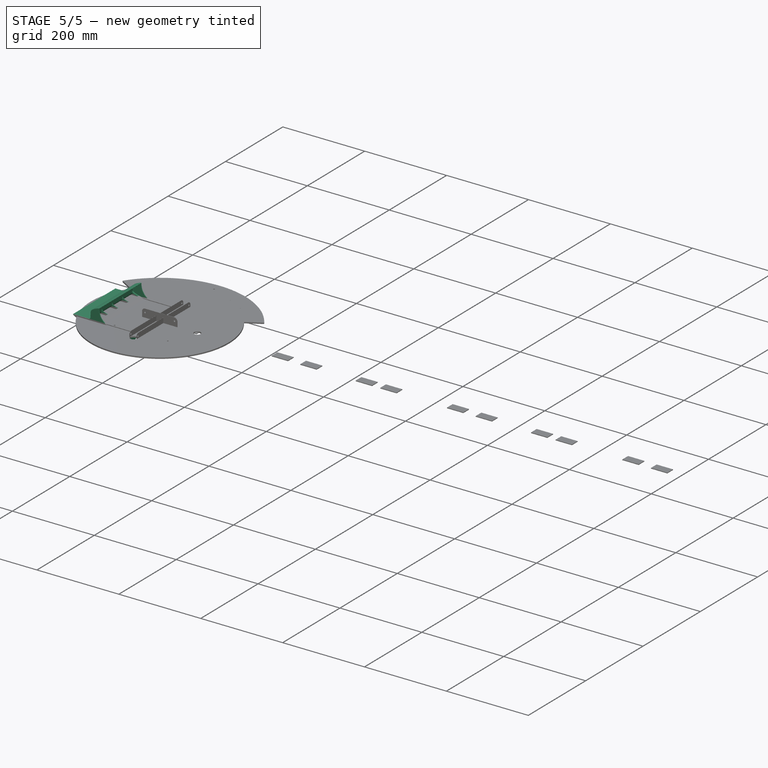
[diagram: stage 5 of 5 — iso view after this stage's code; geometry added in this stage tinted green]
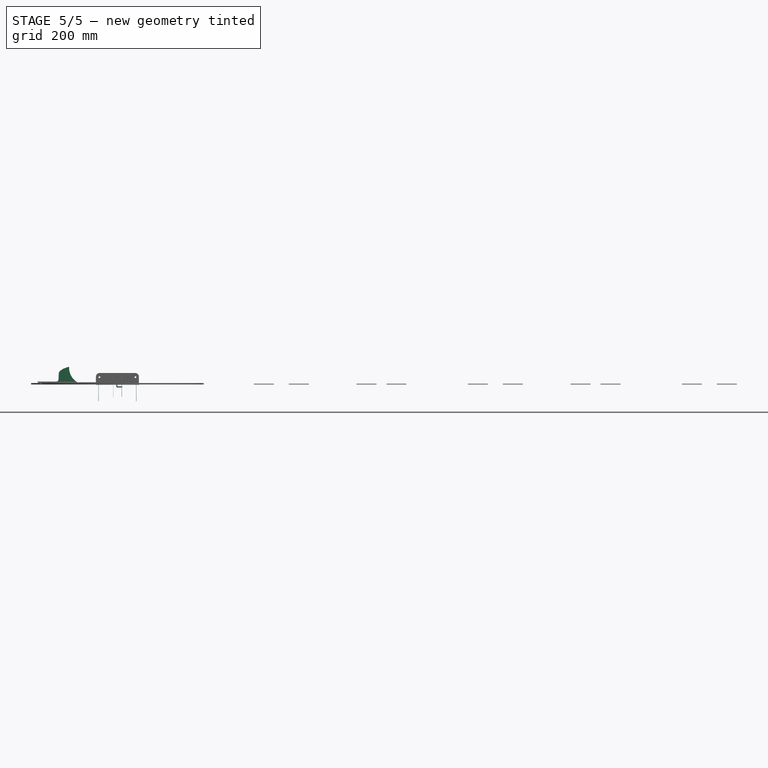
[diagram: stage 5 of 5 — front view after this stage's code; geometry added in this stage tinted green]
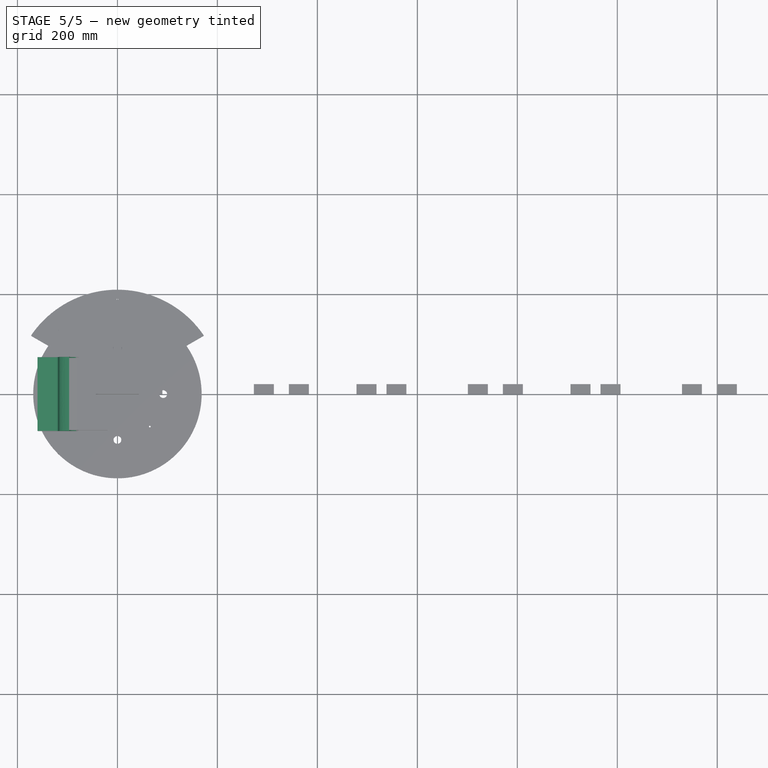
[diagram: stage 5 of 5 — top view after this stage's code; geometry added in this stage tinted green]
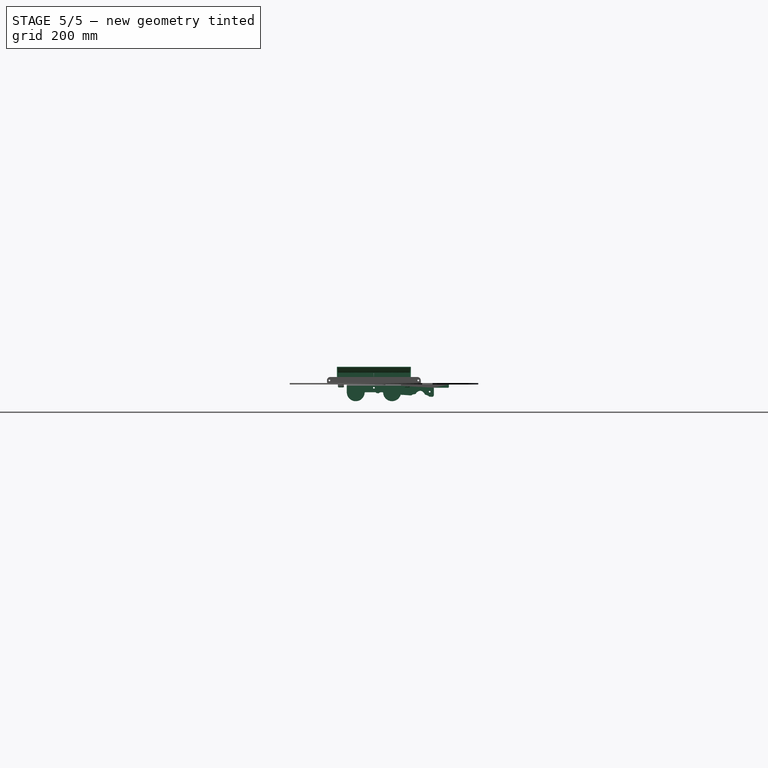
[diagram: stage 5 of 5 — right view after this stage's code; geometry added in this stage tinted green]
FEATURE [Sketcher::SketchObject] Sketch009
  FullyConstrained = true
  MapMode = 5
  Placement = pos=(0,0,0) rot=(0.57735,0.57735,0.57735;2.0944rad)
  Support = -> [YZ_Plane001]
  sketch-geometry (18):
    g0: LineSegment StartX=0 StartY=0 StartZ=0 EndX=0 EndY=157 EndZ=0
    g1: LineSegment StartX=192.75 StartY=152 StartZ=0 EndX=192.75 EndY=127 EndZ=0
    g2: LineSegment StartX=187.75 StartY=122 StartZ=0 EndX=183.66 EndY=122 EndZ=0
    g3: LineSegment StartX=178.808 StartY=118.205 StartZ=0 EndX=149.45 EndY=0 EndZ=0
    g4: LineSegment StartX=149.45 StartY=0 StartZ=0 EndX=0 EndY=0 EndZ=0
    g5: ArcOfCircle CenterX=187.75 CenterY=152 CenterZ=0 NormalX=0 NormalY=0 NormalZ=1 AngleXU=0 Radius=5 StartAngle=2.5e-15 EndAngle=1.5708
    g6: GeomPoint X=192.75 Y=157 Z=0
    g7: ArcOfCircle CenterX=187.75 CenterY=127 CenterZ=0 NormalX=0 NormalY=0 NormalZ=1 AngleXU=0 Radius=5 StartAngle=4.71239 EndAngle=6.28319
    g8: GeomPoint X=192.75 Y=122 Z=0
    g9: ArcOfCircle CenterX=183.66 CenterY=117 CenterZ=0 NormalX=0 NormalY=0 NormalZ=1 AngleXU=0 Radius=5 StartAngle=1.5708 EndAngle=2.89816
    g10: GeomPoint X=179.75 Y=122 Z=0
    g11: LineSegment StartX=73 StartY=116.5 StartZ=0 EndX=166 EndY=116.5 EndZ=0
    g12: LineSegment StartX=166 StartY=116.5 StartZ=0 EndX=166 EndY=157 EndZ=0
    g13: LineSegment StartX=166 StartY=157 StartZ=0 EndX=73 EndY=157 EndZ=0
    g14: LineSegment StartX=73 StartY=157 StartZ=0 EndX=73 EndY=116.5 EndZ=0
    g15: LineSegment StartX=0 StartY=157 StartZ=0 EndX=73 EndY=157 EndZ=0
    g16: LineSegment StartX=166 StartY=157 StartZ=0 EndX=187.75 EndY=157 EndZ=0
    g17: LineSegment StartX=208.395 StartY=149.752 StartZ=0 EndX=192.75 EndY=149.752 EndZ=0
  constraints (47):
    c: Coincident(g-1,g0)
    c: Vertical(g0)
    c: Vertical(g1)
    c: Horizontal(g2)
    c: PointOnObject(g3,g-1)
    c: Coincident(g3,g4)
    c: Coincident(g4,g0)
    c: Distance(g0,g6) = 192.75
    c: DistanceY(g8,g6) = 35
    c: DistanceX(g4,g4) = 149.45
    c: DistanceY(g0,g0) = 157
    c: PointOnObject(g6,g1)
    c: Tangent(g1,g5) = 1.5708
    c: PointOnObject(g8,g2)
    c: PointOnObject(g8,g1)
    c: Tangent(g2,g7) = 1.5708
    c: Tangent(g1,g7) = 1.5708
    c: PointOnObject(g10,g3)
    c: PointOnObject(g10,g2)
    c: Tangent(g3,g9) = -1.5708
    c: Tangent(g2,g9) = -1.5708
    c: Equal(g9,g7)
    c: Equal(g7,g5)
    c: Diameter(g7) = 10
    c: Distance(g8,g10) = 13
    c: Coincident(g11,g12)
    c: Coincident(g12,g13)
    c: Coincident(g13,g14)
    c: Coincident(g14,g11)
    c: Horizontal(g11)
    c: Horizontal(g13)
    c: Vertical(g12)
    c: Vertical(g14)
    c: DistanceX(g11,g11) = 93  'length'
    c: DistanceY(g14,g14) = 40.5  'height'
    c: DistanceX(g11) = 73
    c: DistanceY(g13) = 157
    c: Coincident(g15,g0)
    c: Coincident(g15,g13)
    c: Coincident(g16,g12)
    c: Horizontal(g16)
    c: Tangent(g16,g5) = 1.5708
    c: PointOnObject(g6,g16)
    c: PointOnObject(g17,g1)
    c: Horizontal(g17)
    c: DistanceX(g17) = 208.395
    c: DistanceY(g17) = 149.752
FEATURE [Sketcher::SketchObject] Sketch  label="gutter_side_sketch"
  FullyConstrained = true
  MapMode = 5
  Support = -> [XY_Plane]
  sketch-geometry (15):
    g0: LineSegment StartX=0 StartY=150 StartZ=0 EndX=13.5 EndY=150 EndZ=0
    g1: LineSegment StartX=25.5 StartY=0 StartZ=0 EndX=0 EndY=0 EndZ=0
    g2: LineSegment StartX=15 StartY=148.5 StartZ=0 EndX=15 EndY=120 EndZ=0
    g3: LineSegment StartX=15 StartY=120 StartZ=0 EndX=29.7589 EndY=120 EndZ=0
    g4: GeomPoint X=25.5 Y=150 Z=0
    g5: ArcOfCircle CenterX=29.7589 CenterY=116.5 CenterZ=0 NormalX=0 NormalY=0 NormalZ=1 AngleXU=0 Radius=3.5 StartAngle=6.21662 EndAngle=7.85398
    g6: GeomPoint X=25.5 Y=0 Z=0
    g7: ArcOfCircle CenterX=13.5 CenterY=148.5 CenterZ=0 NormalX=0 NormalY=0 NormalZ=1 AngleXU=0 Radius=1.5 StartAngle=-2.7e-15 EndAngle=1.5708
    g8: GeomPoint X=15 Y=150 Z=0
    g9: LineSegment StartX=33.2511 StartY=116.267 StartZ=0 EndX=25.9178 EndY=6.26718 EndZ=0
    g10: LineSegment StartX=25.9178 StartY=6.26718 StartZ=0 EndX=25.5 EndY=0 EndZ=0
    g11: ArcOfCircle CenterX=22.4256 CenterY=6.5 CenterZ=0 NormalX=0 NormalY=0 NormalZ=1 AngleXU=0 Radius=3.5 StartAngle=4.71239 EndAngle=6.21662
    g12: LineSegment StartX=0 StartY=0 StartZ=0 EndX=0 EndY=3 EndZ=0
    g13: LineSegment StartX=0 StartY=3 StartZ=0 EndX=0 EndY=150 EndZ=0
    g14: LineSegment StartX=0 StartY=3 StartZ=0 EndX=22.4256 EndY=3 EndZ=0
  constraints (36):
    c: Coincident(g-1,g12)
    c: PointOnObject(g13,g-2)
    c: Coincident(g13,g0)
    c: Horizontal(g0)
    c: PointOnObject(g6,g-1)
    c: Coincident(g1,g12)
    c: Distance(g1,g6) = 25.5  'little_distance'
    c: Vertical(g2)
    c: Coincident(g3,g2)
    c: Horizontal(g3)
    c: DistanceY(g2,g8) = 30
    c: PointOnObject(g4,g0)
    c: Distance(g6,g4) = 150
    c: Distance(g0,g8) = 15
    c: Tangent(g3,g5) = 1.5708
    c: Diameter(g5) = 7
    c: PointOnObject(g8,g0)
    c: PointOnObject(g8,g2)
    c: Tangent(g0,g7) = 1.5708
    c: Tangent(g2,g7) = 1.5708
    c: Diameter(g7) = 3
    c: Tangent(g9,g5) = 1.5708
    c: Vertical(g4,g6)
    c: Coincident(g1,g6)
    c: Coincident(g10,g1)
    c: Coincident(g9,g10)
    c: Parallel(g9,g10)
    c: Angle(g10,g-1) = 1.63736
    c: Coincident(g12,g13)
    c: Vertical(g12)
    c: Coincident(g14,g12)
    c: Horizontal(g14)
    c: Tangent(g11,g9) = 1.5708
    c: Tangent(g14,g11) = -1.5708
    c: Equal(g11,g5)
    c: DistanceY(g12,g12) = 3
FEATURE [PartDesign::Pad] Pad  label="gutter_side_pad"
  Direction = (0,0,1)
  Length = 0.3
  Length2 = 10
  Profile = -> Sketch
  ReferenceAxis = -> Sketch [N_Axis]
  Type = 0
FEATURE [Sketcher::SketchObject] Sketch010
  FullyConstrained = true
  MapMode = 5
  Support = -> [XY_Plane]
  sketch-geometry (1):
    g0: LineSegment StartX=-8.49 StartY=0 StartZ=0 EndX=-8.49 EndY=150 EndZ=0
  constraints (4):
    c: PointOnObject(g0,g-1)
    c: Vertical(g0)
    c: DistanceX(g0) = -8.49
    c: DistanceY(g0) = 150
FEATURE [PartDesign::Plane] DatumPlane002
  AttachmentOffset = pos=(0,0,407) rot=(0,0,1;0rad)
  Length = 446.077
  MapMode = 5
  Placement = pos=(0,0,407) rot=(0,0,1;0rad)
  ResizeMode = 0
  Support = -> [XY_Plane001]
  Width = 405.792
FEATURE [Sketcher::SketchObject] Sketch012
  FullyConstrained = true
  MapMode = 5
  Placement = pos=(0,0,0) rot=(0.57735,0.57735,0.57735;2.0944rad)
  Support = -> [YZ_Plane001]
  sketch-geometry (8):
    g0: LineSegment StartX=0 StartY=0 StartZ=0 EndX=50 EndY=0 EndZ=0
    g1: LineSegment StartX=50 StartY=0 StartZ=0 EndX=50 EndY=263 EndZ=0
    g2: LineSegment StartX=50 StartY=263 StartZ=0 EndX=0 EndY=263 EndZ=0
    g3: LineSegment StartX=0 StartY=263 StartZ=0 EndX=0 EndY=0 EndZ=0
    g4: LineSegment StartX=0 StartY=774 StartZ=0 EndX=50 EndY=774 EndZ=0
    g5: LineSegment StartX=50 StartY=774 StartZ=0 EndX=50 EndY=724 EndZ=0
    g6: LineSegment StartX=50 StartY=724 StartZ=0 EndX=0 EndY=724 EndZ=0
    g7: LineSegment StartX=0 StartY=724 StartZ=0 EndX=0 EndY=774 EndZ=0
  constraints (23):
    c: Coincident(g0,g1)
    c: Coincident(g1,g2)
    c: Coincident(g2,g3)
    c: Coincident(g3,g0)
    c: Horizontal(g0)
    c: Horizontal(g2)
    c: Vertical(g1)
    c: Vertical(g3)
    c: Coincident(g0,g-1)
    c: Distance(g0) = 50
    c: DistanceY(g2) = 263
    c: Coincident(g4,g5)
    c: Coincident(g5,g6)
    c: Coincident(g6,g7)
    c: Coincident(g7,g4)
    c: Horizontal(g4)
    c: Horizontal(g6)
    c: Vertical(g5)
    c: Vertical(g7)
    c: PointOnObject(g4,g-2)
    c: Vertical(g5,g1)
    c: DistanceY(g4) = 774
    c: DistanceY(g7,g7) = 50
FEATURE [Sketcher::SketchObject] Sketch013
  AttachmentOffset = pos=(0,157,0) rot=(0,0,1;0rad)
  FullyConstrained = true
  MapMode = 5
  Placement = pos=(-3.49e-14,3.49e-14,157) rot=(0.57735,0.57735,0.57735;2.0944rad)
  Support = -> [YZ_Plane001]
  sketch-geometry (7):
    g0: LineSegment StartX=75 StartY=0 StartZ=0 EndX=0 EndY=0 EndZ=0
    g1: LineSegment StartX=0 StartY=0 StartZ=0 EndX=0 EndY=60 EndZ=0
    g2: LineSegment StartX=0 StartY=60 StartZ=0 EndX=30 EndY=60 EndZ=0
    g3: LineSegment StartX=35 StartY=55 StartZ=0 EndX=35 EndY=40 EndZ=0
    g4: ArcOfCircle CenterX=75 CenterY=40 CenterZ=0 NormalX=0 NormalY=0 NormalZ=1 AngleXU=0 Radius=40 StartAngle=3.14159 EndAngle=4.71239
    g5: ArcOfCircle CenterX=30 CenterY=55 CenterZ=0 NormalX=0 NormalY=0 NormalZ=1 AngleXU=0 Radius=5 StartAngle=2e-16 EndAngle=1.5708
    g6: GeomPoint X=35 Y=60 Z=0
  constraints (18):
    c: PointOnObject(g0,g-1)
    c: Coincident(g0,g-1)
    c: Coincident(g0,g1)
    c: PointOnObject(g1,g-2)
    c: Coincident(g1,g2)
    c: Horizontal(g2)
    c: Vertical(g3)
    c: PointOnObject(g6,g2)
    c: PointOnObject(g6,g3)
    c: Tangent(g2,g5) = 1.5708
    c: Tangent(g3,g5) = 1.5708
    c: Diameter(g4) = 80
    c: Tangent(g4,g3) = -1.5708
    c: Distance(g1) = 60
    c: Tangent(g4,g0) = 1.5708
    c: Diameter(g5) = 10
    c: DistanceX(g3) = 35
    c: Distance(g0) = 75
FEATURE [Spreadsheet::Sheet] Spreadsheet003  label="gutter"
  cells = B2(length)==150 mm; C2(plane_middle)==60 mm; B3(bend_angle)==atan((high_edge_length - low_edge_length) / length); B4(high_edge_length)==30 mm; B5(low_edge_length)==20 mm
FEATURE [PartDesign::Mirrored] Mirrored005
  BaseFeature = -> Pad
  MirrorPlane = -> YZ_Plane
  Originals = -> [Pad]
  Refine = true
FEATURE [PartDesign::CoordinateSystem] Local_CS001
  AttacherType = Attacher::AttachEngine3D
  AttachmentOffset = pos=(-28.5,0,0) rot=(0,0,1;0.066568rad)
  MapMode = 5
  Placement = pos=(-28.5,0,0) rot=(0,0,1;0.066568rad)
  Support = -> [XY_Plane]
FEATURE [App::DocumentObjectGroup] Group  label="Tables"
  Group = -> [Spreadsheet,Spreadsheet001,Spreadsheet003,Spreadsheet002]
FEATURE [PartDesign::CoordinateSystem] Local_CS002
  AttacherType = Attacher::AttachEngine3D
  AttachmentOffset = pos=(28.5,0,0) rot=(0,0,1;-0.066568rad)
  MapMode = 5
  Placement = pos=(28.5,0,0) rot=(0,0,1;6.21662rad)
  Support = -> [XY_Plane]
FEATURE [PartDesign::CoordinateSystem] Local_CS003
  AttacherType = Attacher::AttachEngine3D
  AttachmentOffset = pos=(0,60,0) rot=(0,0,1;1.5708rad)
  MapMode = 5
  Placement = pos=(32.4911,59.8671,0) rot=(0,0,1;1.50423rad)
  Support = -> [Local_CS002]
FEATURE [PartDesign::CoordinateSystem] Local_CS004
  AttacherType = Attacher::AttachEngine3D
  AttachmentOffset = pos=(2,60,0) rot=(0,0,1;-1.5708rad)
  MapMode = 5
  Placement = pos=(-30.4956,60.0001,0) rot=(0,0,1;4.77896rad)
  Support = -> [Local_CS001]
FEATURE [PartDesign::Plane] DatumPlane003
  Length = 74.6163
  MapMode = 4
  Placement = pos=(32.4911,59.8671,0) rot=(0.023538,0.706911,0.706911;3.09453rad)
  ResizeMode = 0
  Support = -> [Local_CS003]
  Width = 61.2569
FEATURE [PartDesign::Plane] DatumPlane004
  Length = 72.6233
  MapMode = 4
  Placement = pos=(-30.4956,60.0001,0) rot=(0.998893,0.03326,0.03326;1.5719rad)
  ResizeMode = 0
  Support = -> [Local_CS004]
  Width = 61.0932
FEATURE [PartDesign::Plane] DatumPlane005
  AttachmentOffset = pos=(0,-1,0) rot=(0,0,1;0rad)
  Length = 199.341
  MapMode = 5
  Placement = pos=(33.4889,59.8006,0) rot=(0,0,1;1.50423rad)
  ResizeMode = 0
  Support = -> [Local_CS003]
  Width = 85.7622
FEATURE [PartDesign::Plane] DatumPlane006
  Length = 198.865
  MapMode = 5
  Placement = pos=(-30.4956,60.0001,0) rot=(0,0,-1;1.50423rad)
  ResizeMode = 0
  Support = -> [Local_CS004]
  Width = 82.4572
FEATURE [Sketcher::SketchObject] Sketch037
  AttachmentOffset = pos=(30,2,0) rot=(0,0,1;0rad)
  FullyConstrained = true
  MapMode = 5
  Placement = pos=(32.4911,89.9337,0) rot=(0,0,1;1.50423rad)
  Support = -> [Local_CS003]
  sketch-geometry (8):
    g0: LineSegment StartX=0 StartY=11.625 StartZ=0 EndX=1 EndY=11.625 EndZ=0
    g1: ArcOfCircle CenterX=1 CenterY=0 CenterZ=0 NormalX=0 NormalY=0 NormalZ=1 AngleXU=0 Radius=11.625 StartAngle=0.450911 EndAngle=1.5708
    g2: ArcOfCircle CenterX=17.127 CenterY=0 CenterZ=0 NormalX=0 NormalY=0 NormalZ=1 AngleXU=0 Radius=3 StartAngle=0.25268 EndAngle=1.29556
    g3: LineSegment StartX=12.0914 StartY=4.53943 StartZ=0 EndX=17.9423 EndY=2.88708 EndZ=0
    g4: LineSegment StartX=0 StartY=11.625 StartZ=0 EndX=0 EndY=0 EndZ=0
    g5: LineSegment StartX=0 StartY=0 StartZ=0 EndX=21 EndY=0 EndZ=0
    g6: ArcOfCircle CenterX=21 CenterY=1 CenterZ=0 NormalX=0 NormalY=0 NormalZ=1 AngleXU=0 Radius=1 StartAngle=3.39427 EndAngle=4.71239
    g7: ArcOfCircle CenterX=12.3631 CenterY=5.5018 CenterZ=0 NormalX=0 NormalY=0 NormalZ=1 AngleXU=0 Radius=1 StartAngle=3.5925 EndAngle=4.43715
  constraints (22):
    c: PointOnObject(g0,g-2)
    c: Horizontal(g0)
    c: PointOnObject(g2,g-1)
    c: Tangent(g3,g2) = 1.5708
    c: Tangent(g1,g0) = 1.5708
    c: Coincident(g4,g0)
    c: Coincident(g4,g-1)
    c: Coincident(g5,g4)
    c: Diameter(g2) = 6
    c: Angle(g3,g-1) = 0.275238
    c: Diameter(g1) = 23.25
    c: PointOnObject(g1,g-1)
    c: Distance(g0) = 1
    c: Horizontal(g5)
    c: Tangent(g6,g5) = -1.5708
    c: Tangent(g6,g2) = 1.5708
    c: Diameter(g6) = 2
    c: Distance(g5) = 21
    c: Tangent(g3,g7) = -1.5708
    c: Tangent(g1,g7) = 1.5708
    c: Diameter(g7) = 2
    c: DistanceY(g2) = 2.88708  'arc_height'
FEATURE [PartDesign::Pocket] Pocket008
  BaseFeature = -> Mirrored005
  Direction = (0,0,-1)
  Length = 5
  Length2 = 5
  Midplane = true
  Profile = -> Sketch037
  ReferenceAxis = -> Sketch037 [N_Axis]
  Type = 1
FEATURE [PartDesign::Mirrored] Mirrored006
  MirrorPlane = -> Sketch037 [V_Axis]
FEATURE [PartDesign::Mirrored] Mirrored007
  MirrorPlane = -> DatumPlane003
FEATURE [PartDesign::MultiTransform] MultiTransform002
  BaseFeature = -> Pocket008
  Originals = -> [Pocket008]
  Transformations = -> [Mirrored006,Mirrored007]
FEATURE [PartDesign::SubShapeBinder] Binder
  AttacherType = Attacher::AttachEngine3D
  AttachmentOffset = pos=(35,0,0) rot=(0,0,1;0rad)
  BindCopyOnChange = 0
  BindMode = 0
  ClaimChildren = true
  Context = -> Body [Binder.]
  Fuse = false
  MakeFace = true
  MapMode = 5
  OffsetFill = false
  OffsetIntersection = false
  OffsetJoinType = 0
  OffsetOpenResult = false
  PartialLoad = false
  Placement = pos=(-28.1674,25.0777,0) rot=(0,0,-1;1.50423rad)
  Relative = false
  _Version = 2
FEATURE [PartDesign::Pocket] Pocket009
  BaseFeature = -> MultiTransform002
  Direction = (0,0,-1)
  Length = 5
  Length2 = 5
  Midplane = true
  Profile = -> Binder
  Type = 1
FEATURE [PartDesign::Plane] DatumPlane007
  Length = 72.6233
  MapMode = 4
  Placement = pos=(-28.1674,25.0777,0) rot=(0.998893,0.03326,0.03326;1.5719rad)
  ResizeMode = 0
  Support = -> [Binder]
  Width = 61.0932
FEATURE [PartDesign::Mirrored] Mirrored008
  MirrorPlane = -> DatumPlane007
FEATURE [PartDesign::Mirrored] Mirrored009
  MirrorPlane = -> DatumPlane004
FEATURE [PartDesign::MultiTransform] MultiTransform003
  BaseFeature = -> Pocket009
  Originals = -> [Pocket009]
  Transformations = -> [Mirrored008,Mirrored009]
FEATURE [Sketcher::SketchObject] Sketch038
  FullyConstrained = true
  MapMode = 5
  Support = -> [XY_Plane]
  sketch-geometry (1):
    g0: LineSegment StartX=8.49 StartY=0 StartZ=0 EndX=8.49 EndY=150 EndZ=0
  constraints (4):
    c: PointOnObject(g0,g-1)
    c: Vertical(g0)
    c: DistanceX(g0) = 8.49
    c: DistanceY(g0) = 150
FEATURE [Sketcher::SketchObject] Sketch039
  AttachmentOffset = pos=(51,14,0) rot=(0,0,1;0rad)
  FullyConstrained = true
  MapMode = 5
  Placement = pos=(22.9124,111.619,0) rot=(0,0,1;1.50423rad)
  Support = -> [DatumPlane005]
  sketch-geometry (1):
    g0: Circle CenterX=0 CenterY=0 CenterZ=0 NormalX=0 NormalY=0 NormalZ=1 AngleXU=0 Radius=1.7
  constraints (2):
    c: Coincident(g0,g-1)
    c: Diameter(g0) = 3.4
FEATURE [PartDesign::Pocket] Pocket010
  BaseFeature = -> MultiTransform003
  Direction = (0,0,-1)
  Length = 5
  Length2 = 5
  Midplane = true
  Profile = -> Sketch039
  ReferenceAxis = -> Sketch039 [N_Axis]
  Type = 1
FEATURE [PartDesign::Mirrored] Mirrored010
  MirrorPlane = -> DatumPlane003
FEATURE [PartDesign::Mirrored] Mirrored011
  MirrorPlane = -> YZ_Plane
FEATURE [PartDesign::MultiTransform] MultiTransform004
  BaseFeature = -> Pocket010
  Originals = -> [Pocket010]
  Transformations = -> [Mirrored010,Mirrored011]
FEATURE [PartDesign::FeaturePython] Fold  # WARN: FeaturePython — macro-defined, semantics opaque (R4)
  BaseFeature = -> MultiTransform004
  BendLine = -> Sketch038
  Position = 0
  angle = 90
  baseObject = -> MultiTransform004 [Face4]
  invert = false
  invertbend = true
  kfactor = 0.01
  radius = 0.01
  unfold = false
FEATURE [PartDesign::FeaturePython] Fold002  # WARN: FeaturePython — macro-defined, semantics opaque (R4)
  BaseFeature = -> Fold
  BendLine = -> Sketch010
  Position = 0
  angle = 90
  baseObject = -> Fold [Face2]
  invert = false
  invertbend = false
  kfactor = 0.01
  radius = 0.01
  unfold = false
FEATURE [PartDesign::SubShapeBinder] Binder023
  BindCopyOnChange = 0
  BindMode = 0
  ClaimChildren = false
  Context = -> Body001003005003 [Binder023.]
  Fuse = false
  MakeFace = true
  OffsetFill = false
  OffsetIntersection = false
  OffsetJoinType = 0
  OffsetOpenResult = false
  PartialLoad = false
  Relative = true
  Support = -> [Body001003005003013[Pocket042.Sketch084.,Pocket041.Sketch083.]]
  _Version = 2
FEATURE [Part::Feature] Part__Feature  label="module002"
FEATURE [PartDesign::FeatureBase] BaseFeature
  BaseFeature = -> Part__Feature
FEATURE [Sketcher::SketchObject] Sketch088
  AttachmentOffset = pos=(178.2,61.7,0) rot=(0,0,1;0rad)
  FullyConstrained = true
  MapMode = 5
  Placement = pos=(2.59e-14,178.2,61.7) rot=(0.57735,0.57735,0.57735;2.0944rad)
  Support = -> [YZ_Plane001]
  sketch-geometry (4):
    g0: Circle CenterX=0 CenterY=-36 CenterZ=0 NormalX=0 NormalY=0 NormalZ=1 AngleXU=0 Radius=1.7
    g1: Circle CenterX=0 CenterY=36 CenterZ=0 NormalX=0 NormalY=0 NormalZ=1 AngleXU=0 Radius=1.7
    g2: LineSegment StartX=0 StartY=0 StartZ=0 EndX=0 EndY=-36 EndZ=0
    g3: LineSegment StartX=0 StartY=0 StartZ=0 EndX=0 EndY=36 EndZ=0
  constraints (10):
    c: PointOnObject(g0,g-2)
    c: PointOnObject(g1,g-2)
    c: Equal(g0,g1)
    c: Coincident(g2,g-1)
    c: Coincident(g2,g0)
    c: Coincident(g3,g2)
    c: Coincident(g3,g1)
    c: Equal(g2,g3)
    c: DistanceY(g0,g1) = 72
    c: Diameter(g1) = 3.4
FEATURE [PartDesign::PolarPattern] PolarPattern012
  Angle = 120
  Axis = -> Z_Axis001
  Occurrences = 2
FEATURE [PartDesign::Mirrored] Mirrored033
  MirrorPlane = -> DatumPlane021
FEATURE [App::Link] Body001003005003004001
  AssemblyType = Part::Link
  AttachedBy = #Local_CS019
  AttachedTo = Body001001#Local_CS025
  AttachmentOffset = pos=(0,0,-3) rot=(0,0,1;3.14159rad)
  LinkPlacement = pos=(0,0,154) rot=(0,0,1;3.14159rad)
  LinkedObject = -> Body001003005003004
  Placement = pos=(0,0,154) rot=(0,0,1;3.14159rad)
  SolverId = Asm4EE
FEATURE [PartDesign::CoordinateSystem] Local_CS030
  AttacherType = Attacher::AttachEngine3D
  AttachmentOffset = pos=(0,0,-14.5) rot=(0,1,0;3.14159rad)
  MapMode = 2
  Placement = pos=(-14.5,178.2,61.7) rot=(-0.57735,0.57735,0.57735;4.18879rad)
  Support = -> [Sketch088]
FEATURE [PartDesign::CoordinateSystem] Local_CS031
  AttacherType = Attacher::AttachEngine3D
  MapMode = 2
  Placement = pos=(0,14.5,0) rot=(0,0,1;0rad)
  Support = -> [Sketch087]
FEATURE [PartDesign::Body] Body001003005003015  label="corner_72x15_material_0.30ansi"
  Group = -> [Sketch085,BaseBend002,Sketch086,Pocket047,MultiTransform011,Mirrored032,PolarPattern010,Sketch087,Pocket048,PolarPattern011,Local_CS031]
  Origin = -> Origin028
  Tip = -> PolarPattern011
FEATURE [App::Link] Body001003005003015001
  AssemblyType = Part::Link
  AttachedBy = #Local_CS031
  AttachedTo = Body001001#Local_CS030
  AttachmentOffset = pos=(0,0,0.5) rot=(0,0,1;4.71239rad)
  LinkPlacement = pos=(-15,192.7,61.7) rot=(0.707107,0,-0.707107;3.14159rad)
  LinkedObject = -> Body001003005003015
  Placement = pos=(-15,192.7,61.7) rot=(0.707107,0,-0.707107;3.14159rad)
  SolverId = Asm4EE
FEATURE [Part::FeaturePython] Circular_Body001003005002  # Draft array (typed FeaturePython)
  AngleStep = 240
  ArrayType = Circular Array
  Axis = -> Z_Axis012 [X]
  Count = 2
  Index = 1
  PlacementList = 2 placements: [(-1.64964e-13,4.4202e-14,157),(-1.64964e-13,4.4202e-14,157)]
  Placer = pos=(0,0,0) rot=(0,0,1;4.18879rad)
  ScaleList = (2) [(1,1,1),(1,1,1)]
  Scaler = 1
  ShowElement = false
  SourceObject = -> Body001003005002
FEATURE [PartDesign::CoordinateSystem] LCS_0
  AttacherType = Attacher::AttachEngine3D
  MapMode = 2
  Support = -> [X_Axis029]
FEATURE [Sketcher::SketchObject] Sketch089
  FullyConstrained = true
  MapMode = 5
  Placement = pos=(0,0,0) rot=(1,0,0;1.5708rad)
  Support = -> [XZ_Plane029]
  sketch-geometry (5):
    g0: LineSegment StartX=-41.5 StartY=-36.5 StartZ=0 EndX=-41.5 EndY=0 EndZ=0
    g1: LineSegment StartX=-41.5 StartY=0 StartZ=0 EndX=41.5 EndY=0 EndZ=0
    g2: LineSegment StartX=41.5 StartY=0 StartZ=0 EndX=41.5 EndY=-36.5 EndZ=0
    g3: LineSegment StartX=41.5 StartY=-36.5 StartZ=0 EndX=-41.5 EndY=-36.5 EndZ=0
    g4: GeomPoint X=0 Y=-18.25 Z=0
  constraints (13):
    c: Coincident(g0,g1)
    c: Coincident(g1,g2)
    c: Coincident(g2,g3)
    c: Coincident(g3,g0)
    c: Horizontal(g1)
    c: Horizontal(g3)
    c: Vertical(g0)
    c: Vertical(g2)
    c: Symmetric(g1,g0,g4)
    c: PointOnObject(g4,g-2)
    c: PointOnObject(g1,g-1)
    c: DistanceX(g1,g1) = 83  'width'
    c: DistanceY(g2,g2) = 36.5
FEATURE [PartDesign::FeaturePython] BaseBend003  # WARN: FeaturePython — macro-defined, semantics opaque (R4)
  BendSide = 0
  BendSketch = -> Sketch089
  MidPlane = true
  Reverse = false
  length = 108.4
  radius = 0.01
  thickness = 0.3
FEATURE [Sketcher::SketchObject] Sketch090
  FullyConstrained = true
  MapMode = 5
  Support = -> [XY_Plane030]
  sketch-geometry (6):
    g0: LineSegment StartX=0 StartY=-100 StartZ=0 EndX=13 EndY=-100 EndZ=0
    g1: LineSegment StartX=14.5 StartY=-98.5 StartZ=0 EndX=14.5 EndY=100 EndZ=0
    g2: LineSegment StartX=14.5 StartY=100 StartZ=0 EndX=0 EndY=108.372 EndZ=0
    g3: LineSegment StartX=0 StartY=108.372 StartZ=0 EndX=0 EndY=-100 EndZ=0
    g4: ArcOfCircle CenterX=13 CenterY=-98.5 CenterZ=0 NormalX=0 NormalY=0 NormalZ=1 AngleXU=0 Radius=1.5 StartAngle=4.71239 EndAngle=6.28319
    g5: GeomPoint X=14.5 Y=-100 Z=0
  constraints (15):
    c: Coincident(g1,g2)
    c: Coincident(g2,g3)
    c: Coincident(g3,g0)
    c: Horizontal(g0)
    c: Vertical(g3)
    c: PointOnObject(g0,g-2)
    c: DistanceX(g5) = 14.5
    c: Angle(g-2,g2) = 1.0472
    c: Symmetric(g1,g5,g-1)
    c: DistanceY(g5,g1) = 200
    c: PointOnObject(g5,g0)
    c: PointOnObject(g5,g1)
    c: Tangent(g0,g4) = -1.5708
    c: Tangent(g1,g4) = -1.5708
    c: Diameter(g4) = 3
FEATURE [PartDesign::Pad] Pad023
  BaseFeature = -> BaseBend003
  Direction = (0,0,1)
  Length = 0.3
  Length2 = 10
  Profile = -> Sketch090
  ReferenceAxis = -> Sketch090 [N_Axis]
  Reversed = true
  Type = 0
FEATURE [PartDesign::Mirrored] Mirrored034
  BaseFeature = -> Pad023
  MirrorPlane = -> Sketch090 [V_Axis]
  Originals = -> [Pad023]
  Refine = true
FEATURE [Sketcher::SketchObject] Sketch091
  FullyConstrained = true
  MapMode = 5
  Placement = pos=(0,0,0) rot=(0.57735,0.57735,0.57735;2.0944rad)
  Support = -> [YZ_Plane029]
  sketch-geometry (8):
    g0: LineSegment StartX=0 StartY=-36.5 StartZ=0 EndX=0 EndY=-18.63 EndZ=0
    g1: LineSegment StartX=0 StartY=-18.63 StartZ=0 EndX=17.4865 EndY=-18.63 EndZ=0
    g2: LineSegment StartX=54.2 StartY=-36.5 StartZ=0 EndX=54.2 EndY=-18.63 EndZ=0
    g3: ArcOfCircle CenterX=36.33 CenterY=-18.63 CenterZ=0 NormalX=0 NormalY=0 NormalZ=1 AngleXU=0 Radius=17.87 StartAngle=4.71239 EndAngle=6.28319
    g4: LineSegment StartX=54.2 StartY=-36.5 StartZ=0 EndX=36.33 EndY=-36.5 EndZ=0
    g5: ArcOfCircle CenterX=36.33 CenterY=-18.63 CenterZ=0 NormalX=0 NormalY=0 NormalZ=1 AngleXU=0 Radius=17.87 StartAngle=3.19461 EndAngle=4.71239
    g6: ArcOfCircle CenterX=17.4865 CenterY=-19.63 CenterZ=0 NormalX=0 NormalY=0 NormalZ=1 AngleXU=0 Radius=1 StartAngle=0.053019 EndAngle=1.5708
    g7: LineSegment StartX=0 StartY=-36.5 StartZ=0 EndX=36.33 EndY=-36.5 EndZ=0
  constraints (22):
    c: PointOnObject(g0,g-2)
    c: PointOnObject(g0,g-2)
    c: Coincident(g0,g1)
    c: Horizontal(g1)
    c: Vertical(g2)
    c: Coincident(g4,g2)
    c: Horizontal(g4)
    c: Tangent(g3,g2) = -1.5708
    c: Coincident(g5,g3)
    c: Coincident(g5,g3)
    c: Tangent(g1,g6) = 1.5708
    c: Tangent(g6,g5) = 1.5708
    c: Coincident(g7,g0)
    c: Coincident(g7,g3)
    c: Horizontal(g7)
    c: Coincident(g3,g4)
    c: Tangent(g5,g7)
    c: DistanceY(g0) = -36.5
    c: DistanceX(g2) = 54.2
    c: Diameter(g6) = 2
    c: Diameter(g5) = 35.74
    c: Horizontal(g0,g2)
FEATURE [PartDesign::Pocket] Pocket050
  BaseFeature = -> Mirrored034
  Direction = (-1,2e-16,-3e-16)
  Length = 5
  Length2 = 5
  Midplane = true
  Profile = -> Sketch091
  ReferenceAxis = -> Sketch091 [N_Axis]
  Refine = true
  Type = 1
FEATURE [PartDesign::Mirrored] Mirrored035
  BaseFeature = -> Pocket050
  MirrorPlane = -> Sketch091 [V_Axis]
  Originals = -> [Pocket050]
FEATURE [Sketcher::SketchObject] Sketch092
  FullyConstrained = true
  MapMode = 5
  Placement = pos=(0,0,0) rot=(0.57735,0.57735,0.57735;2.0944rad)
  Support = -> [YZ_Plane029]
  sketch-geometry (1):
    g0: Circle CenterX=0 CenterY=-9.63 CenterZ=0 NormalX=0 NormalY=0 NormalZ=1 AngleXU=0 Radius=1.65
  constraints (3):
    c: PointOnObject(g0,g-2)
    c: Diameter(g0) = 3.3
    c: DistanceY(g0) = -9.63
FEATURE [PartDesign::Pocket] Pocket051
  BaseFeature = -> Mirrored035
  Direction = (-1,2e-16,-3e-16)
  Length = 5
  Length2 = 5
  Midplane = true
  Profile = -> Sketch092
  ReferenceAxis = -> Sketch092 [N_Axis]
  Type = 1
FEATURE [PartDesign::Body] Body_2  label="top_material_0.50ansi"
  Group = -> [LCS_0,Sketch089,BaseBend003,Sketch090,Pad023,Mirrored034,Sketch091,Pocket050,Mirrored035,Sketch092,Pocket051]
  Origin = -> Origin029
  Placement = pos=(0,0,3) rot=(0,0,1;0rad)
  Tip = -> Pocket051
FEATURE [PartDesign::CoordinateSystem] LCS_0001
  AttacherType = Attacher::AttachEngine3D
  MapMode = 2
  Support = -> [X_Axis030]
FEATURE [Sketcher::SketchObject] Sketch093  label="Stainless_top_Sketch"
  FullyConstrained = true
  MapMode = 5
  Placement = pos=(0,0,0) rot=(1,0,0;1.5708rad)
  Support = -> [XZ_Plane030]
  sketch-geometry (5):
    g0: LineSegment StartX=-38 StartY=-33.5 StartZ=0 EndX=-38 EndY=0 EndZ=0
    g1: LineSegment StartX=-38 StartY=0 StartZ=0 EndX=38 EndY=0 EndZ=0
    g2: LineSegment StartX=38 StartY=0 StartZ=0 EndX=38 EndY=-33.5 EndZ=0
    g3: LineSegment StartX=38 StartY=-33.5 StartZ=0 EndX=-38 EndY=-33.5 EndZ=0
    g4: GeomPoint X=0 Y=-16.75 Z=0
  constraints (13):
    c: Coincident(g0,g1)
    c: Coincident(g1,g2)
    c: Coincident(g2,g3)
    c: Coincident(g3,g0)
    c: Horizontal(g1)
    c: Horizontal(g3)
    c: Vertical(g0)
    c: Vertical(g2)
    c: Symmetric(g1,g0,g4)
    c: PointOnObject(g4,g-2)
    c: PointOnObject(g1,g-1)
    c: DistanceX(g1,g1) = 76  'width'
    c: DistanceY(g2,g1) = 33.5  'height'
FEATURE [PartDesign::FeaturePython] BaseBend004  # WARN: FeaturePython — macro-defined, semantics opaque (R4)
  BendSide = 0
  BendSketch = -> Sketch093
  MidPlane = true
  Reverse = false
  length = 108.4
  radius = 2
  thickness = 0.5
FEATURE [PartDesign::SubShapeBinder] Binder024
  BindCopyOnChange = 0
  BindMode = 0
  ClaimChildren = false
  Context = -> Body_3 [Binder024.]
  Fuse = false
  MakeFace = true
  OffsetFill = true
  OffsetIntersection = false
  OffsetJoinType = 0
  OffsetOpenResult = true
  PartialLoad = false
  Relative = true
  Support = -> [Body_2[Pocket050.Sketch091.]]
  _Version = 2
FEATURE [PartDesign::Pocket] Pocket052
  BaseFeature = -> BaseBend004
  Direction = (-1,2e-16,-2e-16)
  Length = 5
  Length2 = 5
  Midplane = true
  Profile = -> Binder024 [Face1]
  Type = 1
FEATURE [PartDesign::Mirrored] Mirrored036
  BaseFeature = -> Pocket052
  MirrorPlane = -> XZ_Plane030
  Originals = -> [Pocket052]
FEATURE [PartDesign::SubShapeBinder] Binder025
  BindCopyOnChange = 0
  BindMode = 0
  ClaimChildren = false
  Context = -> Body_3 [Binder025.]
  Fuse = false
  MakeFace = true
  OffsetFill = false
  OffsetIntersection = false
  OffsetJoinType = 0
  OffsetOpenResult = false
  PartialLoad = false
  Relative = true
  Support = -> [Body_2[Pocket051.Sketch092.]]
  _Version = 2
FEATURE [PartDesign::Pocket] Pocket053
  BaseFeature = -> Mirrored036
  Direction = (-1,2e-16,-2e-16)
  Length = 5
  Length2 = 5
  Midplane = true
  Profile = -> Binder025
  Type = 1
FEATURE [PartDesign::Body] Body_7  label="ugol_mini_material_0.30ansi"
  Group = -> [LCS_0005,Sketch104,BaseBend006,Sketch105,DatumPlane024,Fillet002,Mirrored038,Pocket061,Sketch106,Pocket062]
  Origin = -> Origin035
  Tip = -> Pocket062
FEATURE [PartDesign::Mirrored] Mirrored039
  MirrorPlane = -> YZ_Plane036
FEATURE [PartDesign::PolarPattern] PolarPattern014
  Angle = 90
  Axis = -> X_Axis036
  Occurrences = 2
FEATURE [Sketcher::SketchObject] Sketch108
  FullyConstrained = true
  MapMode = 5
  Placement = pos=(0,0,0) rot=(0.57735,0.57735,0.57735;2.0944rad)
  Support = -> [YZ_Plane036]
  sketch-geometry (2):
    g0: LineSegment StartX=0 StartY=23 StartZ=0 EndX=0 EndY=0 EndZ=0
    g1: LineSegment StartX=0 StartY=0 StartZ=0 EndX=23 EndY=0 EndZ=0
  constraints (6):
    c: PointOnObject(g0,g-2)
    c: Coincident(g0,g-1)
    c: Coincident(g1,g0)
    c: PointOnObject(g1,g-1)
    c: Equal(g1,g0)
    c: DistanceX(g1,g1) = 23  'length'
FEATURE [PartDesign::FeaturePython] BaseBend007  # WARN: FeaturePython — macro-defined, semantics opaque (R4)
  BendSide = 0
  BendSketch = -> Sketch108
  MidPlane = true
  Reverse = false
  length = 86
  radius = 2
  thickness = 0.5
FEATURE [Sketcher::SketchObject] Sketch109
  AttachmentOffset = pos=(43,23,0) rot=(0,0,1;0rad)
  FullyConstrained = true
  MapMode = 5
  Placement = pos=(43,23,0) rot=(0,0,1;0rad)
  Support = -> [XY_Plane037]
  sketch-geometry (3):
    g0: ArcOfCircle CenterX=-7.5 CenterY=-7.5 CenterZ=0 NormalX=0 NormalY=0 NormalZ=1 AngleXU=0 Radius=7.5 StartAngle=0 EndAngle=1.5708
    g1: LineSegment StartX=0 StartY=-7.5 StartZ=0 EndX=0 EndY=0 EndZ=0
    g2: LineSegment StartX=0 StartY=0 StartZ=0 EndX=-7.50003 EndY=-6.21876e-11 EndZ=0
  constraints (8):
    c: PointOnObject(g0,g-2)
    c: PointOnObject(g0,g-1)
    c: Coincident(g1,g-1)
    c: Coincident(g2,g1)
    c: Coincident(g2,g0)
    c: Tangent(g2,g0)
    c: Tangent(g1,g0) = -1.5708
    c: Diameter(g0) = 15
FEATURE [PartDesign::Pocket] Pocket063
  BaseFeature = -> BaseBend007
  Direction = (0,0,-1)
  Length = 5
  Length2 = 5
  Midplane = true
  Profile = -> Sketch109
  ReferenceAxis = -> Sketch109 [N_Axis]
  Type = 1
FEATURE [PartDesign::MultiTransform] MultiTransform013
  BaseFeature = -> Pocket063
  Originals = -> [Pocket063]
  Transformations = -> [Mirrored039,PolarPattern014]
FEATURE [Sketcher::SketchObject] Sketch110
  AttachmentOffset = pos=(0,14.5,0) rot=(0,0,1;0rad)
  FullyConstrained = true
  MapMode = 5
  Placement = pos=(0,-3.2e-15,14.5) rot=(1,0,0;1.5708rad)
  Support = -> [XZ_Plane036]
  sketch-geometry (2):
    g0: Circle CenterX=36 CenterY=0 CenterZ=0 NormalX=0 NormalY=0 NormalZ=1 AngleXU=0 Radius=1.7
    g1: Circle CenterX=-36 CenterY=0 CenterZ=0 NormalX=0 NormalY=0 NormalZ=1 AngleXU=0 Radius=1.7
  constraints (5):
    c: PointOnObject(g0,g-1)
    c: Symmetric(g1,g0,g-1)
    c: Equal(g0,g1)
    c: Diameter(g0) = 3.4
    c: DistanceX(g1,g0) = 72
FEATURE [PartDesign::CoordinateSystem] Local_CS034
  AttacherType = Attacher::AttachEngine3D
  MapMode = 2
  Placement = pos=(0,-3.2e-15,14.5) rot=(1,0,0;1.5708rad)
  Support = -> [Sketch110]
FEATURE [PartDesign::Pocket] Pocket064
  BaseFeature = -> MultiTransform013
  Direction = (0,1,2e-16)
  Length = 5
  Length2 = 5
  Midplane = true
  Profile = -> Sketch110
  ReferenceAxis = -> Sketch110 [N_Axis]
  Type = 1
FEATURE [Sketcher::SketchObject] Sketch111
  AttachmentOffset = pos=(0,14.5,0) rot=(0,0,1;0rad)
  FullyConstrained = true
  MapMode = 5
  Placement = pos=(0,14.5,0) rot=(0,0,1;0rad)
  Support = -> [XY_Plane037]
  sketch-geometry (2):
    g0: Circle CenterX=36 CenterY=0 CenterZ=0 NormalX=0 NormalY=0 NormalZ=1 AngleXU=0 Radius=2.75
    g1: Circle CenterX=-36 CenterY=0 CenterZ=0 NormalX=0 NormalY=0 NormalZ=1 AngleXU=0 Radius=2.75
  constraints (5):
    c: PointOnObject(g0,g-1)
    c: Symmetric(g1,g0,g-1)
    c: Equal(g0,g1)
    c: Diameter(g0) = 5.5
    c: DistanceX(g1,g0) = 72
FEATURE [PartDesign::Pocket] Pocket065
  BaseFeature = -> Pocket064
  Direction = (0,0,-1)
  Length = 5
  Length2 = 5
  Midplane = true
  Profile = -> Sketch111
  ReferenceAxis = -> Sketch111 [N_Axis]
  Type = 1
FEATURE [PartDesign::Body] Body001003005003015002  label="corner_5.5_material_0.30ansi"
  Group = -> [Sketch108,BaseBend007,Sketch109,Pocket063,MultiTransform013,Mirrored039,PolarPattern014,Sketch110,Pocket064,Local_CS034,Sketch111,Pocket065]
  Origin = -> Origin036
  Tip = -> Pocket065
FEATURE [PartDesign::CoordinateSystem] Local_CS035
  AttacherType = Attacher::AttachEngine3D
  AttachmentOffset = pos=(0,0,774) rot=(0,0,1;0rad)
  MapMode = 5
  Placement = pos=(0,108.372,774) rot=(0,0,1;0rad)
  Support = -> [Local_CS011]
FEATURE [PartDesign::CoordinateSystem] Local_CS036  label="droppers_center"
  AttacherType = Attacher::AttachEngine3D
  AttachmentOffset = pos=(0,0,-19) rot=(0,0,1;0rad)
  MapMode = 5
  Placement = pos=(0,108.372,755) rot=(0,0,1;0rad)
  Support = -> [Local_CS035]
FEATURE [PartDesign::CoordinateSystem] Local_CS037  label="gutter_fixture_center"
  AttacherType = Attacher::AttachEngine3D
  AttachmentOffset = pos=(0,0,-12) rot=(0,0,1;0rad)
  MapMode = 5
  Placement = pos=(0,108.372,743) rot=(0,0,1;0rad)
  Support = -> [Local_CS036]
FEATURE [PartDesign::CoordinateSystem] Local_CS038  label="modules_top_center"
  AttacherType = Attacher::AttachEngine3D
  AttachmentOffset = pos=(0,0,-5) rot=(0,0,1;0rad)
  MapMode = 5
  Placement = pos=(0,108.372,738) rot=(0,0,1;0rad)
  Support = -> [Local_CS037]
FEATURE [Sketcher::SketchObject] Sketch112
  FullyConstrained = true
  MapMode = 5
  Placement = pos=(0,0,0) rot=(0.57735,0.57735,0.57735;2.0944rad)
  Support = -> [YZ_Plane001]
  sketch-geometry (5):
    g0: LineSegment StartX=-6.5 StartY=-3.5 StartZ=0 EndX=-6.5 EndY=3.5 EndZ=0
    g1: LineSegment StartX=-6.5 StartY=3.5 StartZ=0 EndX=6.5 EndY=3.5 EndZ=0
    g2: LineSegment StartX=6.5 StartY=3.5 StartZ=0 EndX=6.5 EndY=-3.5 EndZ=0
    g3: LineSegment StartX=6.5 StartY=-3.5 StartZ=0 EndX=-6.5 EndY=-3.5 EndZ=0
    g4: GeomPoint X=0 Y=0 Z=0
  constraints (12):
    c: Coincident(g0,g1)
    c: Coincident(g1,g2)
    c: Coincident(g2,g3)
    c: Coincident(g3,g0)
    c: Horizontal(g1)
    c: Horizontal(g3)
    c: Vertical(g0)
    c: Vertical(g2)
    c: Symmetric(g1,g0,g4)
    c: Coincident(g4,g-1)
    c: DistanceX(g1,g1) = 13
    c: DistanceY(g2,g2) = 7
FEATURE [Part::FeaturePython] Array  # Draft array (typed FeaturePython)
  AlwaysSyncPlacement = false
  Angle = 360
  ArrayType = 0
  Axis = (0,0,1)
  Base = -> Sketch112
  Center = (0,0,0)
  Count = 12
  ExpandArray = false
  Fuse = false
  IntervalAxis = (0,0,0)
  IntervalX = (100,0,0)
  IntervalY = (0,132,0)
  IntervalZ = (0,0,-80)
  NumberCircles = 3
  NumberPolar = 5
  NumberX = 1
  NumberY = 2
  NumberZ = 6
  Placement = pos=(0,-66,0) rot=(0,0,1;0rad)
  PlacementList = 12 placements: [(0,0,0),(0,0,-80),(0,0,-160),(0,0,-240),(0,0,-320),(0,0,-400),(0,132,0),(0,132,-80),(0,132,-160),(0,132,-240),(0,132,-320),(0,132,-400)]
  RadialDistance = 50
  ScaleList = (12) [(1,1,1),(1,1,1),(1,1,1),(1,1,1),(1,1,1),(1,1,1),(1,1,1),(1,1,1),(1,1,1),(1,1,1),(1,1,1),(1,1,1)]
  Symmetry = 1
  TangentialDistance = 25
FEATURE [Sketcher::SketchObject] Sketch113
  FullyConstrained = true
  MapMode = 5
  Placement = pos=(0,0,0) rot=(0.57735,0.57735,0.57735;2.0944rad)
  Support = -> [YZ_Plane001]
  sketch-geometry (8):
    g0: ArcOfCircle CenterX=0 CenterY=0 CenterZ=0 NormalX=0 NormalY=0 NormalZ=1 AngleXU=0 Radius=12.625 StartAngle=3.14159 EndAngle=6.28319
    g1: LineSegment StartX=12.625 StartY=-3.1e-15 StartZ=0 EndX=12.625 EndY=12.5 EndZ=0
    g2: LineSegment StartX=-12.625 StartY=1.5e-15 StartZ=0 EndX=-12.625 EndY=12.5 EndZ=0
    g3: ArcOfCircle CenterX=15.125 CenterY=12.5 CenterZ=0 NormalX=0 NormalY=0 NormalZ=1 AngleXU=0 Radius=2.5 StartAngle=1.5708 EndAngle=3.14159
    g4: ArcOfCircle CenterX=-15.125 CenterY=12.5 CenterZ=0 NormalX=0 NormalY=0 NormalZ=1 AngleXU=0 Radius=2.5 StartAngle=0 EndAngle=1.5708
    g5: LineSegment StartX=-15.125 StartY=15 StartZ=0 EndX=-15.125 EndY=19 EndZ=0
    g6: LineSegment StartX=-15.125 StartY=19 StartZ=0 EndX=15.125 EndY=19 EndZ=0
    g7: LineSegment StartX=15.125 StartY=19 StartZ=0 EndX=15.125 EndY=15 EndZ=0
  constraints (24):
    c: Coincident(g0,g-1)
    c: PointOnObject(g0,g-1)
    c: PointOnObject(g0,g-1)
    c: Coincident(g1,g0)
    c: Vertical(g1)
    c: Coincident(g2,g0)
    c: Vertical(g2)
    c: Coincident(g5,g4)
    c: Vertical(g5)
    c: Coincident(g6,g5)
    c: Horizontal(g6)
    c: Coincident(g7,g6)
    c: Coincident(g7,g3)
    c: Vertical(g7)
    c: Perpendicular(g3,g7)
    c: Tangent(g3,g1) = 1.5708
    c: Tangent(g4,g2) = -1.5708
    c: Perpendicular(g4,g5)
    c: Diameter(g0) = 25.25
    c: Distance(g0,g6) = 19
    c: Equal(g4,g3)
    c: Diameter(g4) = 5
    c: DistanceY(g7,g7) = 4
    c: Equal(g5,g7)
FEATURE [Part::FeaturePython] Array001  # Draft array (typed FeaturePython)
  AlwaysSyncPlacement = false
  Angle = 360
  ArrayType = 0
  Axis = (0,0,1)
  Base = -> Sketch113
  Center = (0,0,0)
  Count = 2
  ExpandArray = false
  Fuse = false
  IntervalAxis = (0,0,0)
  IntervalX = (100,0,0)
  IntervalY = (0,60,0)
  IntervalZ = (0,0,100)
  NumberCircles = 3
  NumberPolar = 5
  NumberX = 1
  NumberY = 2
  NumberZ = 1
  Placement = pos=(0,-30,0) rot=(0,0,1;0rad)
  PlacementList = 2 placements: [(0,0,0),(0,60,0)]
  RadialDistance = 50
  ScaleList = (2) [(1,1,1),(1,1,1)]
  Symmetry = 1
  TangentialDistance = 25
FEATURE [Part::FeaturePython] Array002  # Draft array (typed FeaturePython)
  AlwaysSyncPlacement = false
  Angle = 360
  ArrayType = 0
  Axis = (0,0,1)
  Base = -> Sketch113
  Center = (0,0,0)
  Count = 2
  ExpandArray = false
  Fuse = false
  IntervalAxis = (0,0,0)
  IntervalX = (100,0,0)
  IntervalY = (0,70,0)
  IntervalZ = (0,0,100)
  NumberCircles = 3
  NumberPolar = 5
  NumberX = 1
  NumberY = 2
  NumberZ = 1
  Placement = pos=(0,-35,0) rot=(0,0,1;0rad)
  PlacementList = 2 placements: [(0,0,0),(0,70,0)]
  RadialDistance = 50
  ScaleList = (2) [(1,1,1),(1,1,1)]
  Symmetry = 1
  TangentialDistance = 25
FEATURE [PartDesign::SubShapeBinder] Binder032
  BindCopyOnChange = 0
  BindMode = 0
  ClaimChildren = false
  Context = -> Body001 [Binder032.]
  Fuse = false
  MakeFace = true
  OffsetFill = false
  OffsetIntersection = false
  OffsetJoinType = 0
  OffsetOpenResult = false
  PartialLoad = false
  Placement = pos=(0,108.372,755) rot=(0,0,1;0rad)
  Relative = true
  Support = -> [Array001]
  _Version = 2
FEATURE [PartDesign::SubShapeBinder] Binder033
  BindCopyOnChange = 0
  BindMode = 0
  ClaimChildren = false
  Context = -> Body001 [Binder033.]
  Fuse = false
  MakeFace = true
  OffsetFill = false
  OffsetIntersection = false
  OffsetJoinType = 0
  OffsetOpenResult = false
  PartialLoad = false
  Placement = pos=(0,108.372,755) rot=(0,0,1;0rad)
  Relative = true
  Support = -> [Array002]
  _Version = 2
FEATURE [PartDesign::SubShapeBinder] Binder034
  BindCopyOnChange = 0
  BindMode = 0
  ClaimChildren = false
  Context = -> Body001 [Binder034.]
  Fuse = false
  MakeFace = true
  OffsetFill = false
  OffsetIntersection = false
  OffsetJoinType = 0
  OffsetOpenResult = false
  PartialLoad = false
  Placement = pos=(0,108.372,738) rot=(0,0,1;0rad)
  Relative = true
  Support = -> [Array]
  _Version = 2
FEATURE [Sketcher::SketchObject] Sketch114
  FullyConstrained = true
  MapMode = 5
  Placement = pos=(0,0,0) rot=(0.57735,0.57735,0.57735;2.0944rad)
  Support = -> [YZ_Plane001]
  sketch-geometry (1):
    g0: Circle CenterX=0 CenterY=0 CenterZ=0 NormalX=0 NormalY=0 NormalZ=1 AngleXU=0 Radius=1.7
  constraints (2):
    c: Coincident(g0,g-1)
    c: Diameter(g0) = 3.4
FEATURE [Part::FeaturePython] Array003  # Draft array (typed FeaturePython)
  AlwaysSyncPlacement = false
  Angle = 360
  ArrayType = 0
  Axis = (0,0,1)
  Base = -> Sketch114
  Center = (0,0,0)
  Count = 2
  ExpandArray = false
  Fuse = false
  IntervalAxis = (0,0,0)
  IntervalX = (100,0,0)
  IntervalY = (0,102,0)
  IntervalZ = (0,0,100)
  NumberCircles = 3
  NumberPolar = 5
  NumberX = 1
  NumberY = 2
  NumberZ = 1
  Placement = pos=(0,-51,0) rot=(0,0,1;0rad)
  PlacementList = 2 placements: [(0,0,0),(0,102,0)]
  RadialDistance = 50
  ScaleList = (2) [(1,1,1),(1,1,1)]
  Symmetry = 1
  TangentialDistance = 25
FEATURE [PartDesign::SubShapeBinder] Binder035
  BindCopyOnChange = 0
  BindMode = 0
  ClaimChildren = false
  Context = -> Body001 [Binder035.]
  Fuse = false
  MakeFace = true
  OffsetFill = false
  OffsetIntersection = false
  OffsetJoinType = 0
  OffsetOpenResult = false
  PartialLoad = false
  Placement = pos=(0,108.372,743) rot=(0,0,1;0rad)
  Relative = true
  Support = -> [Array003]
  _Version = 2
FEATURE [Sketcher::SketchObject] Sketch115
  FullyConstrained = true
  MapMode = 5
  Support = -> [XY_Plane]
  sketch-geometry (1):
    g0: Circle CenterX=0 CenterY=145 CenterZ=0 NormalX=0 NormalY=0 NormalZ=1 AngleXU=0 Radius=1.7
  constraints (3):
    c: PointOnObject(g0,g-2)
    c: Diameter(g0) = 3.4
    c: DistanceY(g0) = 145
FEATURE [PartDesign::Pocket] Pocket070
  BaseFeature = -> Fold002
  Direction = (0,0,-1)
  Length = 5
  Length2 = 5
  Midplane = true
  Profile = -> Sketch115
  ReferenceAxis = -> Sketch115 [N_Axis]
  Type = 1
FEATURE [PartDesign::SubShapeBinder] Binder040
  BindCopyOnChange = 0
  BindMode = 0
  ClaimChildren = false
  Context = -> Body_6 [Binder040.]
  Fuse = false
  MakeFace = true
  OffsetFill = false
  OffsetIntersection = false
  OffsetJoinType = 0
  OffsetOpenResult = false
  PartialLoad = false
  Placement = pos=(0,196.875,0) rot=(0,0,1;3.14159rad)
  Relative = true
  Support = -> [tech_mid[Pocket076.Sketch123.]]
  _Version = 2
FEATURE [PartDesign::Pocket] Pocket078
  BaseFeature = -> Mirrored037
  Direction = (0,0,-1)
  Length = 5
  Length2 = 5
  Midplane = true
  Profile = -> Binder040
  Type = 1
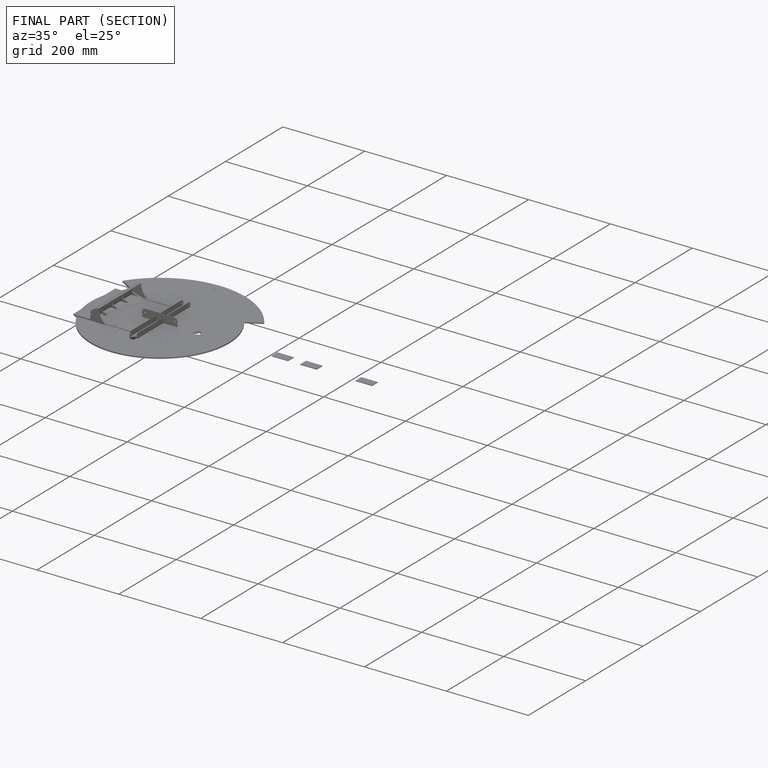
[diagram: finished part — half-section view (interior)]
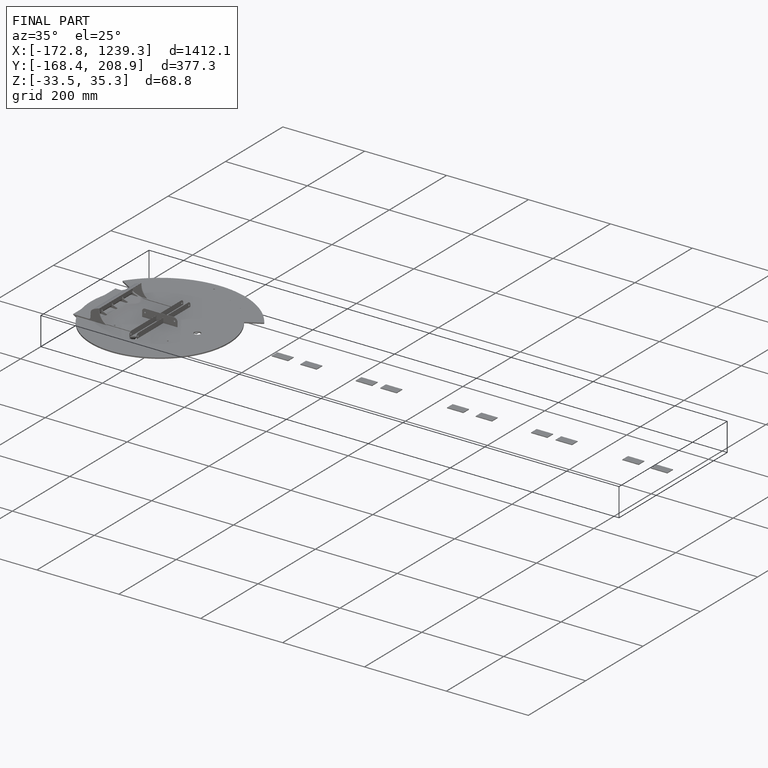
[diagram: finished part — iso view with bounding-box wireframe]
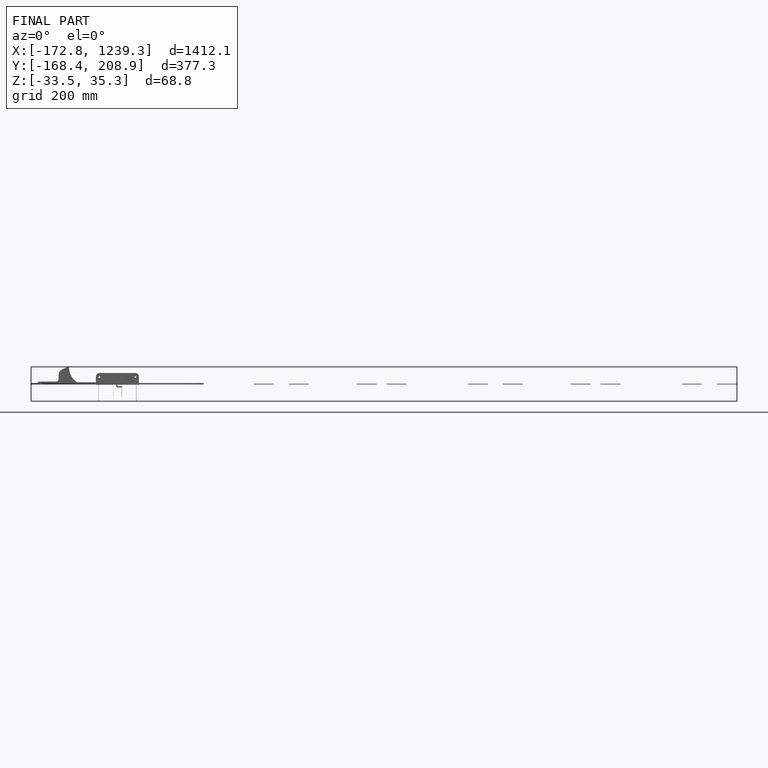
[diagram: finished part — front view with bounding-box wireframe]
